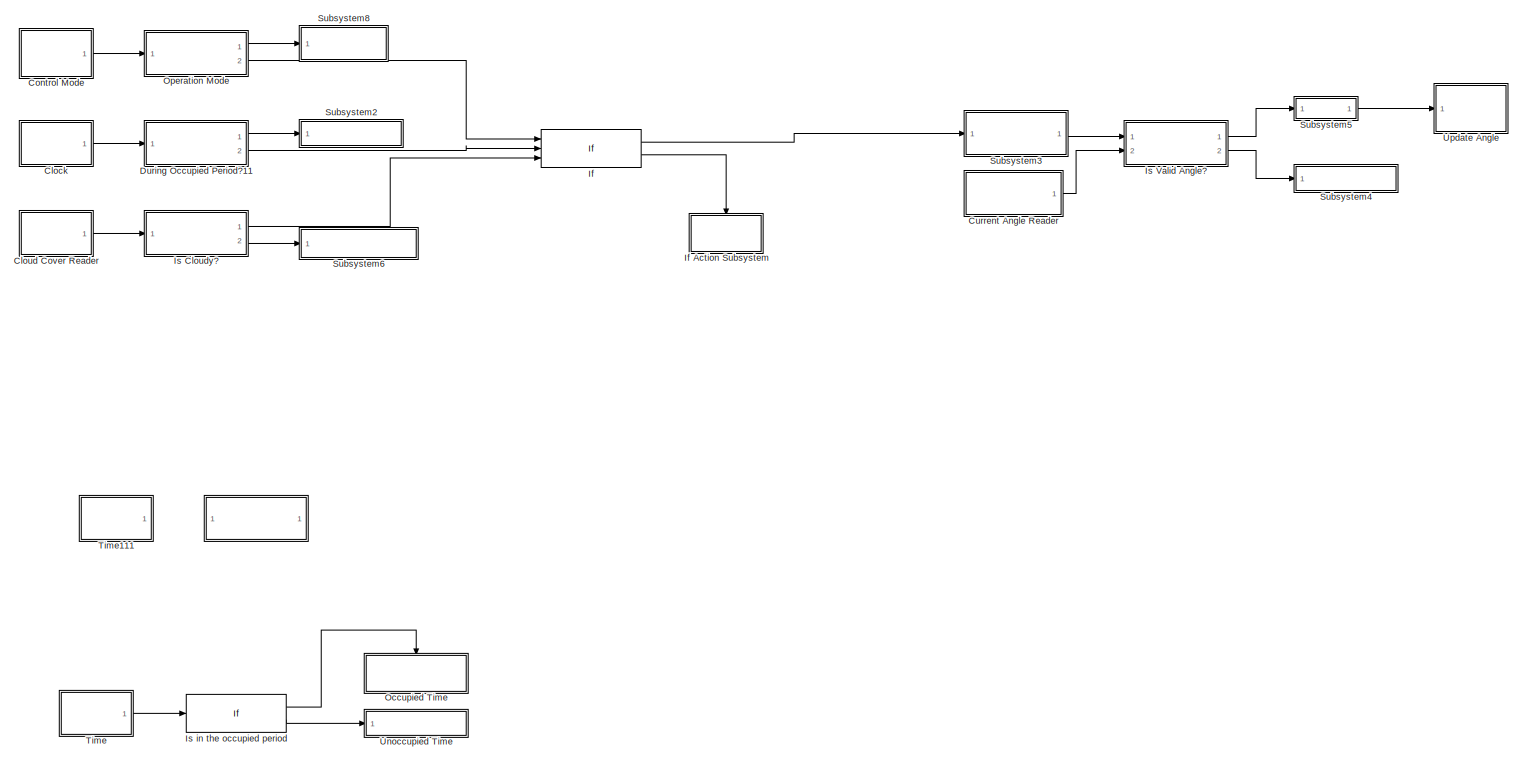
[diagram: root canvas - part 1/1, most of the canvas]
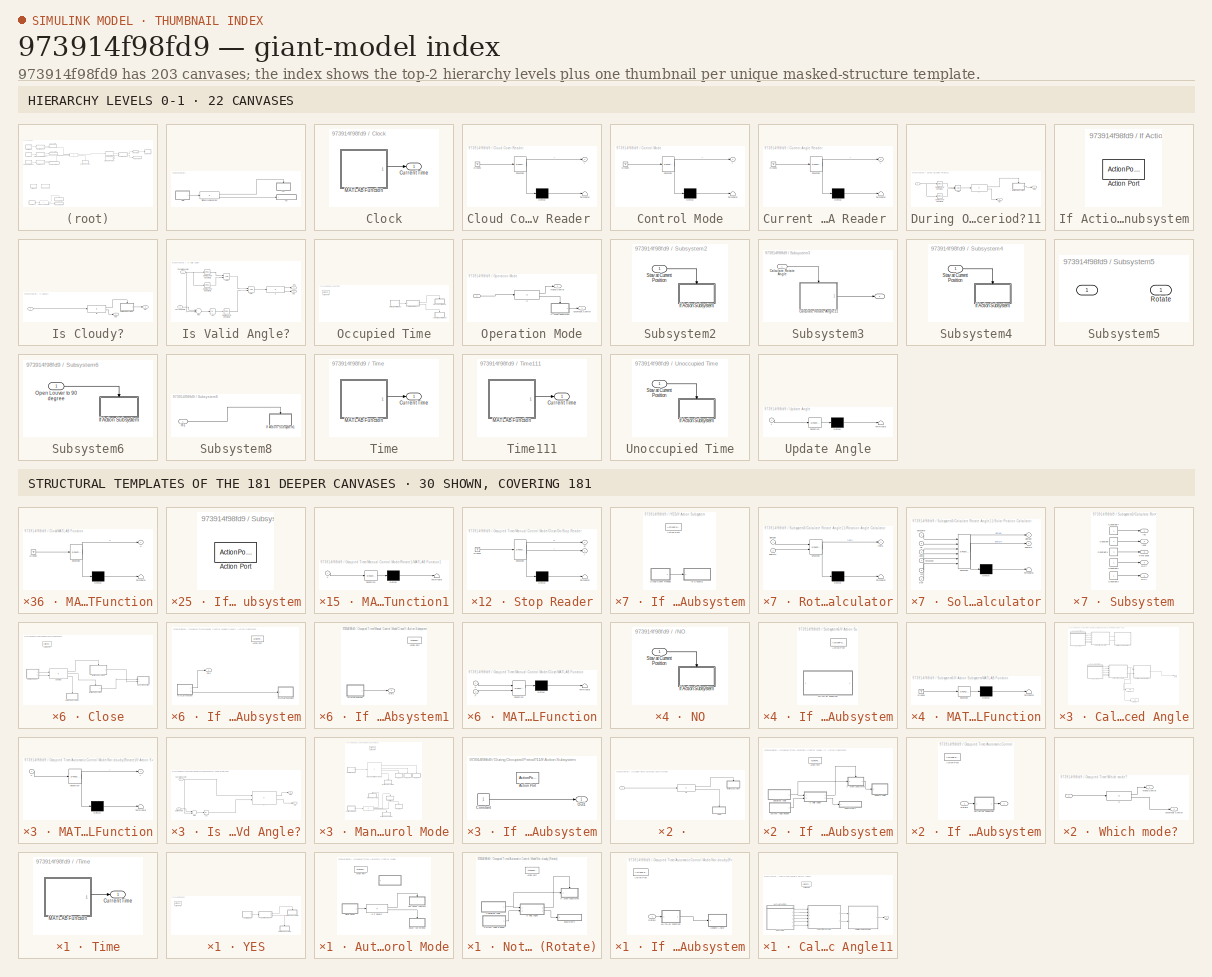
[diagram: thumbnail index - top-2 hierarchy levels (22 canvases) + 30 structural-template representatives of the remaining 181 canvases]
MODEL slx_973914f98fd9
KIND model
CONFIG AbsTol = auto
CONFIG EnableMultiTasking = off
CONFIG FixedStep = 3600
CONFIG MaxStep = auto
CONFIG MinStep = auto
CONFIG RelTol = 1e-3
CONFIG SampleTimeConstraint = Unconstrained
CONFIG Solver = FixedStepAuto
CONFIG SolverName = FixedStepAuto
CONFIG StartTime = 0.0
CONFIG StopTime = inf
BLOCK [SubSystem]  
  Commented = on
  Ports = []
  RequestExecContextInheritance = off
BLOCK [If]  /If in the occupied period
  IfExpression = u1 >=  8 & u1 <= 18
  Ports = [1, 2]
BLOCK [SubSystem]  /NO
  Ports = [1]
  RequestExecContextInheritance = off
BLOCK [SubSystem]  /NO/If Action Subsystem
  Ports = [0, 0, 0, 0, 0, 0, 0, 1]
  RequestExecContextInheritance = off
  TreatAsAtomicUnit = on
BLOCK [ActionPort]  /NO/If Action Subsystem/Action Port
  ActionPortLabel = else
BLOCK [Inport]  /NO/Stay at Current Position
  IconDisplay = Port number
BLOCK [SubSystem]  /Time
  Ports = [0, 1]
  RequestExecContextInheritance = off
BLOCK [Outport]  /Time/Current Time
  IconDisplay = Port number
BLOCK [SubSystem]  /Time/MATLAB Function
  ErrorFcn = Stateflow.Translate.translate
  PermitHierarchicalResolution = ExplicitOnly
  Ports = [0, 1]
  RequestExecContextInheritance = off
  SFBlockType = MATLAB Function
  TreatAsAtomicUnit = on
BLOCK [Demux]  /Time/MATLAB Function/ Demux 
  Outputs = 1
  Ports = [1, 1]
BLOCK [Ground]  /Time/MATLAB Function/ Ground 
BLOCK [S-Function]  /Time/MATLAB Function/ SFunction 
  EnableBusSupport = on
  FunctionName = sf_sfun
  PortCounts = [1 2]
  Ports = [1, 2]
  SFcnIsStateOwnerBlock = off
  SFunctionDeploymentMode = off
  Tag = Stateflow S-Function ControlLogic_pho 55
BLOCK [Terminator]  /Time/MATLAB Function/ Terminator 
BLOCK [Outport]  /Time/MATLAB Function/H
  IconDisplay = Port number
BLOCK [SubSystem]  /YES
  Ports = [0, 0, 0, 0, 0, 0, 0, 1]
  RequestExecContextInheritance = off
  TreatAsAtomicUnit = on
BLOCK [ActionPort]  /YES/Action Port
  ActionPortLabel = if(u1 >=  8 & u1 <= 18)
BLOCK [SubSystem]  /YES/Control Mode
  ErrorFcn = Stateflow.Translate.translate
  PermitHierarchicalResolution = ExplicitOnly
  Ports = [0, 1]
  RequestExecContextInheritance = off
  SFBlockType = MATLAB Function
  TreatAsAtomicUnit = on
BLOCK [Demux]  /YES/Control Mode/ Demux 
  Outputs = 1
  Ports = [1, 1]
BLOCK [Ground]  /YES/Control Mode/ Ground 
BLOCK [S-Function]  /YES/Control Mode/ SFunction 
  EnableBusSupport = on
  FunctionName = sf_sfun
  PortCounts = [1 2]
  Ports = [1, 2]
  SFcnIsStateOwnerBlock = off
  SFunctionDeploymentMode = off
  Tag = Stateflow S-Function ControlLogic_pho 12
BLOCK [Terminator]  /YES/Control Mode/ Terminator 
BLOCK [Outport]  /YES/Control Mode/y
  IconDisplay = Port number
BLOCK [SubSystem]  /YES/If Action Subsystem
  Ports = [0, 0, 0, 0, 0, 0, 0, 1]
  RequestExecContextInheritance = off
  TreatAsAtomicUnit = on
BLOCK [ActionPort]  /YES/If Action Subsystem/Action Port
  ActionPortLabel = else
BLOCK [SubSystem]  /YES/If Action Subsystem/Cloud Cover Reader 
  ErrorFcn = Stateflow.Translate.translate
  PermitHierarchicalResolution = ExplicitOnly
  Ports = [0, 1]
  RequestExecContextInheritance = off
  SFBlockType = MATLAB Function
  TreatAsAtomicUnit = on
BLOCK [Demux]  /YES/If Action Subsystem/Cloud Cover Reader / Demux 
  Outputs = 1
  Ports = [1, 1]
BLOCK [Ground]  /YES/If Action Subsystem/Cloud Cover Reader / Ground 
BLOCK [S-Function]  /YES/If Action Subsystem/Cloud Cover Reader / SFunction 
  EnableBusSupport = on
  FunctionName = sf_sfun
  PortCounts = [1 2]
  Ports = [1, 2]
  SFcnIsStateOwnerBlock = off
  SFunctionDeploymentMode = off
  Tag = Stateflow S-Function ControlLogic_pho 27
BLOCK [Terminator]  /YES/If Action Subsystem/Cloud Cover Reader / Terminator 
BLOCK [Outport]  /YES/If Action Subsystem/Cloud Cover Reader /y
  IconDisplay = Port number
BLOCK [SubSystem]  /YES/If Action Subsystem/Is Cloudy?1
  Ports = [1]
  RequestExecContextInheritance = off
BLOCK [Inport]  /YES/If Action Subsystem/Is Cloudy?1/ 
  IconDisplay = Port number
BLOCK [SubSystem]  /YES/If Action Subsystem/Is Cloudy?1/If Action Subsystem
  Ports = [0, 0, 0, 0, 0, 0, 0, 1]
  RequestExecContextInheritance = off
  TreatAsAtomicUnit = on
BLOCK [ActionPort]  /YES/If Action Subsystem/Is Cloudy?1/If Action Subsystem/Action Port
  ActionPortLabel = if(u1 <80)
BLOCK [SubSystem]  /YES/If Action Subsystem/Is Cloudy?1/If Action Subsystem/Calculated Angle
  Ports = [0, 1]
  RequestExecContextInheritance = off
BLOCK [Display]  /YES/If Action Subsystem/Is Cloudy?1/If Action Subsystem/Calculated Angle/Display1
  Decimation = 1
  Ports = [1]
BLOCK [Display]  /YES/If Action Subsystem/Is Cloudy?1/If Action Subsystem/Calculated Angle/Display2
  Decimation = 1
  Format = long
  Ports = [1]
BLOCK [SubSystem]  /YES/If Action Subsystem/Is Cloudy?1/If Action Subsystem/Calculated Angle/MATLAB Function1
  ErrorFcn = Stateflow.Translate.translate
  PermitHierarchicalResolution = ExplicitOnly
  Ports = [0, 1]
  RequestExecContextInheritance = off
  SFBlockType = MATLAB Function
  TreatAsAtomicUnit = on
BLOCK [Demux]  /YES/If Action Subsystem/Is Cloudy?1/If Action Subsystem/Calculated Angle/MATLAB Function1/ Demux 
  Outputs = 1
  Ports = [1, 1]
BLOCK [Ground]  /YES/If Action Subsystem/Is Cloudy?1/If Action Subsystem/Calculated Angle/MATLAB Function1/ Ground 
BLOCK [S-Function]  /YES/If Action Subsystem/Is Cloudy?1/If Action Subsystem/Calculated Angle/MATLAB Function1/ SFunction 
  EnableBusSupport = on
  FunctionName = sf_sfun
  PortCounts = [1 2]
  Ports = [1, 2]
  SFcnIsStateOwnerBlock = off
  SFunctionDeploymentMode = off
  Tag = Stateflow S-Function ControlLogic_pho 49
BLOCK [Terminator]  /YES/If Action Subsystem/Is Cloudy?1/If Action Subsystem/Calculated Angle/MATLAB Function1/ Terminator 
BLOCK [Outport]  /YES/If Action Subsystem/Is Cloudy?1/If Action Subsystem/Calculated Angle/MATLAB Function1/t
  IconDisplay = Port number
BLOCK [SubSystem]  /YES/If Action Subsystem/Is Cloudy?1/If Action Subsystem/Calculated Angle/MATLAB Function2
  Commented = on
  ErrorFcn = Stateflow.Translate.translate
  PermitHierarchicalResolution = ExplicitOnly
  Ports = [0, 1]
  RequestExecContextInheritance = off
  SFBlockType = MATLAB Function
  TreatAsAtomicUnit = on
BLOCK [Demux]  /YES/If Action Subsystem/Is Cloudy?1/If Action Subsystem/Calculated Angle/MATLAB Function2/ Demux 
  Outputs = 1
  Ports = [1, 1]
BLOCK [Ground]  /YES/If Action Subsystem/Is Cloudy?1/If Action Subsystem/Calculated Angle/MATLAB Function2/ Ground 
BLOCK [S-Function]  /YES/If Action Subsystem/Is Cloudy?1/If Action Subsystem/Calculated Angle/MATLAB Function2/ SFunction 
  EnableBusSupport = on
  FunctionName = sf_sfun
  PortCounts = [1 2]
  Ports = [1, 2]
  SFcnIsStateOwnerBlock = off
  SFunctionDeploymentMode = off
  Tag = Stateflow S-Function ControlLogic_pho 48
BLOCK [Terminator]  /YES/If Action Subsystem/Is Cloudy?1/If Action Subsystem/Calculated Angle/MATLAB Function2/ Terminator 
BLOCK [Outport]  /YES/If Action Subsystem/Is Cloudy?1/If Action Subsystem/Calculated Angle/MATLAB Function2/t
  IconDisplay = Port number
BLOCK [Outport]  /YES/If Action Subsystem/Is Cloudy?1/If Action Subsystem/Calculated Angle/Out1
  IconDisplay = Port number
BLOCK [SubSystem]  /YES/If Action Subsystem/Is Cloudy?1/If Action Subsystem/Calculated Angle/Rotation Angle Calculator
  Commented = on
  ErrorFcn = Stateflow.Translate.translate
  PermitHierarchicalResolution = ExplicitOnly
  Ports = [2, 1]
  RequestExecContextInheritance = off
  SFBlockType = MATLAB Function
  TreatAsAtomicUnit = on
BLOCK [Demux]  /YES/If Action Subsystem/Is Cloudy?1/If Action Subsystem/Calculated Angle/Rotation Angle Calculator/ Demux 
  Outputs = 1
  Ports = [1, 1]
BLOCK [S-Function]  /YES/If Action Subsystem/Is Cloudy?1/If Action Subsystem/Calculated Angle/Rotation Angle Calculator/ SFunction 
  EnableBusSupport = on
  FunctionName = sf_sfun
  PortCounts = [2 2]
  Ports = [2, 2]
  SFcnIsStateOwnerBlock = off
  SFunctionDeploymentMode = off
  Tag = Stateflow S-Function ControlLogic_pho 52
BLOCK [Terminator]  /YES/If Action Subsystem/Is Cloudy?1/If Action Subsystem/Calculated Angle/Rotation Angle Calculator/ Terminator 
BLOCK [Inport]  /YES/If Action Subsystem/Is Cloudy?1/If Action Subsystem/Calculated Angle/Rotation Angle Calculator/azimuth
  IconDisplay = Port number
  Port = 2
BLOCK [Outport]  /YES/If Action Subsystem/Is Cloudy?1/If Action Subsystem/Calculated Angle/Rotation Angle Calculator/theta
  IconDisplay = Port number
BLOCK [Inport]  /YES/If Action Subsystem/Is Cloudy?1/If Action Subsystem/Calculated Angle/Rotation Angle Calculator/zenith
  IconDisplay = Port number
BLOCK [SubSystem]  /YES/If Action Subsystem/Is Cloudy?1/If Action Subsystem/Calculated Angle/Rotation Angle Calculator1
  ErrorFcn = Stateflow.Translate.translate
  PermitHierarchicalResolution = ExplicitOnly
  Ports = [2, 1]
  RequestExecContextInheritance = off
  SFBlockType = MATLAB Function
  TreatAsAtomicUnit = on
BLOCK [Demux]  /YES/If Action Subsystem/Is Cloudy?1/If Action Subsystem/Calculated Angle/Rotation Angle Calculator1/ Demux 
  Outputs = 1
  Ports = [1, 1]
BLOCK [S-Function]  /YES/If Action Subsystem/Is Cloudy?1/If Action Subsystem/Calculated Angle/Rotation Angle Calculator1/ SFunction 
  EnableBusSupport = on
  FunctionName = sf_sfun
  PortCounts = [2 2]
  Ports = [2, 2]
  SFcnIsStateOwnerBlock = off
  SFunctionDeploymentMode = off
  Tag = Stateflow S-Function ControlLogic_pho 53
BLOCK [Terminator]  /YES/If Action Subsystem/Is Cloudy?1/If Action Subsystem/Calculated Angle/Rotation Angle Calculator1/ Terminator 
BLOCK [Inport]  /YES/If Action Subsystem/Is Cloudy?1/If Action Subsystem/Calculated Angle/Rotation Angle Calculator1/azimuth
  IconDisplay = Port number
  Port = 2
BLOCK [Outport]  /YES/If Action Subsystem/Is Cloudy?1/If Action Subsystem/Calculated Angle/Rotation Angle Calculator1/theta
  IconDisplay = Port number
BLOCK [Inport]  /YES/If Action Subsystem/Is Cloudy?1/If Action Subsystem/Calculated Angle/Rotation Angle Calculator1/zenith
  IconDisplay = Port number
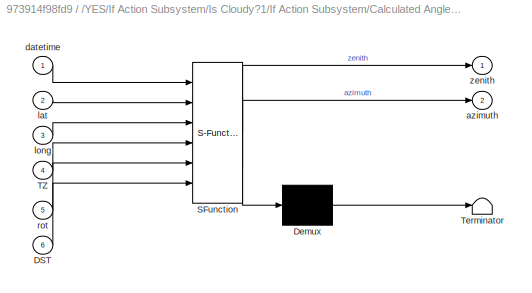
BLOCK [SubSystem]  /YES/If Action Subsystem/Is Cloudy?1/If Action Subsystem/Calculated Angle/Solar Position Calculator1
  ErrorFcn = Stateflow.Translate.translate
  PermitHierarchicalResolution = ExplicitOnly
  Ports = [6, 2]
  RequestExecContextInheritance = off
  SFBlockType = MATLAB Function
  TreatAsAtomicUnit = on
BLOCK [Demux]  /YES/If Action Subsystem/Is Cloudy?1/If Action Subsystem/Calculated Angle/Solar Position Calculator1/ Demux 
  Outputs = 1
  Ports = [1, 1]
BLOCK [S-Function]  /YES/If Action Subsystem/Is Cloudy?1/If Action Subsystem/Calculated Angle/Solar Position Calculator1/ SFunction 
  EnableBusSupport = on
  FunctionName = sf_sfun
  PortCounts = [6 3]
  Ports = [6, 3]
  SFcnIsStateOwnerBlock = off
  SFunctionDeploymentMode = off
  Tag = Stateflow S-Function ControlLogic_pho 54
BLOCK [Terminator]  /YES/If Action Subsystem/Is Cloudy?1/If Action Subsystem/Calculated Angle/Solar Position Calculator1/ Terminator 
BLOCK [Inport]  /YES/If Action Subsystem/Is Cloudy?1/If Action Subsystem/Calculated Angle/Solar Position Calculator1/DST
  IconDisplay = Port number
  Port = 6
BLOCK [Inport]  /YES/If Action Subsystem/Is Cloudy?1/If Action Subsystem/Calculated Angle/Solar Position Calculator1/TZ
  IconDisplay = Port number
  Port = 4
BLOCK [Outport]  /YES/If Action Subsystem/Is Cloudy?1/If Action Subsystem/Calculated Angle/Solar Position Calculator1/azimuth
  IconDisplay = Port number
  Port = 2
BLOCK [Inport]  /YES/If Action Subsystem/Is Cloudy?1/If Action Subsystem/Calculated Angle/Solar Position Calculator1/datetime
  IconDisplay = Port number
BLOCK [Inport]  /YES/If Action Subsystem/Is Cloudy?1/If Action Subsystem/Calculated Angle/Solar Position Calculator1/lat
  IconDisplay = Port number
  Port = 2
BLOCK [Inport]  /YES/If Action Subsystem/Is Cloudy?1/If Action Subsystem/Calculated Angle/Solar Position Calculator1/long
  IconDisplay = Port number
  Port = 3
BLOCK [Inport]  /YES/If Action Subsystem/Is Cloudy?1/If Action Subsystem/Calculated Angle/Solar Position Calculator1/rot
  IconDisplay = Port number
  Port = 5
BLOCK [Outport]  /YES/If Action Subsystem/Is Cloudy?1/If Action Subsystem/Calculated Angle/Solar Position Calculator1/zenith
  IconDisplay = Port number
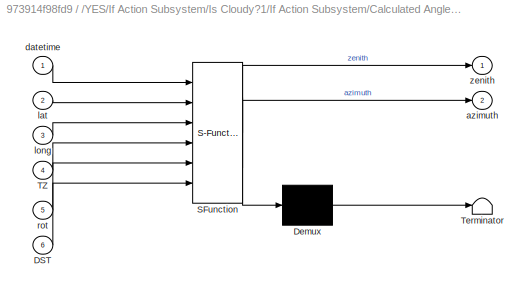
BLOCK [SubSystem]  /YES/If Action Subsystem/Is Cloudy?1/If Action Subsystem/Calculated Angle/Solar Position Calculator2
  Commented = on
  ErrorFcn = Stateflow.Translate.translate
  PermitHierarchicalResolution = ExplicitOnly
  Ports = [6, 2]
  RequestExecContextInheritance = off
  SFBlockType = MATLAB Function
  TreatAsAtomicUnit = on
BLOCK [Demux]  /YES/If Action Subsystem/Is Cloudy?1/If Action Subsystem/Calculated Angle/Solar Position Calculator2/ Demux 
  Outputs = 1
  Ports = [1, 1]
BLOCK [S-Function]  /YES/If Action Subsystem/Is Cloudy?1/If Action Subsystem/Calculated Angle/Solar Position Calculator2/ SFunction 
  EnableBusSupport = on
  FunctionName = sf_sfun
  PortCounts = [6 3]
  Ports = [6, 3]
  SFcnIsStateOwnerBlock = off
  SFunctionDeploymentMode = off
  Tag = Stateflow S-Function ControlLogic_pho 50
BLOCK [Terminator]  /YES/If Action Subsystem/Is Cloudy?1/If Action Subsystem/Calculated Angle/Solar Position Calculator2/ Terminator 
BLOCK [Inport]  /YES/If Action Subsystem/Is Cloudy?1/If Action Subsystem/Calculated Angle/Solar Position Calculator2/DST
  IconDisplay = Port number
  Port = 6
BLOCK [Inport]  /YES/If Action Subsystem/Is Cloudy?1/If Action Subsystem/Calculated Angle/Solar Position Calculator2/TZ
  IconDisplay = Port number
  Port = 4
BLOCK [Outport]  /YES/If Action Subsystem/Is Cloudy?1/If Action Subsystem/Calculated Angle/Solar Position Calculator2/azimuth
  IconDisplay = Port number
  Port = 2
BLOCK [Inport]  /YES/If Action Subsystem/Is Cloudy?1/If Action Subsystem/Calculated Angle/Solar Position Calculator2/datetime
  IconDisplay = Port number
BLOCK [Inport]  /YES/If Action Subsystem/Is Cloudy?1/If Action Subsystem/Calculated Angle/Solar Position Calculator2/lat
  IconDisplay = Port number
  Port = 2
BLOCK [Inport]  /YES/If Action Subsystem/Is Cloudy?1/If Action Subsystem/Calculated Angle/Solar Position Calculator2/long
  IconDisplay = Port number
  Port = 3
BLOCK [Inport]  /YES/If Action Subsystem/Is Cloudy?1/If Action Subsystem/Calculated Angle/Solar Position Calculator2/rot
  IconDisplay = Port number
  Port = 5
BLOCK [Outport]  /YES/If Action Subsystem/Is Cloudy?1/If Action Subsystem/Calculated Angle/Solar Position Calculator2/zenith
  IconDisplay = Port number
BLOCK [SubSystem]  /YES/If Action Subsystem/Is Cloudy?1/If Action Subsystem/Calculated Angle/Subsystem1
  Commented = on
  Ports = [0, 5]
  RequestExecContextInheritance = off
BLOCK [Constant]  /YES/If Action Subsystem/Is Cloudy?1/If Action Subsystem/Calculated Angle/Subsystem1/Constant
  Value = -79.9439
BLOCK [Constant]  /YES/If Action Subsystem/Is Cloudy?1/If Action Subsystem/Calculated Angle/Subsystem1/Constant1
  Value = -4
BLOCK [Constant]  /YES/If Action Subsystem/Is Cloudy?1/If Action Subsystem/Calculated Angle/Subsystem1/Constant2
  Value = 0
BLOCK [Constant]  /YES/If Action Subsystem/Is Cloudy?1/If Action Subsystem/Calculated Angle/Subsystem1/Constant3
BLOCK [Constant]  /YES/If Action Subsystem/Is Cloudy?1/If Action Subsystem/Calculated Angle/Subsystem1/Constant4
  Value = 40.4428
BLOCK [Outport]  /YES/If Action Subsystem/Is Cloudy?1/If Action Subsystem/Calculated Angle/Subsystem1/DST
  IconDisplay = Port number
  Port = 5
BLOCK [Outport]  /YES/If Action Subsystem/Is Cloudy?1/If Action Subsystem/Calculated Angle/Subsystem1/ROT
  IconDisplay = Port number
  Port = 4
BLOCK [Outport]  /YES/If Action Subsystem/Is Cloudy?1/If Action Subsystem/Calculated Angle/Subsystem1/lat
  IconDisplay = Port number
BLOCK [Outport]  /YES/If Action Subsystem/Is Cloudy?1/If Action Subsystem/Calculated Angle/Subsystem1/long
  IconDisplay = Port number
  Port = 2
BLOCK [Outport]  /YES/If Action Subsystem/Is Cloudy?1/If Action Subsystem/Calculated Angle/Subsystem1/time zone
  IconDisplay = Port number
  Port = 3
BLOCK [SubSystem]  /YES/If Action Subsystem/Is Cloudy?1/If Action Subsystem/Calculated Angle/Subsystem2
  Ports = [0, 5]
  RequestExecContextInheritance = off
BLOCK [Constant]  /YES/If Action Subsystem/Is Cloudy?1/If Action Subsystem/Calculated Angle/Subsystem2/Constant
  Value = -79.9439
BLOCK [Constant]  /YES/If Action Subsystem/Is Cloudy?1/If Action Subsystem/Calculated Angle/Subsystem2/Constant1
  Value = -4
BLOCK [Constant]  /YES/If Action Subsystem/Is Cloudy?1/If Action Subsystem/Calculated Angle/Subsystem2/Constant2
  Value = 0
BLOCK [Constant]  /YES/If Action Subsystem/Is Cloudy?1/If Action Subsystem/Calculated Angle/Subsystem2/Constant3
BLOCK [Constant]  /YES/If Action Subsystem/Is Cloudy?1/If Action Subsystem/Calculated Angle/Subsystem2/Constant4
  Value = 40.4428
BLOCK [Outport]  /YES/If Action Subsystem/Is Cloudy?1/If Action Subsystem/Calculated Angle/Subsystem2/DST
  IconDisplay = Port number
  Port = 5
BLOCK [Outport]  /YES/If Action Subsystem/Is Cloudy?1/If Action Subsystem/Calculated Angle/Subsystem2/ROT
  IconDisplay = Port number
  Port = 4
BLOCK [Outport]  /YES/If Action Subsystem/Is Cloudy?1/If Action Subsystem/Calculated Angle/Subsystem2/lat
  IconDisplay = Port number
BLOCK [Outport]  /YES/If Action Subsystem/Is Cloudy?1/If Action Subsystem/Calculated Angle/Subsystem2/long
  IconDisplay = Port number
  Port = 2
BLOCK [Outport]  /YES/If Action Subsystem/Is Cloudy?1/If Action Subsystem/Calculated Angle/Subsystem2/time zone
  IconDisplay = Port number
  Port = 3
BLOCK [SubSystem]  /YES/If Action Subsystem/Is Cloudy?1/If Action Subsystem/Current Angle Reader 
  ErrorFcn = Stateflow.Translate.translate
  PermitHierarchicalResolution = ExplicitOnly
  Ports = [0, 1]
  RequestExecContextInheritance = off
  SFBlockType = MATLAB Function
  TreatAsAtomicUnit = on
BLOCK [Demux]  /YES/If Action Subsystem/Is Cloudy?1/If Action Subsystem/Current Angle Reader / Demux 
  Outputs = 1
  Ports = [1, 1]
BLOCK [Ground]  /YES/If Action Subsystem/Is Cloudy?1/If Action Subsystem/Current Angle Reader / Ground 
BLOCK [S-Function]  /YES/If Action Subsystem/Is Cloudy?1/If Action Subsystem/Current Angle Reader / SFunction 
  EnableBusSupport = on
  FunctionName = sf_sfun
  PortCounts = [1 2]
  Ports = [1, 2]
  SFcnIsStateOwnerBlock = off
  SFunctionDeploymentMode = off
  Tag = Stateflow S-Function ControlLogic_pho 47
BLOCK [Terminator]  /YES/If Action Subsystem/Is Cloudy?1/If Action Subsystem/Current Angle Reader / Terminator 
BLOCK [Outport]  /YES/If Action Subsystem/Is Cloudy?1/If Action Subsystem/Current Angle Reader /y
  IconDisplay = Port number
BLOCK [SubSystem]  /YES/If Action Subsystem/Is Cloudy?1/If Action Subsystem/If Action Subsystem
  Ports = [1, 1, 0, 0, 0, 0, 0, 1]
  RequestExecContextInheritance = off
  TreatAsAtomicUnit = on
BLOCK [Outport]  /YES/If Action Subsystem/Is Cloudy?1/If Action Subsystem/If Action Subsystem/  
  IconDisplay = Port number
BLOCK [ActionPort]  /YES/If Action Subsystem/Is Cloudy?1/If Action Subsystem/If Action Subsystem/Action Port
  ActionPortLabel = if(u1 < 90 & u1 > 0 & u2 >= 10)
BLOCK [SubSystem]  /YES/If Action Subsystem/Is Cloudy?1/If Action Subsystem/If Action Subsystem/MATLAB Function
  ErrorFcn = Stateflow.Translate.translate
  PermitHierarchicalResolution = ExplicitOnly
  Ports = [1, 1]
  RequestExecContextInheritance = off
  SFBlockType = MATLAB Function
  TreatAsAtomicUnit = on
BLOCK [Demux]  /YES/If Action Subsystem/Is Cloudy?1/If Action Subsystem/If Action Subsystem/MATLAB Function/ Demux 
  Outputs = 1
  Ports = [1, 1]
BLOCK [S-Function]  /YES/If Action Subsystem/Is Cloudy?1/If Action Subsystem/If Action Subsystem/MATLAB Function/ SFunction 
  EnableBusSupport = on
  FunctionName = sf_sfun
  PortCounts = [1 2]
  Ports = [1, 2]
  SFcnIsStateOwnerBlock = off
  SFunctionDeploymentMode = off
  Tag = Stateflow S-Function ControlLogic_pho 14
BLOCK [Terminator]  /YES/If Action Subsystem/Is Cloudy?1/If Action Subsystem/If Action Subsystem/MATLAB Function/ Terminator 
BLOCK [Inport]  /YES/If Action Subsystem/Is Cloudy?1/If Action Subsystem/If Action Subsystem/MATLAB Function/u
  IconDisplay = Port number
BLOCK [Outport]  /YES/If Action Subsystem/Is Cloudy?1/If Action Subsystem/If Action Subsystem/MATLAB Function/y
  IconDisplay = Port number
BLOCK [Inport]  /YES/If Action Subsystem/Is Cloudy?1/If Action Subsystem/If Action Subsystem/Rotate
  IconDisplay = Port number
BLOCK [SubSystem]  /YES/If Action Subsystem/Is Cloudy?1/If Action Subsystem/Is Valid Angle?
  Ports = [2, 2]
  RequestExecContextInheritance = off
BLOCK [Abs]  /YES/If Action Subsystem/Is Cloudy?1/If Action Subsystem/Is Valid Angle?/Abs
  SaturateOnIntegerOverflow = off
BLOCK [Inport]  /YES/If Action Subsystem/Is Cloudy?1/If Action Subsystem/Is Valid Angle?/Caculated Angle
  IconDisplay = Port number
BLOCK [Inport]  /YES/If Action Subsystem/Is Cloudy?1/If Action Subsystem/Is Valid Angle?/Current Angle
  IconDisplay = Port number
  Port = 2
BLOCK [If]  /YES/If Action Subsystem/Is Cloudy?1/If Action Subsystem/Is Valid Angle?/If
  IfExpression = u1 < 90 & u1 > 0 & u2 >= 10
  NumInputs = 2
  Ports = [2, 2]
BLOCK [Outport]  /YES/If Action Subsystem/Is Cloudy?1/If Action Subsystem/Is Valid Angle?/NO 
  IconDisplay = Port number
  Port = 2
BLOCK [Sum]  /YES/If Action Subsystem/Is Cloudy?1/If Action Subsystem/Is Valid Angle?/Plus
  InputSameDT = off
  Inputs = +-
  OutDataTypeStr = Inherit: Inherit via internal rule
  Ports = [2, 1]
  SaturateOnIntegerOverflow = off
BLOCK [Outport]  /YES/If Action Subsystem/Is Cloudy?1/If Action Subsystem/Is Valid Angle?/YES
  IconDisplay = Port number
BLOCK [SubSystem]  /YES/If Action Subsystem/Is Cloudy?1/If Action Subsystem/Subsystem4
  Ports = [1]
  RequestExecContextInheritance = off
BLOCK [SubSystem]  /YES/If Action Subsystem/Is Cloudy?1/If Action Subsystem/Subsystem4/If Action Subsystem
  Ports = [0, 0, 0, 0, 0, 0, 0, 1]
  RequestExecContextInheritance = off
  TreatAsAtomicUnit = on
BLOCK [ActionPort]  /YES/If Action Subsystem/Is Cloudy?1/If Action Subsystem/Subsystem4/If Action Subsystem/Action Port
  ActionPortLabel = else
BLOCK [Inport]  /YES/If Action Subsystem/Is Cloudy?1/If Action Subsystem/Subsystem4/Stay at Current Position
  IconDisplay = Port number
BLOCK [SubSystem]  /YES/If Action Subsystem/Is Cloudy?1/If Action Subsystem/Update Angle
  ErrorFcn = Stateflow.Translate.translate
  PermitHierarchicalResolution = ExplicitOnly
  Ports = [1]
  RequestExecContextInheritance = off
  SFBlockType = MATLAB Function
  TreatAsAtomicUnit = on
BLOCK [Demux]  /YES/If Action Subsystem/Is Cloudy?1/If Action Subsystem/Update Angle/ Demux 
  Outputs = 1
  Ports = [1, 1]
BLOCK [S-Function]  /YES/If Action Subsystem/Is Cloudy?1/If Action Subsystem/Update Angle/ SFunction 
  EnableBusSupport = on
  FunctionName = sf_sfun
  PortCounts = [1 1]
  Ports = [1, 1]
  SFcnIsStateOwnerBlock = off
  SFunctionDeploymentMode = off
  Tag = Stateflow S-Function ControlLogic_pho 51
BLOCK [Terminator]  /YES/If Action Subsystem/Is Cloudy?1/If Action Subsystem/Update Angle/ Terminator 
BLOCK [Inport]  /YES/If Action Subsystem/Is Cloudy?1/If Action Subsystem/Update Angle/x
  IconDisplay = Port number
BLOCK [If]  /YES/If Action Subsystem/Is Cloudy?1/If1
  IfExpression = u1 <80
  Ports = [1, 2]
BLOCK [SubSystem]  /YES/If Action Subsystem/Is Cloudy?1/To 90
  Ports = [0, 0, 0, 0, 0, 0, 0, 1]
  RequestExecContextInheritance = off
  TreatAsAtomicUnit = on
BLOCK [ActionPort]  /YES/If Action Subsystem/Is Cloudy?1/To 90/Action Port
  ActionPortLabel = else
BLOCK [SubSystem]  /YES/If Action Subsystem/Is Cloudy?1/To 90/MATLAB Function
  ErrorFcn = Stateflow.Translate.translate
  PermitHierarchicalResolution = ExplicitOnly
  Ports = []
  RequestExecContextInheritance = off
  SFBlockType = MATLAB Function
  TreatAsAtomicUnit = on
BLOCK [Demux]  /YES/If Action Subsystem/Is Cloudy?1/To 90/MATLAB Function/ Demux 
  Outputs = 1
  Ports = [1, 1]
BLOCK [Ground]  /YES/If Action Subsystem/Is Cloudy?1/To 90/MATLAB Function/ Ground 
BLOCK [S-Function]  /YES/If Action Subsystem/Is Cloudy?1/To 90/MATLAB Function/ SFunction 
  EnableBusSupport = on
  FunctionName = sf_sfun
  PortCounts = [1 1]
  Ports = [1, 1]
  SFcnIsStateOwnerBlock = off
  SFunctionDeploymentMode = off
  Tag = Stateflow S-Function ControlLogic_pho 28
BLOCK [Terminator]  /YES/If Action Subsystem/Is Cloudy?1/To 90/MATLAB Function/ Terminator 
BLOCK [SubSystem]  /YES/If Action Subsystem1
  Ports = [0, 0, 0, 0, 0, 0, 0, 1]
  RequestExecContextInheritance = off
  TreatAsAtomicUnit = on
BLOCK [ActionPort]  /YES/If Action Subsystem1/Action Port
  ActionPortLabel = if(u1 > 0)
BLOCK [SubSystem]  /YES/If Action Subsystem1/Close
  Ports = [0, 0, 0, 0, 0, 0, 0, 1]
  RequestExecContextInheritance = off
  TreatAsAtomicUnit = on
BLOCK [ActionPort]  /YES/If Action Subsystem1/Close/Action Port
  ActionPortLabel = elseif( u1 == 2)
BLOCK [If]  /YES/If Action Subsystem1/Close/Do or Stop
  ElseIfExpressions = u1 ==1 & u2 == 0
  IfExpression = u1 == 0 & u2 == 1
  NumInputs = 2
  Ports = [2, 3]
BLOCK [SubSystem]  /YES/If Action Subsystem1/Close/Do//Stop Reader
  ErrorFcn = Stateflow.Translate.translate
  PermitHierarchicalResolution = ExplicitOnly
  Ports = [0, 2]
  RequestExecContextInheritance = off
  SFBlockType = MATLAB Function
  TreatAsAtomicUnit = on
BLOCK [Demux]  /YES/If Action Subsystem1/Close/Do//Stop Reader/ Demux 
  Outputs = 1
  Ports = [1, 1]
BLOCK [Ground]  /YES/If Action Subsystem1/Close/Do//Stop Reader/ Ground 
BLOCK [S-Function]  /YES/If Action Subsystem1/Close/Do//Stop Reader/ SFunction 
  EnableBusSupport = on
  FunctionName = sf_sfun
  PortCounts = [1 3]
  Ports = [1, 3]
  SFcnIsStateOwnerBlock = off
  SFunctionDeploymentMode = off
  Tag = Stateflow S-Function ControlLogic_pho 16
BLOCK [Terminator]  /YES/If Action Subsystem1/Close/Do//Stop Reader/ Terminator 
BLOCK [Outport]  /YES/If Action Subsystem1/Close/Do//Stop Reader/st
  IconDisplay = Port number
BLOCK [Outport]  /YES/If Action Subsystem1/Close/Do//Stop Reader/y
  IconDisplay = Port number
  Port = 2
BLOCK [SubSystem]  /YES/If Action Subsystem1/Close/If Action Subsystem
  Ports = [0, 1, 0, 0, 0, 0, 0, 1]
  RequestExecContextInheritance = off
  TreatAsAtomicUnit = on
BLOCK [ActionPort]  /YES/If Action Subsystem1/Close/If Action Subsystem/Action Port
  ActionPortLabel = elseif(u1 ==1 & u2 == 0)
BLOCK [SubSystem]  /YES/If Action Subsystem1/Close/If Action Subsystem/MATLAB Function
  ErrorFcn = Stateflow.Translate.translate
  PermitHierarchicalResolution = ExplicitOnly
  Ports = [0, 2]
  RequestExecContextInheritance = off
  SFBlockType = MATLAB Function
  TreatAsAtomicUnit = on
BLOCK [Demux]  /YES/If Action Subsystem1/Close/If Action Subsystem/MATLAB Function/ Demux 
  Outputs = 1
  Ports = [1, 1]
BLOCK [Ground]  /YES/If Action Subsystem1/Close/If Action Subsystem/MATLAB Function/ Ground 
BLOCK [S-Function]  /YES/If Action Subsystem1/Close/If Action Subsystem/MATLAB Function/ SFunction 
  EnableBusSupport = on
  FunctionName = sf_sfun
  PortCounts = [1 3]
  Ports = [1, 3]
  SFcnIsStateOwnerBlock = off
  SFunctionDeploymentMode = off
  Tag = Stateflow S-Function ControlLogic_pho 17
BLOCK [Terminator]  /YES/If Action Subsystem1/Close/If Action Subsystem/MATLAB Function/ Terminator 
BLOCK [Outport]  /YES/If Action Subsystem1/Close/If Action Subsystem/MATLAB Function/x
  IconDisplay = Port number
BLOCK [Outport]  /YES/If Action Subsystem1/Close/If Action Subsystem/MATLAB Function/y
  IconDisplay = Port number
  Port = 2
BLOCK [SubSystem]  /YES/If Action Subsystem1/Close/If Action Subsystem/MATLAB Function1
  ErrorFcn = Stateflow.Translate.translate
  PermitHierarchicalResolution = ExplicitOnly
  Ports = [1]
  RequestExecContextInheritance = off
  SFBlockType = MATLAB Function
  TreatAsAtomicUnit = on
BLOCK [Demux]  /YES/If Action Subsystem1/Close/If Action Subsystem/MATLAB Function1/ Demux 
  Outputs = 1
  Ports = [1, 1]
BLOCK [S-Function]  /YES/If Action Subsystem1/Close/If Action Subsystem/MATLAB Function1/ SFunction 
  EnableBusSupport = on
  FunctionName = sf_sfun
  PortCounts = [1 1]
  Ports = [1, 1]
  SFcnIsStateOwnerBlock = off
  SFunctionDeploymentMode = off
  Tag = Stateflow S-Function ControlLogic_pho 18
BLOCK [Terminator]  /YES/If Action Subsystem1/Close/If Action Subsystem/MATLAB Function1/ Terminator 
BLOCK [Inport]  /YES/If Action Subsystem1/Close/If Action Subsystem/MATLAB Function1/u
  IconDisplay = Port number
BLOCK [Outport]  /YES/If Action Subsystem1/Close/If Action Subsystem/Out1
  IconDisplay = Port number
BLOCK [SubSystem]  /YES/If Action Subsystem1/Close/If Action Subsystem1
  Ports = [0, 1, 0, 0, 0, 0, 0, 1]
  RequestExecContextInheritance = off
  TreatAsAtomicUnit = on
BLOCK [ActionPort]  /YES/If Action Subsystem1/Close/If Action Subsystem1/Action Port
  ActionPortLabel = if(u1 == 0 & u2 == 1)
BLOCK [SubSystem]  /YES/If Action Subsystem1/Close/If Action Subsystem1/MATLAB Function
  ErrorFcn = Stateflow.Translate.translate
  PermitHierarchicalResolution = ExplicitOnly
  Ports = [0, 1]
  RequestExecContextInheritance = off
  SFBlockType = MATLAB Function
  TreatAsAtomicUnit = on
BLOCK [Demux]  /YES/If Action Subsystem1/Close/If Action Subsystem1/MATLAB Function/ Demux 
  Outputs = 1
  Ports = [1, 1]
BLOCK [Ground]  /YES/If Action Subsystem1/Close/If Action Subsystem1/MATLAB Function/ Ground 
BLOCK [S-Function]  /YES/If Action Subsystem1/Close/If Action Subsystem1/MATLAB Function/ SFunction 
  EnableBusSupport = on
  FunctionName = sf_sfun
  PortCounts = [1 2]
  Ports = [1, 2]
  SFcnIsStateOwnerBlock = off
  SFunctionDeploymentMode = off
  Tag = Stateflow S-Function ControlLogic_pho 19
BLOCK [Terminator]  /YES/If Action Subsystem1/Close/If Action Subsystem1/MATLAB Function/ Terminator 
BLOCK [Outport]  /YES/If Action Subsystem1/Close/If Action Subsystem1/MATLAB Function/y
  IconDisplay = Port number
BLOCK [Outport]  /YES/If Action Subsystem1/Close/If Action Subsystem1/Out1
  IconDisplay = Port number
BLOCK [SubSystem]  /YES/If Action Subsystem1/Close/If Action Subsystem2
  Ports = [0, 0, 0, 0, 0, 0, 0, 1]
  RequestExecContextInheritance = off
  TreatAsAtomicUnit = on
BLOCK [ActionPort]  /YES/If Action Subsystem1/Close/If Action Subsystem2/Action Port
  ActionPortLabel = else
BLOCK [SubSystem]  /YES/If Action Subsystem1/Close/MATLAB Function
  ErrorFcn = Stateflow.Translate.translate
  PermitHierarchicalResolution = ExplicitOnly
  Ports = [2]
  RequestExecContextInheritance = off
  SFBlockType = MATLAB Function
  TreatAsAtomicUnit = on
BLOCK [Demux]  /YES/If Action Subsystem1/Close/MATLAB Function/ Demux 
  Outputs = 1
  Ports = [1, 1]
BLOCK [S-Function]  /YES/If Action Subsystem1/Close/MATLAB Function/ SFunction 
  EnableBusSupport = on
  FunctionName = sf_sfun
  PortCounts = [2 1]
  Ports = [2, 1]
  SFcnIsStateOwnerBlock = off
  SFunctionDeploymentMode = off
  Tag = Stateflow S-Function ControlLogic_pho 20
BLOCK [Terminator]  /YES/If Action Subsystem1/Close/MATLAB Function/ Terminator 
BLOCK [Inport]  /YES/If Action Subsystem1/Close/MATLAB Function/u
  IconDisplay = Port number
BLOCK [Inport]  /YES/If Action Subsystem1/Close/MATLAB Function/v
  IconDisplay = Port number
  Port = 2
BLOCK [SubSystem]  /YES/If Action Subsystem1/Default//Open//Close
  ErrorFcn = Stateflow.Translate.translate
  PermitHierarchicalResolution = ExplicitOnly
  Ports = [0, 1]
  RequestExecContextInheritance = off
  SFBlockType = MATLAB Function
  TreatAsAtomicUnit = on
BLOCK [Demux]  /YES/If Action Subsystem1/Default//Open//Close/ Demux 
  Outputs = 1
  Ports = [1, 1]
BLOCK [Ground]  /YES/If Action Subsystem1/Default//Open//Close/ Ground 
BLOCK [S-Function]  /YES/If Action Subsystem1/Default//Open//Close/ SFunction 
  EnableBusSupport = on
  FunctionName = sf_sfun
  PortCounts = [1 2]
  Ports = [1, 2]
  SFcnIsStateOwnerBlock = off
  SFunctionDeploymentMode = off
  Tag = Stateflow S-Function ControlLogic_pho 21
BLOCK [Terminator]  /YES/If Action Subsystem1/Default//Open//Close/ Terminator 
BLOCK [Outport]  /YES/If Action Subsystem1/Default//Open//Close/y
  IconDisplay = Port number
BLOCK [If]  /YES/If Action Subsystem1/If
  Commented = on
  ElseIfExpressions = u1 == 1, u1 == 2
  IfExpression = u1 == 0
  Ports = [1, 4]
BLOCK [SubSystem]  /YES/If Action Subsystem1/If Action Subsystem
  Commented = on
  Ports = [0, 0, 0, 0, 0, 0, 0, 1]
  RequestExecContextInheritance = off
  TreatAsAtomicUnit = on
BLOCK [ActionPort]  /YES/If Action Subsystem1/If Action Subsystem/Action Port
BLOCK [SubSystem]  /YES/If Action Subsystem1/If Action Subsystem1
  Commented = on
  Ports = [0, 0, 0, 0, 0, 0, 0, 1]
  RequestExecContextInheritance = off
  TreatAsAtomicUnit = on
BLOCK [ActionPort]  /YES/If Action Subsystem1/If Action Subsystem1/Action Port
BLOCK [SubSystem]  /YES/If Action Subsystem1/If Action Subsystem2
  Ports = [0, 0, 0, 0, 0, 0, 0, 1]
  RequestExecContextInheritance = off
  TreatAsAtomicUnit = on
BLOCK [ActionPort]  /YES/If Action Subsystem1/If Action Subsystem2/Action Port
  ActionPortLabel = if(u1 == 0)
BLOCK [SubSystem]  /YES/If Action Subsystem1/If Action Subsystem3
  Ports = [0, 0, 0, 0, 0, 0, 0, 1]
  RequestExecContextInheritance = off
  TreatAsAtomicUnit = on
BLOCK [ActionPort]  /YES/If Action Subsystem1/If Action Subsystem3/Action Port
  ActionPortLabel = else
BLOCK [If]  /YES/If Action Subsystem1/If1
  ElseIfExpressions = u1 == 1, u1 == 2
  IfExpression = u1 == 0
  Ports = [1, 4]
BLOCK [SubSystem]  /YES/If Action Subsystem1/Open
  Ports = [0, 0, 0, 0, 0, 0, 0, 1]
  RequestExecContextInheritance = off
  TreatAsAtomicUnit = on
BLOCK [ActionPort]  /YES/If Action Subsystem1/Open/Action Port
  ActionPortLabel = elseif(u1 == 1)
BLOCK [If]  /YES/If Action Subsystem1/Open/Do or Stop1
  ElseIfExpressions = u1 ==1 & u2 == 0
  IfExpression = u1 == 0 & u2 == 1
  NumInputs = 2
  Ports = [2, 3]
BLOCK [SubSystem]  /YES/If Action Subsystem1/Open/Do//Stop Reader1
  ErrorFcn = Stateflow.Translate.translate
  PermitHierarchicalResolution = ExplicitOnly
  Ports = [0, 2]
  RequestExecContextInheritance = off
  SFBlockType = MATLAB Function
  TreatAsAtomicUnit = on
BLOCK [Demux]  /YES/If Action Subsystem1/Open/Do//Stop Reader1/ Demux 
  Outputs = 1
  Ports = [1, 1]
BLOCK [Ground]  /YES/If Action Subsystem1/Open/Do//Stop Reader1/ Ground 
BLOCK [S-Function]  /YES/If Action Subsystem1/Open/Do//Stop Reader1/ SFunction 
  EnableBusSupport = on
  FunctionName = sf_sfun
  PortCounts = [1 3]
  Ports = [1, 3]
  SFcnIsStateOwnerBlock = off
  SFunctionDeploymentMode = off
  Tag = Stateflow S-Function ControlLogic_pho 22
BLOCK [Terminator]  /YES/If Action Subsystem1/Open/Do//Stop Reader1/ Terminator 
BLOCK [Outport]  /YES/If Action Subsystem1/Open/Do//Stop Reader1/st
  IconDisplay = Port number
BLOCK [Outport]  /YES/If Action Subsystem1/Open/Do//Stop Reader1/y
  IconDisplay = Port number
  Port = 2
BLOCK [SubSystem]  /YES/If Action Subsystem1/Open/If Action Subsystem
  Ports = [0, 1, 0, 0, 0, 0, 0, 1]
  RequestExecContextInheritance = off
  TreatAsAtomicUnit = on
BLOCK [ActionPort]  /YES/If Action Subsystem1/Open/If Action Subsystem/Action Port
  ActionPortLabel = elseif(u1 ==1 & u2 == 0)
BLOCK [SubSystem]  /YES/If Action Subsystem1/Open/If Action Subsystem/MATLAB Function
  ErrorFcn = Stateflow.Translate.translate
  PermitHierarchicalResolution = ExplicitOnly
  Ports = [0, 2]
  RequestExecContextInheritance = off
  SFBlockType = MATLAB Function
  TreatAsAtomicUnit = on
BLOCK [Demux]  /YES/If Action Subsystem1/Open/If Action Subsystem/MATLAB Function/ Demux 
  Outputs = 1
  Ports = [1, 1]
BLOCK [Ground]  /YES/If Action Subsystem1/Open/If Action Subsystem/MATLAB Function/ Ground 
BLOCK [S-Function]  /YES/If Action Subsystem1/Open/If Action Subsystem/MATLAB Function/ SFunction 
  EnableBusSupport = on
  FunctionName = sf_sfun
  PortCounts = [1 3]
  Ports = [1, 3]
  SFcnIsStateOwnerBlock = off
  SFunctionDeploymentMode = off
  Tag = Stateflow S-Function ControlLogic_pho 23
BLOCK [Terminator]  /YES/If Action Subsystem1/Open/If Action Subsystem/MATLAB Function/ Terminator 
BLOCK [Outport]  /YES/If Action Subsystem1/Open/If Action Subsystem/MATLAB Function/x
  IconDisplay = Port number
BLOCK [Outport]  /YES/If Action Subsystem1/Open/If Action Subsystem/MATLAB Function/y
  IconDisplay = Port number
  Port = 2
BLOCK [SubSystem]  /YES/If Action Subsystem1/Open/If Action Subsystem/MATLAB Function1
  ErrorFcn = Stateflow.Translate.translate
  PermitHierarchicalResolution = ExplicitOnly
  Ports = [1]
  RequestExecContextInheritance = off
  SFBlockType = MATLAB Function
  TreatAsAtomicUnit = on
BLOCK [Demux]  /YES/If Action Subsystem1/Open/If Action Subsystem/MATLAB Function1/ Demux 
  Outputs = 1
  Ports = [1, 1]
BLOCK [S-Function]  /YES/If Action Subsystem1/Open/If Action Subsystem/MATLAB Function1/ SFunction 
  EnableBusSupport = on
  FunctionName = sf_sfun
  PortCounts = [1 1]
  Ports = [1, 1]
  SFcnIsStateOwnerBlock = off
  SFunctionDeploymentMode = off
  Tag = Stateflow S-Function ControlLogic_pho 25
BLOCK [Terminator]  /YES/If Action Subsystem1/Open/If Action Subsystem/MATLAB Function1/ Terminator 
BLOCK [Inport]  /YES/If Action Subsystem1/Open/If Action Subsystem/MATLAB Function1/u
  IconDisplay = Port number
BLOCK [Outport]  /YES/If Action Subsystem1/Open/If Action Subsystem/Out1
  IconDisplay = Port number
BLOCK [SubSystem]  /YES/If Action Subsystem1/Open/If Action Subsystem1
  Ports = [0, 1, 0, 0, 0, 0, 0, 1]
  RequestExecContextInheritance = off
  TreatAsAtomicUnit = on
BLOCK [ActionPort]  /YES/If Action Subsystem1/Open/If Action Subsystem1/Action Port
  ActionPortLabel = if(u1 == 0 & u2 == 1)
BLOCK [SubSystem]  /YES/If Action Subsystem1/Open/If Action Subsystem1/MATLAB Function
  ErrorFcn = Stateflow.Translate.translate
  PermitHierarchicalResolution = ExplicitOnly
  Ports = [0, 1]
  RequestExecContextInheritance = off
  SFBlockType = MATLAB Function
  TreatAsAtomicUnit = on
BLOCK [Demux]  /YES/If Action Subsystem1/Open/If Action Subsystem1/MATLAB Function/ Demux 
  Outputs = 1
  Ports = [1, 1]
BLOCK [Ground]  /YES/If Action Subsystem1/Open/If Action Subsystem1/MATLAB Function/ Ground 
BLOCK [S-Function]  /YES/If Action Subsystem1/Open/If Action Subsystem1/MATLAB Function/ SFunction 
  EnableBusSupport = on
  FunctionName = sf_sfun
  PortCounts = [1 2]
  Ports = [1, 2]
  SFcnIsStateOwnerBlock = off
  SFunctionDeploymentMode = off
  Tag = Stateflow S-Function ControlLogic_pho 26
BLOCK [Terminator]  /YES/If Action Subsystem1/Open/If Action Subsystem1/MATLAB Function/ Terminator 
BLOCK [Outport]  /YES/If Action Subsystem1/Open/If Action Subsystem1/MATLAB Function/y
  IconDisplay = Port number
BLOCK [Outport]  /YES/If Action Subsystem1/Open/If Action Subsystem1/Out1
  IconDisplay = Port number
BLOCK [SubSystem]  /YES/If Action Subsystem1/Open/If Action Subsystem2
  Ports = [0, 0, 0, 0, 0, 0, 0, 1]
  RequestExecContextInheritance = off
  TreatAsAtomicUnit = on
BLOCK [ActionPort]  /YES/If Action Subsystem1/Open/If Action Subsystem2/Action Port
  ActionPortLabel = else
BLOCK [SubSystem]  /YES/If Action Subsystem1/Open/MATLAB Function
  ErrorFcn = Stateflow.Translate.translate
  PermitHierarchicalResolution = ExplicitOnly
  Ports = [2]
  RequestExecContextInheritance = off
  SFBlockType = MATLAB Function
  TreatAsAtomicUnit = on
BLOCK [Demux]  /YES/If Action Subsystem1/Open/MATLAB Function/ Demux 
  Outputs = 1
  Ports = [1, 1]
BLOCK [S-Function]  /YES/If Action Subsystem1/Open/MATLAB Function/ SFunction 
  EnableBusSupport = on
  FunctionName = sf_sfun
  PortCounts = [2 1]
  Ports = [2, 1]
  SFcnIsStateOwnerBlock = off
  SFunctionDeploymentMode = off
  Tag = Stateflow S-Function ControlLogic_pho 29
BLOCK [Terminator]  /YES/If Action Subsystem1/Open/MATLAB Function/ Terminator 
BLOCK [Inport]  /YES/If Action Subsystem1/Open/MATLAB Function/u
  IconDisplay = Port number
BLOCK [Inport]  /YES/If Action Subsystem1/Open/MATLAB Function/v
  IconDisplay = Port number
  Port = 2
BLOCK [SubSystem]  /YES/If Action Subsystem1/Rotate1
  Commented = on
  Ports = [0, 0, 0, 0, 0, 0, 0, 1]
  RequestExecContextInheritance = off
  TreatAsAtomicUnit = on
BLOCK [ActionPort]  /YES/If Action Subsystem1/Rotate1/Action Port
BLOCK [SubSystem]  /YES/If Action Subsystem1/Rotate1/MATLAB Function
  ErrorFcn = Stateflow.Translate.translate
  PermitHierarchicalResolution = ExplicitOnly
  Ports = [0, 1]
  RequestExecContextInheritance = off
  SFBlockType = MATLAB Function
  TreatAsAtomicUnit = on
BLOCK [Demux]  /YES/If Action Subsystem1/Rotate1/MATLAB Function/ Demux 
  Outputs = 1
  Ports = [1, 1]
BLOCK [Ground]  /YES/If Action Subsystem1/Rotate1/MATLAB Function/ Ground 
BLOCK [S-Function]  /YES/If Action Subsystem1/Rotate1/MATLAB Function/ SFunction 
  EnableBusSupport = on
  FunctionName = sf_sfun
  PortCounts = [1 2]
  Ports = [1, 2]
  SFcnIsStateOwnerBlock = off
  SFunctionDeploymentMode = off
  Tag = Stateflow S-Function ControlLogic_pho 42
BLOCK [Terminator]  /YES/If Action Subsystem1/Rotate1/MATLAB Function/ Terminator 
BLOCK [Outport]  /YES/If Action Subsystem1/Rotate1/MATLAB Function/y
  IconDisplay = Port number
BLOCK [SubSystem]  /YES/If Action Subsystem1/Rotate1/MATLAB Function1
  ErrorFcn = Stateflow.Translate.translate
  PermitHierarchicalResolution = ExplicitOnly
  Ports = [1]
  RequestExecContextInheritance = off
  SFBlockType = MATLAB Function
  TreatAsAtomicUnit = on
BLOCK [Demux]  /YES/If Action Subsystem1/Rotate1/MATLAB Function1/ Demux 
  Outputs = 1
  Ports = [1, 1]
BLOCK [S-Function]  /YES/If Action Subsystem1/Rotate1/MATLAB Function1/ SFunction 
  EnableBusSupport = on
  FunctionName = sf_sfun
  PortCounts = [1 1]
  Ports = [1, 1]
  SFcnIsStateOwnerBlock = off
  SFunctionDeploymentMode = off
  Tag = Stateflow S-Function ControlLogic_pho 43
BLOCK [Terminator]  /YES/If Action Subsystem1/Rotate1/MATLAB Function1/ Terminator 
BLOCK [Inport]  /YES/If Action Subsystem1/Rotate1/MATLAB Function1/u
  IconDisplay = Port number
BLOCK [SubSystem]  /YES/If Action Subsystem1/Rotate2
  Commented = on
  Ports = [0, 0, 0, 0, 0, 0, 0, 1]
  RequestExecContextInheritance = off
  TreatAsAtomicUnit = on
BLOCK [ActionPort]  /YES/If Action Subsystem1/Rotate2/Action Port
BLOCK [SubSystem]  /YES/If Action Subsystem1/Rotate2/MATLAB Function
  ErrorFcn = Stateflow.Translate.translate
  PermitHierarchicalResolution = ExplicitOnly
  Ports = [0, 1]
  RequestExecContextInheritance = off
  SFBlockType = MATLAB Function
  TreatAsAtomicUnit = on
BLOCK [Demux]  /YES/If Action Subsystem1/Rotate2/MATLAB Function/ Demux 
  Outputs = 1
  Ports = [1, 1]
BLOCK [Ground]  /YES/If Action Subsystem1/Rotate2/MATLAB Function/ Ground 
BLOCK [S-Function]  /YES/If Action Subsystem1/Rotate2/MATLAB Function/ SFunction 
  EnableBusSupport = on
  FunctionName = sf_sfun
  PortCounts = [1 2]
  Ports = [1, 2]
  SFcnIsStateOwnerBlock = off
  SFunctionDeploymentMode = off
  Tag = Stateflow S-Function ControlLogic_pho 44
BLOCK [Terminator]  /YES/If Action Subsystem1/Rotate2/MATLAB Function/ Terminator 
BLOCK [Outport]  /YES/If Action Subsystem1/Rotate2/MATLAB Function/y
  IconDisplay = Port number
BLOCK [SubSystem]  /YES/If Action Subsystem1/Rotate2/MATLAB Function1
  ErrorFcn = Stateflow.Translate.translate
  PermitHierarchicalResolution = ExplicitOnly
  Ports = [1]
  RequestExecContextInheritance = off
  SFBlockType = MATLAB Function
  TreatAsAtomicUnit = on
BLOCK [Demux]  /YES/If Action Subsystem1/Rotate2/MATLAB Function1/ Demux 
  Outputs = 1
  Ports = [1, 1]
BLOCK [S-Function]  /YES/If Action Subsystem1/Rotate2/MATLAB Function1/ SFunction 
  EnableBusSupport = on
  FunctionName = sf_sfun
  PortCounts = [1 1]
  Ports = [1, 1]
  SFcnIsStateOwnerBlock = off
  SFunctionDeploymentMode = off
  Tag = Stateflow S-Function ControlLogic_pho 45
BLOCK [Terminator]  /YES/If Action Subsystem1/Rotate2/MATLAB Function1/ Terminator 
BLOCK [Inport]  /YES/If Action Subsystem1/Rotate2/MATLAB Function1/u
  IconDisplay = Port number
BLOCK [SubSystem]  /YES/If Action Subsystem1/User Input Reader
  Commented = on
  ErrorFcn = Stateflow.Translate.translate
  PermitHierarchicalResolution = ExplicitOnly
  Ports = [0, 1]
  RequestExecContextInheritance = off
  SFBlockType = MATLAB Function
  TreatAsAtomicUnit = on
BLOCK [Demux]  /YES/If Action Subsystem1/User Input Reader/ Demux 
  Outputs = 1
  Ports = [1, 1]
BLOCK [Ground]  /YES/If Action Subsystem1/User Input Reader/ Ground 
BLOCK [S-Function]  /YES/If Action Subsystem1/User Input Reader/ SFunction 
  EnableBusSupport = on
  FunctionName = sf_sfun
  PortCounts = [1 2]
  Ports = [1, 2]
  SFcnIsStateOwnerBlock = off
  SFunctionDeploymentMode = off
  Tag = Stateflow S-Function ControlLogic_pho 46
BLOCK [Terminator]  /YES/If Action Subsystem1/User Input Reader/ Terminator 
BLOCK [Outport]  /YES/If Action Subsystem1/User Input Reader/y
  IconDisplay = Port number
BLOCK [SubSystem]  /YES/Operation Mode
  Ports = [1, 2]
  RequestExecContextInheritance = off
BLOCK [Inport]  /YES/Operation Mode/ 
  IconDisplay = Port number
BLOCK [Outport]  /YES/Operation Mode/Automatic Control
  IconDisplay = Port number
  Port = 2
BLOCK [If]  /YES/Operation Mode/If
  Ports = [1, 2]
BLOCK [Outport]  /YES/Operation Mode/Manul Control 
  IconDisplay = Port number
BLOCK [SubSystem] Clock
  Commented = on
  Ports = [0, 1]
  RequestExecContextInheritance = off
BLOCK [Outport] Clock/Current Time
  IconDisplay = Port number
BLOCK [SubSystem] Clock/MATLAB Function
  ErrorFcn = Stateflow.Translate.translate
  PermitHierarchicalResolution = ExplicitOnly
  Ports = [0, 1]
  RequestExecContextInheritance = off
  SFBlockType = MATLAB Function
  TreatAsAtomicUnit = on
BLOCK [Demux] Clock/MATLAB Function/ Demux 
  Outputs = 1
  Ports = [1, 1]
BLOCK [Ground] Clock/MATLAB Function/ Ground 
BLOCK [S-Function] Clock/MATLAB Function/ SFunction 
  EnableBusSupport = on
  FunctionName = sf_sfun
  PortCounts = [1 2]
  Ports = [1, 2]
  SFcnIsStateOwnerBlock = off
  SFunctionDeploymentMode = off
  Tag = Stateflow S-Function ControlLogic_pho 9
BLOCK [Terminator] Clock/MATLAB Function/ Terminator 
BLOCK [Outport] Clock/MATLAB Function/H
  IconDisplay = Port number
BLOCK [SubSystem] Cloud Cover Reader 
  Commented = on
  ErrorFcn = Stateflow.Translate.translate
  PermitHierarchicalResolution = ExplicitOnly
  Ports = [0, 1]
  RequestExecContextInheritance = off
  SFBlockType = MATLAB Function
  TreatAsAtomicUnit = on
BLOCK [Demux] Cloud Cover Reader / Demux 
  Outputs = 1
  Ports = [1, 1]
BLOCK [Ground] Cloud Cover Reader / Ground 
BLOCK [S-Function] Cloud Cover Reader / SFunction 
  EnableBusSupport = on
  FunctionName = sf_sfun
  PortCounts = [1 2]
  Ports = [1, 2]
  SFcnIsStateOwnerBlock = off
  SFunctionDeploymentMode = off
  Tag = Stateflow S-Function ControlLogic_pho 3
BLOCK [Terminator] Cloud Cover Reader / Terminator 
BLOCK [Outport] Cloud Cover Reader /y
  IconDisplay = Port number
BLOCK [SubSystem] Control Mode
  Commented = on
  ErrorFcn = Stateflow.Translate.translate
  PermitHierarchicalResolution = ExplicitOnly
  Ports = [0, 1]
  RequestExecContextInheritance = off
  SFBlockType = MATLAB Function
  TreatAsAtomicUnit = on
BLOCK [Demux] Control Mode/ Demux 
  Outputs = 1
  Ports = [1, 1]
BLOCK [Ground] Control Mode/ Ground 
BLOCK [S-Function] Control Mode/ SFunction 
  EnableBusSupport = on
  FunctionName = sf_sfun
  PortCounts = [1 2]
  Ports = [1, 2]
  SFcnIsStateOwnerBlock = off
  SFunctionDeploymentMode = off
  Tag = Stateflow S-Function ControlLogic_pho 8
BLOCK [Terminator] Control Mode/ Terminator 
BLOCK [Outport] Control Mode/y
  IconDisplay = Port number
BLOCK [SubSystem] Current Angle Reader 
  Commented = on
  ErrorFcn = Stateflow.Translate.translate
  PermitHierarchicalResolution = ExplicitOnly
  Ports = [0, 1]
  RequestExecContextInheritance = off
  SFBlockType = MATLAB Function
  TreatAsAtomicUnit = on
BLOCK [Demux] Current Angle Reader / Demux 
  Outputs = 1
  Ports = [1, 1]
BLOCK [Ground] Current Angle Reader / Ground 
BLOCK [S-Function] Current Angle Reader / SFunction 
  EnableBusSupport = on
  FunctionName = sf_sfun
  PortCounts = [1 2]
  Ports = [1, 2]
  SFcnIsStateOwnerBlock = off
  SFunctionDeploymentMode = off
  Tag = Stateflow S-Function ControlLogic_pho 4
BLOCK [Terminator] Current Angle Reader / Terminator 
BLOCK [Outport] Current Angle Reader /y
  IconDisplay = Port number
BLOCK [SubSystem] During Occupied Period?11
  Commented = on
  Ports = [1, 2]
  RequestExecContextInheritance = off
BLOCK [Inport] During Occupied Period?11/ 
  IconDisplay = Port number
BLOCK [Logic] During Occupied Period?11/AND
  AllPortsSameDT = off
  IconShape = distinctive
  OutDataTypeStr = boolean
  Ports = [2, 1]
BLOCK [Reference] During Occupied Period?11/Compare To Constant  REF=simulink/Logic and Bit
Operations/Compare
To Constant
  Ports = [1, 1]
  SourceBlock = simulink/Logic and Bit\nOperations/Compare\nTo Constant
  SourceProductBaseCode = SL
  SourceProductName = Simulink
  SourceType = Compare To Constant
BLOCK [Reference] During Occupied Period?11/Compare To Constant1  REF=simulink/Logic and Bit
Operations/Compare
To Constant
  Ports = [1, 1]
  SourceBlock = simulink/Logic and Bit\nOperations/Compare\nTo Constant
  SourceProductBaseCode = SL
  SourceProductName = Simulink
  SourceType = Compare To Constant
BLOCK [If] During Occupied Period?11/If
  Ports = [1, 2]
BLOCK [SubSystem] During Occupied Period?11/If Action Subsystem
  Ports = [0, 1, 0, 0, 0, 0, 0, 1]
  RequestExecContextInheritance = off
  TreatAsAtomicUnit = on
BLOCK [ActionPort] During Occupied Period?11/If Action Subsystem/Action Port
  ActionPortLabel = if(u1 > 0)
BLOCK [Constant] During Occupied Period?11/If Action Subsystem/Constant
BLOCK [Outport] During Occupied Period?11/If Action Subsystem/Out1
  IconDisplay = Port number
BLOCK [Outport] During Occupied Period?11/NO 
  IconDisplay = Port number
BLOCK [Outport] During Occupied Period?11/YES 
  IconDisplay = Port number
  Port = 2
BLOCK [If] If
  Commented = on
  IfExpression = u1 == 1&u2==1&u3==1
  NumInputs = 3
  Ports = [3, 2]
BLOCK [SubSystem] If Action Subsystem
  Commented = on
  Ports = [0, 0, 0, 0, 0, 0, 0, 1]
  RequestExecContextInheritance = off
  TreatAsAtomicUnit = on
BLOCK [ActionPort] If Action Subsystem/Action Port
  ActionPortLabel = else
BLOCK [SubSystem] Is Cloudy?
  Commented = on
  Ports = [1, 2]
  RequestExecContextInheritance = off
BLOCK [Inport] Is Cloudy?/ 
  IconDisplay = Port number
BLOCK [SubSystem] Is Cloudy?/If Action Subsystem
  Ports = [0, 1, 0, 0, 0, 0, 0, 1]
  RequestExecContextInheritance = off
  TreatAsAtomicUnit = on
BLOCK [ActionPort] Is Cloudy?/If Action Subsystem/Action Port
  ActionPortLabel = if(u1 <80)
BLOCK [Constant] Is Cloudy?/If Action Subsystem/Constant
BLOCK [Outport] Is Cloudy?/If Action Subsystem/Out1
  IconDisplay = Port number
BLOCK [If] Is Cloudy?/If1
  IfExpression = u1 <80
  Ports = [1, 2]
BLOCK [Outport] Is Cloudy?/NO
  IconDisplay = Port number
  Port = 2
BLOCK [Outport] Is Cloudy?/YES 
  IconDisplay = Port number
BLOCK [SubSystem] Is Valid Angle?
  Commented = on
  Ports = [2, 2]
  RequestExecContextInheritance = off
BLOCK [Logic] Is Valid Angle?/AND
  AllPortsSameDT = off
  IconShape = distinctive
  OutDataTypeStr = boolean
  Ports = [2, 1]
BLOCK [Logic] Is Valid Angle?/AND1
  AllPortsSameDT = off
  IconShape = distinctive
  OutDataTypeStr = boolean
  Ports = [2, 1]
BLOCK [Abs] Is Valid Angle?/Abs
  SaturateOnIntegerOverflow = off
BLOCK [Inport] Is Valid Angle?/Caculated Angle
  IconDisplay = Port number
BLOCK [Reference] Is Valid Angle?/Compare To Constant1  REF=simulink/Logic and Bit
Operations/Compare
To Constant
  Ports = [1, 1]
  SourceBlock = simulink/Logic and Bit\nOperations/Compare\nTo Constant
  SourceProductBaseCode = SL
  SourceProductName = Simulink
  SourceType = Compare To Constant
BLOCK [Reference] Is Valid Angle?/Compare To Constant2  REF=simulink/Logic and Bit
Operations/Compare
To Constant
  Ports = [1, 1]
  SourceBlock = simulink/Logic and Bit\nOperations/Compare\nTo Constant
  SourceProductBaseCode = SL
  SourceProductName = Simulink
  SourceType = Compare To Constant
BLOCK [Reference] Is Valid Angle?/Compare To Constant3  REF=simulink/Logic and Bit
Operations/Compare
To Constant
  Ports = [1, 1]
  SourceBlock = simulink/Logic and Bit\nOperations/Compare\nTo Constant
  SourceProductBaseCode = SL
  SourceProductName = Simulink
  SourceType = Compare To Constant
BLOCK [Inport] Is Valid Angle?/Current Angle
  IconDisplay = Port number
  Port = 2
BLOCK [If] Is Valid Angle?/If
  Ports = [1, 2]
BLOCK [Outport] Is Valid Angle?/NO 
  IconDisplay = Port number
  Port = 2
BLOCK [Sum] Is Valid Angle?/Plus
  InputSameDT = off
  Inputs = +-
  OutDataTypeStr = Inherit: Inherit via internal rule
  Ports = [2, 1]
  SaturateOnIntegerOverflow = off
BLOCK [Outport] Is Valid Angle?/YES
  IconDisplay = Port number
BLOCK [If] Is in the occupied period
  IfExpression = u1 >=  8 & u1 <= 18
  Ports = [1, 2]
BLOCK [SubSystem] Occupied Time
  Ports = [0, 0, 0, 0, 0, 0, 0, 1]
  RequestExecContextInheritance = off
  TreatAsAtomicUnit = on
BLOCK [ActionPort] Occupied Time/Action Port
  ActionPortLabel = if(u1 >=  8 & u1 <= 18)
BLOCK [SubSystem] Occupied Time/Automatic Control Mode
  Ports = [0, 0, 0, 0, 0, 0, 0, 1]
  RequestExecContextInheritance = off
  TreatAsAtomicUnit = on
BLOCK [SubSystem] Occupied Time/Automatic Control Mode/ 
  Commented = on
  Ports = [1]
  RequestExecContextInheritance = off
BLOCK [Inport] Occupied Time/Automatic Control Mode/ / 
  IconDisplay = Port number
BLOCK [SubSystem] Occupied Time/Automatic Control Mode/ /If Action Subsystem
  Ports = [0, 0, 0, 0, 0, 0, 0, 1]
  RequestExecContextInheritance = off
  TreatAsAtomicUnit = on
BLOCK [ActionPort] Occupied Time/Automatic Control Mode/ /If Action Subsystem/Action Port
  ActionPortLabel = if(u1 <80)
BLOCK [SubSystem] Occupied Time/Automatic Control Mode/ /If Action Subsystem/Calculated Angle
  Ports = [0, 1]
  RequestExecContextInheritance = off
BLOCK [Display] Occupied Time/Automatic Control Mode/ /If Action Subsystem/Calculated Angle/Display1
  Decimation = 1
  Ports = [1]
BLOCK [Display] Occupied Time/Automatic Control Mode/ /If Action Subsystem/Calculated Angle/Display2
  Decimation = 1
  Format = long
  Ports = [1]
BLOCK [SubSystem] Occupied Time/Automatic Control Mode/ /If Action Subsystem/Calculated Angle/MATLAB Function1
  ErrorFcn = Stateflow.Translate.translate
  PermitHierarchicalResolution = ExplicitOnly
  Ports = [0, 1]
  RequestExecContextInheritance = off
  SFBlockType = MATLAB Function
  TreatAsAtomicUnit = on
BLOCK [Demux] Occupied Time/Automatic Control Mode/ /If Action Subsystem/Calculated Angle/MATLAB Function1/ Demux 
  Outputs = 1
  Ports = [1, 1]
BLOCK [Ground] Occupied Time/Automatic Control Mode/ /If Action Subsystem/Calculated Angle/MATLAB Function1/ Ground 
BLOCK [S-Function] Occupied Time/Automatic Control Mode/ /If Action Subsystem/Calculated Angle/MATLAB Function1/ SFunction 
  EnableBusSupport = on
  FunctionName = sf_sfun
  PortCounts = [1 2]
  Ports = [1, 2]
  SFcnIsStateOwnerBlock = off
  SFunctionDeploymentMode = off
  Tag = Stateflow S-Function ControlLogic_pho 59
BLOCK [Terminator] Occupied Time/Automatic Control Mode/ /If Action Subsystem/Calculated Angle/MATLAB Function1/ Terminator 
BLOCK [Outport] Occupied Time/Automatic Control Mode/ /If Action Subsystem/Calculated Angle/MATLAB Function1/t
  IconDisplay = Port number
BLOCK [SubSystem] Occupied Time/Automatic Control Mode/ /If Action Subsystem/Calculated Angle/MATLAB Function2
  Commented = on
  ErrorFcn = Stateflow.Translate.translate
  PermitHierarchicalResolution = ExplicitOnly
  Ports = [0, 1]
  RequestExecContextInheritance = off
  SFBlockType = MATLAB Function
  TreatAsAtomicUnit = on
BLOCK [Demux] Occupied Time/Automatic Control Mode/ /If Action Subsystem/Calculated Angle/MATLAB Function2/ Demux 
  Outputs = 1
  Ports = [1, 1]
BLOCK [Ground] Occupied Time/Automatic Control Mode/ /If Action Subsystem/Calculated Angle/MATLAB Function2/ Ground 
BLOCK [S-Function] Occupied Time/Automatic Control Mode/ /If Action Subsystem/Calculated Angle/MATLAB Function2/ SFunction 
  EnableBusSupport = on
  FunctionName = sf_sfun
  PortCounts = [1 2]
  Ports = [1, 2]
  SFcnIsStateOwnerBlock = off
  SFunctionDeploymentMode = off
  Tag = Stateflow S-Function ControlLogic_pho 60
BLOCK [Terminator] Occupied Time/Automatic Control Mode/ /If Action Subsystem/Calculated Angle/MATLAB Function2/ Terminator 
BLOCK [Outport] Occupied Time/Automatic Control Mode/ /If Action Subsystem/Calculated Angle/MATLAB Function2/t
  IconDisplay = Port number
BLOCK [Outport] Occupied Time/Automatic Control Mode/ /If Action Subsystem/Calculated Angle/Out1
  IconDisplay = Port number
BLOCK [SubSystem] Occupied Time/Automatic Control Mode/ /If Action Subsystem/Calculated Angle/Rotation Angle Calculator
  Commented = on
  ErrorFcn = Stateflow.Translate.translate
  PermitHierarchicalResolution = ExplicitOnly
  Ports = [2, 1]
  RequestExecContextInheritance = off
  SFBlockType = MATLAB Function
  TreatAsAtomicUnit = on
BLOCK [Demux] Occupied Time/Automatic Control Mode/ /If Action Subsystem/Calculated Angle/Rotation Angle Calculator/ Demux 
  Outputs = 1
  Ports = [1, 1]
BLOCK [S-Function] Occupied Time/Automatic Control Mode/ /If Action Subsystem/Calculated Angle/Rotation Angle Calculator/ SFunction 
  EnableBusSupport = on
  FunctionName = sf_sfun
  PortCounts = [2 2]
  Ports = [2, 2]
  SFcnIsStateOwnerBlock = off
  SFunctionDeploymentMode = off
  Tag = Stateflow S-Function ControlLogic_pho 61
BLOCK [Terminator] Occupied Time/Automatic Control Mode/ /If Action Subsystem/Calculated Angle/Rotation Angle Calculator/ Terminator 
BLOCK [Inport] Occupied Time/Automatic Control Mode/ /If Action Subsystem/Calculated Angle/Rotation Angle Calculator/azimuth
  IconDisplay = Port number
  Port = 2
BLOCK [Outport] Occupied Time/Automatic Control Mode/ /If Action Subsystem/Calculated Angle/Rotation Angle Calculator/theta
  IconDisplay = Port number
BLOCK [Inport] Occupied Time/Automatic Control Mode/ /If Action Subsystem/Calculated Angle/Rotation Angle Calculator/zenith
  IconDisplay = Port number
BLOCK [SubSystem] Occupied Time/Automatic Control Mode/ /If Action Subsystem/Calculated Angle/Rotation Angle Calculator1
  ErrorFcn = Stateflow.Translate.translate
  PermitHierarchicalResolution = ExplicitOnly
  Ports = [2, 1]
  RequestExecContextInheritance = off
  SFBlockType = MATLAB Function
  TreatAsAtomicUnit = on
BLOCK [Demux] Occupied Time/Automatic Control Mode/ /If Action Subsystem/Calculated Angle/Rotation Angle Calculator1/ Demux 
  Outputs = 1
  Ports = [1, 1]
BLOCK [S-Function] Occupied Time/Automatic Control Mode/ /If Action Subsystem/Calculated Angle/Rotation Angle Calculator1/ SFunction 
  EnableBusSupport = on
  FunctionName = sf_sfun
  PortCounts = [2 2]
  Ports = [2, 2]
  SFcnIsStateOwnerBlock = off
  SFunctionDeploymentMode = off
  Tag = Stateflow S-Function ControlLogic_pho 62
BLOCK [Terminator] Occupied Time/Automatic Control Mode/ /If Action Subsystem/Calculated Angle/Rotation Angle Calculator1/ Terminator 
BLOCK [Inport] Occupied Time/Automatic Control Mode/ /If Action Subsystem/Calculated Angle/Rotation Angle Calculator1/azimuth
  IconDisplay = Port number
  Port = 2
BLOCK [Outport] Occupied Time/Automatic Control Mode/ /If Action Subsystem/Calculated Angle/Rotation Angle Calculator1/theta
  IconDisplay = Port number
BLOCK [Inport] Occupied Time/Automatic Control Mode/ /If Action Subsystem/Calculated Angle/Rotation Angle Calculator1/zenith
  IconDisplay = Port number
BLOCK [SubSystem] Occupied Time/Automatic Control Mode/ /If Action Subsystem/Calculated Angle/Solar Position Calculator1
  ErrorFcn = Stateflow.Translate.translate
  PermitHierarchicalResolution = ExplicitOnly
  Ports = [6, 2]
  RequestExecContextInheritance = off
  SFBlockType = MATLAB Function
  TreatAsAtomicUnit = on
BLOCK [Demux] Occupied Time/Automatic Control Mode/ /If Action Subsystem/Calculated Angle/Solar Position Calculator1/ Demux 
  Outputs = 1
  Ports = [1, 1]
BLOCK [S-Function] Occupied Time/Automatic Control Mode/ /If Action Subsystem/Calculated Angle/Solar Position Calculator1/ SFunction 
  EnableBusSupport = on
  FunctionName = sf_sfun
  PortCounts = [6 3]
  Ports = [6, 3]
  SFcnIsStateOwnerBlock = off
  SFunctionDeploymentMode = off
  Tag = Stateflow S-Function ControlLogic_pho 63
BLOCK [Terminator] Occupied Time/Automatic Control Mode/ /If Action Subsystem/Calculated Angle/Solar Position Calculator1/ Terminator 
BLOCK [Inport] Occupied Time/Automatic Control Mode/ /If Action Subsystem/Calculated Angle/Solar Position Calculator1/DST
  IconDisplay = Port number
  Port = 6
BLOCK [Inport] Occupied Time/Automatic Control Mode/ /If Action Subsystem/Calculated Angle/Solar Position Calculator1/TZ
  IconDisplay = Port number
  Port = 4
BLOCK [Outport] Occupied Time/Automatic Control Mode/ /If Action Subsystem/Calculated Angle/Solar Position Calculator1/azimuth
  IconDisplay = Port number
  Port = 2
BLOCK [Inport] Occupied Time/Automatic Control Mode/ /If Action Subsystem/Calculated Angle/Solar Position Calculator1/datetime
  IconDisplay = Port number
BLOCK [Inport] Occupied Time/Automatic Control Mode/ /If Action Subsystem/Calculated Angle/Solar Position Calculator1/lat
  IconDisplay = Port number
  Port = 2
BLOCK [Inport] Occupied Time/Automatic Control Mode/ /If Action Subsystem/Calculated Angle/Solar Position Calculator1/long
  IconDisplay = Port number
  Port = 3
BLOCK [Inport] Occupied Time/Automatic Control Mode/ /If Action Subsystem/Calculated Angle/Solar Position Calculator1/rot
  IconDisplay = Port number
  Port = 5
BLOCK [Outport] Occupied Time/Automatic Control Mode/ /If Action Subsystem/Calculated Angle/Solar Position Calculator1/zenith
  IconDisplay = Port number
BLOCK [SubSystem] Occupied Time/Automatic Control Mode/ /If Action Subsystem/Calculated Angle/Solar Position Calculator2
  Commented = on
  ErrorFcn = Stateflow.Translate.translate
  PermitHierarchicalResolution = ExplicitOnly
  Ports = [6, 2]
  RequestExecContextInheritance = off
  SFBlockType = MATLAB Function
  TreatAsAtomicUnit = on
BLOCK [Demux] Occupied Time/Automatic Control Mode/ /If Action Subsystem/Calculated Angle/Solar Position Calculator2/ Demux 
  Outputs = 1
  Ports = [1, 1]
BLOCK [S-Function] Occupied Time/Automatic Control Mode/ /If Action Subsystem/Calculated Angle/Solar Position Calculator2/ SFunction 
  EnableBusSupport = on
  FunctionName = sf_sfun
  PortCounts = [6 3]
  Ports = [6, 3]
  SFcnIsStateOwnerBlock = off
  SFunctionDeploymentMode = off
  Tag = Stateflow S-Function ControlLogic_pho 64
BLOCK [Terminator] Occupied Time/Automatic Control Mode/ /If Action Subsystem/Calculated Angle/Solar Position Calculator2/ Terminator 
BLOCK [Inport] Occupied Time/Automatic Control Mode/ /If Action Subsystem/Calculated Angle/Solar Position Calculator2/DST
  IconDisplay = Port number
  Port = 6
BLOCK [Inport] Occupied Time/Automatic Control Mode/ /If Action Subsystem/Calculated Angle/Solar Position Calculator2/TZ
  IconDisplay = Port number
  Port = 4
BLOCK [Outport] Occupied Time/Automatic Control Mode/ /If Action Subsystem/Calculated Angle/Solar Position Calculator2/azimuth
  IconDisplay = Port number
  Port = 2
BLOCK [Inport] Occupied Time/Automatic Control Mode/ /If Action Subsystem/Calculated Angle/Solar Position Calculator2/datetime
  IconDisplay = Port number
BLOCK [Inport] Occupied Time/Automatic Control Mode/ /If Action Subsystem/Calculated Angle/Solar Position Calculator2/lat
  IconDisplay = Port number
  Port = 2
BLOCK [Inport] Occupied Time/Automatic Control Mode/ /If Action Subsystem/Calculated Angle/Solar Position Calculator2/long
  IconDisplay = Port number
  Port = 3
BLOCK [Inport] Occupied Time/Automatic Control Mode/ /If Action Subsystem/Calculated Angle/Solar Position Calculator2/rot
  IconDisplay = Port number
  Port = 5
BLOCK [Outport] Occupied Time/Automatic Control Mode/ /If Action Subsystem/Calculated Angle/Solar Position Calculator2/zenith
  IconDisplay = Port number
BLOCK [SubSystem] Occupied Time/Automatic Control Mode/ /If Action Subsystem/Calculated Angle/Subsystem1
  Commented = on
  Ports = [0, 5]
  RequestExecContextInheritance = off
BLOCK [Constant] Occupied Time/Automatic Control Mode/ /If Action Subsystem/Calculated Angle/Subsystem1/Constant
  Value = -79.9439
BLOCK [Constant] Occupied Time/Automatic Control Mode/ /If Action Subsystem/Calculated Angle/Subsystem1/Constant1
  Value = -4
BLOCK [Constant] Occupied Time/Automatic Control Mode/ /If Action Subsystem/Calculated Angle/Subsystem1/Constant2
  Value = 0
BLOCK [Constant] Occupied Time/Automatic Control Mode/ /If Action Subsystem/Calculated Angle/Subsystem1/Constant3
BLOCK [Constant] Occupied Time/Automatic Control Mode/ /If Action Subsystem/Calculated Angle/Subsystem1/Constant4
  Value = 40.4428
BLOCK [Outport] Occupied Time/Automatic Control Mode/ /If Action Subsystem/Calculated Angle/Subsystem1/DST
  IconDisplay = Port number
  Port = 5
BLOCK [Outport] Occupied Time/Automatic Control Mode/ /If Action Subsystem/Calculated Angle/Subsystem1/ROT
  IconDisplay = Port number
  Port = 4
BLOCK [Outport] Occupied Time/Automatic Control Mode/ /If Action Subsystem/Calculated Angle/Subsystem1/lat
  IconDisplay = Port number
BLOCK [Outport] Occupied Time/Automatic Control Mode/ /If Action Subsystem/Calculated Angle/Subsystem1/long
  IconDisplay = Port number
  Port = 2
BLOCK [Outport] Occupied Time/Automatic Control Mode/ /If Action Subsystem/Calculated Angle/Subsystem1/time zone
  IconDisplay = Port number
  Port = 3
BLOCK [SubSystem] Occupied Time/Automatic Control Mode/ /If Action Subsystem/Calculated Angle/Subsystem2
  Ports = [0, 5]
  RequestExecContextInheritance = off
BLOCK [Constant] Occupied Time/Automatic Control Mode/ /If Action Subsystem/Calculated Angle/Subsystem2/Constant
  Value = -79.9439
BLOCK [Constant] Occupied Time/Automatic Control Mode/ /If Action Subsystem/Calculated Angle/Subsystem2/Constant1
  Value = -4
BLOCK [Constant] Occupied Time/Automatic Control Mode/ /If Action Subsystem/Calculated Angle/Subsystem2/Constant2
  Value = 0
BLOCK [Constant] Occupied Time/Automatic Control Mode/ /If Action Subsystem/Calculated Angle/Subsystem2/Constant3
BLOCK [Constant] Occupied Time/Automatic Control Mode/ /If Action Subsystem/Calculated Angle/Subsystem2/Constant4
  Value = 40.4428
BLOCK [Outport] Occupied Time/Automatic Control Mode/ /If Action Subsystem/Calculated Angle/Subsystem2/DST
  IconDisplay = Port number
  Port = 5
BLOCK [Outport] Occupied Time/Automatic Control Mode/ /If Action Subsystem/Calculated Angle/Subsystem2/ROT
  IconDisplay = Port number
  Port = 4
BLOCK [Outport] Occupied Time/Automatic Control Mode/ /If Action Subsystem/Calculated Angle/Subsystem2/lat
  IconDisplay = Port number
BLOCK [Outport] Occupied Time/Automatic Control Mode/ /If Action Subsystem/Calculated Angle/Subsystem2/long
  IconDisplay = Port number
  Port = 2
BLOCK [Outport] Occupied Time/Automatic Control Mode/ /If Action Subsystem/Calculated Angle/Subsystem2/time zone
  IconDisplay = Port number
  Port = 3
BLOCK [SubSystem] Occupied Time/Automatic Control Mode/ /If Action Subsystem/Current Angle Reader 
  ErrorFcn = Stateflow.Translate.translate
  PermitHierarchicalResolution = ExplicitOnly
  Ports = [0, 1]
  RequestExecContextInheritance = off
  SFBlockType = MATLAB Function
  TreatAsAtomicUnit = on
BLOCK [Demux] Occupied Time/Automatic Control Mode/ /If Action Subsystem/Current Angle Reader / Demux 
  Outputs = 1
  Ports = [1, 1]
BLOCK [Ground] Occupied Time/Automatic Control Mode/ /If Action Subsystem/Current Angle Reader / Ground 
BLOCK [S-Function] Occupied Time/Automatic Control Mode/ /If Action Subsystem/Current Angle Reader / SFunction 
  EnableBusSupport = on
  FunctionName = sf_sfun
  PortCounts = [1 2]
  Ports = [1, 2]
  SFcnIsStateOwnerBlock = off
  SFunctionDeploymentMode = off
  Tag = Stateflow S-Function ControlLogic_pho 65
BLOCK [Terminator] Occupied Time/Automatic Control Mode/ /If Action Subsystem/Current Angle Reader / Terminator 
BLOCK [Outport] Occupied Time/Automatic Control Mode/ /If Action Subsystem/Current Angle Reader /y
  IconDisplay = Port number
BLOCK [SubSystem] Occupied Time/Automatic Control Mode/ /If Action Subsystem/If Action Subsystem
  Ports = [1, 1, 0, 0, 0, 0, 0, 1]
  RequestExecContextInheritance = off
  TreatAsAtomicUnit = on
BLOCK [Outport] Occupied Time/Automatic Control Mode/ /If Action Subsystem/If Action Subsystem/  
  IconDisplay = Port number
BLOCK [ActionPort] Occupied Time/Automatic Control Mode/ /If Action Subsystem/If Action Subsystem/Action Port
  ActionPortLabel = if(u1 < 90 & u1 > 0 & u2 >= 10)
BLOCK [SubSystem] Occupied Time/Automatic Control Mode/ /If Action Subsystem/If Action Subsystem/MATLAB Function
  ErrorFcn = Stateflow.Translate.translate
  PermitHierarchicalResolution = ExplicitOnly
  Ports = [1, 1]
  RequestExecContextInheritance = off
  SFBlockType = MATLAB Function
  TreatAsAtomicUnit = on
BLOCK [Demux] Occupied Time/Automatic Control Mode/ /If Action Subsystem/If Action Subsystem/MATLAB Function/ Demux 
  Outputs = 1
  Ports = [1, 1]
BLOCK [S-Function] Occupied Time/Automatic Control Mode/ /If Action Subsystem/If Action Subsystem/MATLAB Function/ SFunction 
  EnableBusSupport = on
  FunctionName = sf_sfun
  PortCounts = [1 2]
  Ports = [1, 2]
  SFcnIsStateOwnerBlock = off
  SFunctionDeploymentMode = off
  Tag = Stateflow S-Function ControlLogic_pho 66
BLOCK [Terminator] Occupied Time/Automatic Control Mode/ /If Action Subsystem/If Action Subsystem/MATLAB Function/ Terminator 
BLOCK [Inport] Occupied Time/Automatic Control Mode/ /If Action Subsystem/If Action Subsystem/MATLAB Function/u
  IconDisplay = Port number
BLOCK [Outport] Occupied Time/Automatic Control Mode/ /If Action Subsystem/If Action Subsystem/MATLAB Function/y
  IconDisplay = Port number
BLOCK [Inport] Occupied Time/Automatic Control Mode/ /If Action Subsystem/If Action Subsystem/Rotate
  IconDisplay = Port number
BLOCK [SubSystem] Occupied Time/Automatic Control Mode/ /If Action Subsystem/Is Valid Angle?
  Ports = [2, 2]
  RequestExecContextInheritance = off
BLOCK [Abs] Occupied Time/Automatic Control Mode/ /If Action Subsystem/Is Valid Angle?/Abs
  SaturateOnIntegerOverflow = off
BLOCK [Inport] Occupied Time/Automatic Control Mode/ /If Action Subsystem/Is Valid Angle?/Caculated Angle
  IconDisplay = Port number
BLOCK [Inport] Occupied Time/Automatic Control Mode/ /If Action Subsystem/Is Valid Angle?/Current Angle
  IconDisplay = Port number
  Port = 2
BLOCK [If] Occupied Time/Automatic Control Mode/ /If Action Subsystem/Is Valid Angle?/If
  IfExpression = u1 < 90 & u1 > 0 & u2 >= 10
  NumInputs = 2
  Ports = [2, 2]
BLOCK [Outport] Occupied Time/Automatic Control Mode/ /If Action Subsystem/Is Valid Angle?/NO 
  IconDisplay = Port number
  Port = 2
BLOCK [Sum] Occupied Time/Automatic Control Mode/ /If Action Subsystem/Is Valid Angle?/Plus
  InputSameDT = off
  Inputs = +-
  OutDataTypeStr = Inherit: Inherit via internal rule
  Ports = [2, 1]
  SaturateOnIntegerOverflow = off
BLOCK [Outport] Occupied Time/Automatic Control Mode/ /If Action Subsystem/Is Valid Angle?/YES
  IconDisplay = Port number
BLOCK [SubSystem] Occupied Time/Automatic Control Mode/ /If Action Subsystem/Subsystem4
  Ports = [1]
  RequestExecContextInheritance = off
BLOCK [SubSystem] Occupied Time/Automatic Control Mode/ /If Action Subsystem/Subsystem4/If Action Subsystem
  Ports = [0, 0, 0, 0, 0, 0, 0, 1]
  RequestExecContextInheritance = off
  TreatAsAtomicUnit = on
BLOCK [ActionPort] Occupied Time/Automatic Control Mode/ /If Action Subsystem/Subsystem4/If Action Subsystem/Action Port
  ActionPortLabel = else
BLOCK [Inport] Occupied Time/Automatic Control Mode/ /If Action Subsystem/Subsystem4/Stay at Current Position
  IconDisplay = Port number
BLOCK [SubSystem] Occupied Time/Automatic Control Mode/ /If Action Subsystem/Update Angle
  ErrorFcn = Stateflow.Translate.translate
  PermitHierarchicalResolution = ExplicitOnly
  Ports = [1]
  RequestExecContextInheritance = off
  SFBlockType = MATLAB Function
  TreatAsAtomicUnit = on
BLOCK [Demux] Occupied Time/Automatic Control Mode/ /If Action Subsystem/Update Angle/ Demux 
  Outputs = 1
  Ports = [1, 1]
BLOCK [S-Function] Occupied Time/Automatic Control Mode/ /If Action Subsystem/Update Angle/ SFunction 
  EnableBusSupport = on
  FunctionName = sf_sfun
  PortCounts = [1 1]
  Ports = [1, 1]
  SFcnIsStateOwnerBlock = off
  SFunctionDeploymentMode = off
  Tag = Stateflow S-Function ControlLogic_pho 67
BLOCK [Terminator] Occupied Time/Automatic Control Mode/ /If Action Subsystem/Update Angle/ Terminator 
BLOCK [Inport] Occupied Time/Automatic Control Mode/ /If Action Subsystem/Update Angle/x
  IconDisplay = Port number
BLOCK [If] Occupied Time/Automatic Control Mode/ /If1
  IfExpression = u1 <80
  Ports = [1, 2]
BLOCK [SubSystem] Occupied Time/Automatic Control Mode/ /To 90
  Ports = [0, 0, 0, 0, 0, 0, 0, 1]
  RequestExecContextInheritance = off
  TreatAsAtomicUnit = on
BLOCK [ActionPort] Occupied Time/Automatic Control Mode/ /To 90/Action Port
  ActionPortLabel = else
BLOCK [SubSystem] Occupied Time/Automatic Control Mode/ /To 90/MATLAB Function
  ErrorFcn = Stateflow.Translate.translate
  PermitHierarchicalResolution = ExplicitOnly
  Ports = []
  RequestExecContextInheritance = off
  SFBlockType = MATLAB Function
  TreatAsAtomicUnit = on
BLOCK [Demux] Occupied Time/Automatic Control Mode/ /To 90/MATLAB Function/ Demux 
  Outputs = 1
  Ports = [1, 1]
BLOCK [Ground] Occupied Time/Automatic Control Mode/ /To 90/MATLAB Function/ Ground 
BLOCK [S-Function] Occupied Time/Automatic Control Mode/ /To 90/MATLAB Function/ SFunction 
  EnableBusSupport = on
  FunctionName = sf_sfun
  PortCounts = [1 1]
  Ports = [1, 1]
  SFcnIsStateOwnerBlock = off
  SFunctionDeploymentMode = off
  Tag = Stateflow S-Function ControlLogic_pho 68
BLOCK [Terminator] Occupied Time/Automatic Control Mode/ /To 90/MATLAB Function/ Terminator 
BLOCK [ActionPort] Occupied Time/Automatic Control Mode/Action Port
  ActionPortLabel = else
BLOCK [SubSystem] Occupied Time/Automatic Control Mode/Cloud Cover 
  ErrorFcn = Stateflow.Translate.translate
  PermitHierarchicalResolution = ExplicitOnly
  Ports = [0, 1]
  RequestExecContextInheritance = off
  SFBlockType = MATLAB Function
  TreatAsAtomicUnit = on
BLOCK [Demux] Occupied Time/Automatic Control Mode/Cloud Cover / Demux 
  Outputs = 1
  Ports = [1, 1]
BLOCK [Ground] Occupied Time/Automatic Control Mode/Cloud Cover / Ground 
BLOCK [S-Function] Occupied Time/Automatic Control Mode/Cloud Cover / SFunction 
  EnableBusSupport = on
  FunctionName = sf_sfun
  PortCounts = [1 2]
  Ports = [1, 2]
  SFcnIsStateOwnerBlock = off
  SFunctionDeploymentMode = off
  Tag = Stateflow S-Function ControlLogic_pho 58
BLOCK [Terminator] Occupied Time/Automatic Control Mode/Cloud Cover / Terminator 
BLOCK [Outport] Occupied Time/Automatic Control Mode/Cloud Cover /y
  IconDisplay = Port number
BLOCK [SubSystem] Occupied Time/Automatic Control Mode/Cloudy (Do nothing)
  Ports = [0, 0, 0, 0, 0, 0, 0, 1]
  RequestExecContextInheritance = off
  TreatAsAtomicUnit = on
BLOCK [ActionPort] Occupied Time/Automatic Control Mode/Cloudy (Do nothing)/Action Port
  ActionPortLabel = else
BLOCK [SubSystem] Occupied Time/Automatic Control Mode/Cloudy (Do nothing)/MATLAB Function
  ErrorFcn = Stateflow.Translate.translate
  PermitHierarchicalResolution = ExplicitOnly
  Ports = []
  RequestExecContextInheritance = off
  SFBlockType = MATLAB Function
  TreatAsAtomicUnit = on
BLOCK [Demux] Occupied Time/Automatic Control Mode/Cloudy (Do nothing)/MATLAB Function/ Demux 
  Outputs = 1
  Ports = [1, 1]
BLOCK [Ground] Occupied Time/Automatic Control Mode/Cloudy (Do nothing)/MATLAB Function/ Ground 
BLOCK [S-Function] Occupied Time/Automatic Control Mode/Cloudy (Do nothing)/MATLAB Function/ SFunction 
  EnableBusSupport = on
  FunctionName = sf_sfun
  PortCounts = [1 1]
  Ports = [1, 1]
  SFcnIsStateOwnerBlock = off
  SFunctionDeploymentMode = off
  Tag = Stateflow S-Function ControlLogic_pho 94
BLOCK [Terminator] Occupied Time/Automatic Control Mode/Cloudy (Do nothing)/MATLAB Function/ Terminator 
BLOCK [If] Occupied Time/Automatic Control Mode/Is it cloudy?
  IfExpression = u1 <80
  Ports = [1, 2]
BLOCK [SubSystem] Occupied Time/Automatic Control Mode/Not cloudy (Rotate)
  Ports = [0, 0, 0, 0, 0, 0, 0, 1]
  RequestExecContextInheritance = off
  TreatAsAtomicUnit = on
BLOCK [ActionPort] Occupied Time/Automatic Control Mode/Not cloudy (Rotate)/Action Port
  ActionPortLabel = if(u1 <80)
BLOCK [SubSystem] Occupied Time/Automatic Control Mode/Not cloudy (Rotate)/Calculated Angle
  Ports = [0, 1]
  RequestExecContextInheritance = off
BLOCK [Display] Occupied Time/Automatic Control Mode/Not cloudy (Rotate)/Calculated Angle/Display1
  Decimation = 1
  Ports = [1]
BLOCK [Display] Occupied Time/Automatic Control Mode/Not cloudy (Rotate)/Calculated Angle/Display2
  Decimation = 1
  Format = long
  Ports = [1]
BLOCK [SubSystem] Occupied Time/Automatic Control Mode/Not cloudy (Rotate)/Calculated Angle/MATLAB Function1
  ErrorFcn = Stateflow.Translate.translate
  PermitHierarchicalResolution = ExplicitOnly
  Ports = [0, 1]
  RequestExecContextInheritance = off
  SFBlockType = MATLAB Function
  TreatAsAtomicUnit = on
BLOCK [Demux] Occupied Time/Automatic Control Mode/Not cloudy (Rotate)/Calculated Angle/MATLAB Function1/ Demux 
  Outputs = 1
  Ports = [1, 1]
BLOCK [Ground] Occupied Time/Automatic Control Mode/Not cloudy (Rotate)/Calculated Angle/MATLAB Function1/ Ground 
BLOCK [S-Function] Occupied Time/Automatic Control Mode/Not cloudy (Rotate)/Calculated Angle/MATLAB Function1/ SFunction 
  EnableBusSupport = on
  FunctionName = sf_sfun
  PortCounts = [1 2]
  Ports = [1, 2]
  SFcnIsStateOwnerBlock = off
  SFunctionDeploymentMode = off
  Tag = Stateflow S-Function ControlLogic_pho 85
BLOCK [Terminator] Occupied Time/Automatic Control Mode/Not cloudy (Rotate)/Calculated Angle/MATLAB Function1/ Terminator 
BLOCK [Outport] Occupied Time/Automatic Control Mode/Not cloudy (Rotate)/Calculated Angle/MATLAB Function1/t
  IconDisplay = Port number
BLOCK [SubSystem] Occupied Time/Automatic Control Mode/Not cloudy (Rotate)/Calculated Angle/MATLAB Function2
  Commented = on
  ErrorFcn = Stateflow.Translate.translate
  PermitHierarchicalResolution = ExplicitOnly
  Ports = [0, 1]
  RequestExecContextInheritance = off
  SFBlockType = MATLAB Function
  TreatAsAtomicUnit = on
BLOCK [Demux] Occupied Time/Automatic Control Mode/Not cloudy (Rotate)/Calculated Angle/MATLAB Function2/ Demux 
  Outputs = 1
  Ports = [1, 1]
BLOCK [Ground] Occupied Time/Automatic Control Mode/Not cloudy (Rotate)/Calculated Angle/MATLAB Function2/ Ground 
BLOCK [S-Function] Occupied Time/Automatic Control Mode/Not cloudy (Rotate)/Calculated Angle/MATLAB Function2/ SFunction 
  EnableBusSupport = on
  FunctionName = sf_sfun
  PortCounts = [1 2]
  Ports = [1, 2]
  SFcnIsStateOwnerBlock = off
  SFunctionDeploymentMode = off
  Tag = Stateflow S-Function ControlLogic_pho 86
BLOCK [Terminator] Occupied Time/Automatic Control Mode/Not cloudy (Rotate)/Calculated Angle/MATLAB Function2/ Terminator 
BLOCK [Outport] Occupied Time/Automatic Control Mode/Not cloudy (Rotate)/Calculated Angle/MATLAB Function2/t
  IconDisplay = Port number
BLOCK [Outport] Occupied Time/Automatic Control Mode/Not cloudy (Rotate)/Calculated Angle/Out1
  IconDisplay = Port number
BLOCK [SubSystem] Occupied Time/Automatic Control Mode/Not cloudy (Rotate)/Calculated Angle/Rotation Angle Calculator
  Commented = on
  ErrorFcn = Stateflow.Translate.translate
  PermitHierarchicalResolution = ExplicitOnly
  Ports = [2, 1]
  RequestExecContextInheritance = off
  SFBlockType = MATLAB Function
  TreatAsAtomicUnit = on
BLOCK [Demux] Occupied Time/Automatic Control Mode/Not cloudy (Rotate)/Calculated Angle/Rotation Angle Calculator/ Demux 
  Outputs = 1
  Ports = [1, 1]
BLOCK [S-Function] Occupied Time/Automatic Control Mode/Not cloudy (Rotate)/Calculated Angle/Rotation Angle Calculator/ SFunction 
  EnableBusSupport = on
  FunctionName = sf_sfun
  PortCounts = [2 2]
  Ports = [2, 2]
  SFcnIsStateOwnerBlock = off
  SFunctionDeploymentMode = off
  Tag = Stateflow S-Function ControlLogic_pho 87
BLOCK [Terminator] Occupied Time/Automatic Control Mode/Not cloudy (Rotate)/Calculated Angle/Rotation Angle Calculator/ Terminator 
BLOCK [Inport] Occupied Time/Automatic Control Mode/Not cloudy (Rotate)/Calculated Angle/Rotation Angle Calculator/azimuth
  IconDisplay = Port number
  Port = 2
BLOCK [Outport] Occupied Time/Automatic Control Mode/Not cloudy (Rotate)/Calculated Angle/Rotation Angle Calculator/theta
  IconDisplay = Port number
BLOCK [Inport] Occupied Time/Automatic Control Mode/Not cloudy (Rotate)/Calculated Angle/Rotation Angle Calculator/zenith
  IconDisplay = Port number
BLOCK [SubSystem] Occupied Time/Automatic Control Mode/Not cloudy (Rotate)/Calculated Angle/Rotation Angle Calculator1
  ErrorFcn = Stateflow.Translate.translate
  PermitHierarchicalResolution = ExplicitOnly
  Ports = [2, 1]
  RequestExecContextInheritance = off
  SFBlockType = MATLAB Function
  TreatAsAtomicUnit = on
BLOCK [Demux] Occupied Time/Automatic Control Mode/Not cloudy (Rotate)/Calculated Angle/Rotation Angle Calculator1/ Demux 
  Outputs = 1
  Ports = [1, 1]
BLOCK [S-Function] Occupied Time/Automatic Control Mode/Not cloudy (Rotate)/Calculated Angle/Rotation Angle Calculator1/ SFunction 
  EnableBusSupport = on
  FunctionName = sf_sfun
  PortCounts = [2 2]
  Ports = [2, 2]
  SFcnIsStateOwnerBlock = off
  SFunctionDeploymentMode = off
  Tag = Stateflow S-Function ControlLogic_pho 88
BLOCK [Terminator] Occupied Time/Automatic Control Mode/Not cloudy (Rotate)/Calculated Angle/Rotation Angle Calculator1/ Terminator 
BLOCK [Inport] Occupied Time/Automatic Control Mode/Not cloudy (Rotate)/Calculated Angle/Rotation Angle Calculator1/azimuth
  IconDisplay = Port number
  Port = 2
BLOCK [Outport] Occupied Time/Automatic Control Mode/Not cloudy (Rotate)/Calculated Angle/Rotation Angle Calculator1/theta
  IconDisplay = Port number
BLOCK [Inport] Occupied Time/Automatic Control Mode/Not cloudy (Rotate)/Calculated Angle/Rotation Angle Calculator1/zenith
  IconDisplay = Port number
BLOCK [SubSystem] Occupied Time/Automatic Control Mode/Not cloudy (Rotate)/Calculated Angle/Solar Position Calculator1
  ErrorFcn = Stateflow.Translate.translate
  PermitHierarchicalResolution = ExplicitOnly
  Ports = [6, 2]
  RequestExecContextInheritance = off
  SFBlockType = MATLAB Function
  TreatAsAtomicUnit = on
BLOCK [Demux] Occupied Time/Automatic Control Mode/Not cloudy (Rotate)/Calculated Angle/Solar Position Calculator1/ Demux 
  Outputs = 1
  Ports = [1, 1]
BLOCK [S-Function] Occupied Time/Automatic Control Mode/Not cloudy (Rotate)/Calculated Angle/Solar Position Calculator1/ SFunction 
  EnableBusSupport = on
  FunctionName = sf_sfun
  PortCounts = [6 3]
  Ports = [6, 3]
  SFcnIsStateOwnerBlock = off
  SFunctionDeploymentMode = off
  Tag = Stateflow S-Function ControlLogic_pho 89
BLOCK [Terminator] Occupied Time/Automatic Control Mode/Not cloudy (Rotate)/Calculated Angle/Solar Position Calculator1/ Terminator 
BLOCK [Inport] Occupied Time/Automatic Control Mode/Not cloudy (Rotate)/Calculated Angle/Solar Position Calculator1/DST
  IconDisplay = Port number
  Port = 6
BLOCK [Inport] Occupied Time/Automatic Control Mode/Not cloudy (Rotate)/Calculated Angle/Solar Position Calculator1/TZ
  IconDisplay = Port number
  Port = 4
BLOCK [Outport] Occupied Time/Automatic Control Mode/Not cloudy (Rotate)/Calculated Angle/Solar Position Calculator1/azimuth
  IconDisplay = Port number
  Port = 2
BLOCK [Inport] Occupied Time/Automatic Control Mode/Not cloudy (Rotate)/Calculated Angle/Solar Position Calculator1/datetime
  IconDisplay = Port number
BLOCK [Inport] Occupied Time/Automatic Control Mode/Not cloudy (Rotate)/Calculated Angle/Solar Position Calculator1/lat
  IconDisplay = Port number
  Port = 2
BLOCK [Inport] Occupied Time/Automatic Control Mode/Not cloudy (Rotate)/Calculated Angle/Solar Position Calculator1/long
  IconDisplay = Port number
  Port = 3
BLOCK [Inport] Occupied Time/Automatic Control Mode/Not cloudy (Rotate)/Calculated Angle/Solar Position Calculator1/rot
  IconDisplay = Port number
  Port = 5
BLOCK [Outport] Occupied Time/Automatic Control Mode/Not cloudy (Rotate)/Calculated Angle/Solar Position Calculator1/zenith
  IconDisplay = Port number
BLOCK [SubSystem] Occupied Time/Automatic Control Mode/Not cloudy (Rotate)/Calculated Angle/Solar Position Calculator2
  Commented = on
  ErrorFcn = Stateflow.Translate.translate
  PermitHierarchicalResolution = ExplicitOnly
  Ports = [6, 2]
  RequestExecContextInheritance = off
  SFBlockType = MATLAB Function
  TreatAsAtomicUnit = on
BLOCK [Demux] Occupied Time/Automatic Control Mode/Not cloudy (Rotate)/Calculated Angle/Solar Position Calculator2/ Demux 
  Outputs = 1
  Ports = [1, 1]
BLOCK [S-Function] Occupied Time/Automatic Control Mode/Not cloudy (Rotate)/Calculated Angle/Solar Position Calculator2/ SFunction 
  EnableBusSupport = on
  FunctionName = sf_sfun
  PortCounts = [6 3]
  Ports = [6, 3]
  SFcnIsStateOwnerBlock = off
  SFunctionDeploymentMode = off
  Tag = Stateflow S-Function ControlLogic_pho 90
BLOCK [Terminator] Occupied Time/Automatic Control Mode/Not cloudy (Rotate)/Calculated Angle/Solar Position Calculator2/ Terminator 
BLOCK [Inport] Occupied Time/Automatic Control Mode/Not cloudy (Rotate)/Calculated Angle/Solar Position Calculator2/DST
  IconDisplay = Port number
  Port = 6
BLOCK [Inport] Occupied Time/Automatic Control Mode/Not cloudy (Rotate)/Calculated Angle/Solar Position Calculator2/TZ
  IconDisplay = Port number
  Port = 4
BLOCK [Outport] Occupied Time/Automatic Control Mode/Not cloudy (Rotate)/Calculated Angle/Solar Position Calculator2/azimuth
  IconDisplay = Port number
  Port = 2
BLOCK [Inport] Occupied Time/Automatic Control Mode/Not cloudy (Rotate)/Calculated Angle/Solar Position Calculator2/datetime
  IconDisplay = Port number
BLOCK [Inport] Occupied Time/Automatic Control Mode/Not cloudy (Rotate)/Calculated Angle/Solar Position Calculator2/lat
  IconDisplay = Port number
  Port = 2
BLOCK [Inport] Occupied Time/Automatic Control Mode/Not cloudy (Rotate)/Calculated Angle/Solar Position Calculator2/long
  IconDisplay = Port number
  Port = 3
BLOCK [Inport] Occupied Time/Automatic Control Mode/Not cloudy (Rotate)/Calculated Angle/Solar Position Calculator2/rot
  IconDisplay = Port number
  Port = 5
BLOCK [Outport] Occupied Time/Automatic Control Mode/Not cloudy (Rotate)/Calculated Angle/Solar Position Calculator2/zenith
  IconDisplay = Port number
BLOCK [SubSystem] Occupied Time/Automatic Control Mode/Not cloudy (Rotate)/Calculated Angle/Subsystem1
  Commented = on
  Ports = [0, 5]
  RequestExecContextInheritance = off
BLOCK [Constant] Occupied Time/Automatic Control Mode/Not cloudy (Rotate)/Calculated Angle/Subsystem1/Constant
  Value = -79.9439
BLOCK [Constant] Occupied Time/Automatic Control Mode/Not cloudy (Rotate)/Calculated Angle/Subsystem1/Constant1
  Value = -4
BLOCK [Constant] Occupied Time/Automatic Control Mode/Not cloudy (Rotate)/Calculated Angle/Subsystem1/Constant2
  Value = 0
BLOCK [Constant] Occupied Time/Automatic Control Mode/Not cloudy (Rotate)/Calculated Angle/Subsystem1/Constant3
BLOCK [Constant] Occupied Time/Automatic Control Mode/Not cloudy (Rotate)/Calculated Angle/Subsystem1/Constant4
  Value = 40.4428
BLOCK [Outport] Occupied Time/Automatic Control Mode/Not cloudy (Rotate)/Calculated Angle/Subsystem1/DST
  IconDisplay = Port number
  Port = 5
BLOCK [Outport] Occupied Time/Automatic Control Mode/Not cloudy (Rotate)/Calculated Angle/Subsystem1/ROT
  IconDisplay = Port number
  Port = 4
BLOCK [Outport] Occupied Time/Automatic Control Mode/Not cloudy (Rotate)/Calculated Angle/Subsystem1/lat
  IconDisplay = Port number
BLOCK [Outport] Occupied Time/Automatic Control Mode/Not cloudy (Rotate)/Calculated Angle/Subsystem1/long
  IconDisplay = Port number
  Port = 2
BLOCK [Outport] Occupied Time/Automatic Control Mode/Not cloudy (Rotate)/Calculated Angle/Subsystem1/time zone
  IconDisplay = Port number
  Port = 3
BLOCK [SubSystem] Occupied Time/Automatic Control Mode/Not cloudy (Rotate)/Calculated Angle/Subsystem2
  Ports = [0, 5]
  RequestExecContextInheritance = off
BLOCK [Constant] Occupied Time/Automatic Control Mode/Not cloudy (Rotate)/Calculated Angle/Subsystem2/Constant
  Value = -79.9439
BLOCK [Constant] Occupied Time/Automatic Control Mode/Not cloudy (Rotate)/Calculated Angle/Subsystem2/Constant1
  Value = -4
BLOCK [Constant] Occupied Time/Automatic Control Mode/Not cloudy (Rotate)/Calculated Angle/Subsystem2/Constant2
  Value = 0
BLOCK [Constant] Occupied Time/Automatic Control Mode/Not cloudy (Rotate)/Calculated Angle/Subsystem2/Constant3
BLOCK [Constant] Occupied Time/Automatic Control Mode/Not cloudy (Rotate)/Calculated Angle/Subsystem2/Constant4
  Value = 40.4428
BLOCK [Outport] Occupied Time/Automatic Control Mode/Not cloudy (Rotate)/Calculated Angle/Subsystem2/DST
  IconDisplay = Port number
  Port = 5
BLOCK [Outport] Occupied Time/Automatic Control Mode/Not cloudy (Rotate)/Calculated Angle/Subsystem2/ROT
  IconDisplay = Port number
  Port = 4
BLOCK [Outport] Occupied Time/Automatic Control Mode/Not cloudy (Rotate)/Calculated Angle/Subsystem2/lat
  IconDisplay = Port number
BLOCK [Outport] Occupied Time/Automatic Control Mode/Not cloudy (Rotate)/Calculated Angle/Subsystem2/long
  IconDisplay = Port number
  Port = 2
BLOCK [Outport] Occupied Time/Automatic Control Mode/Not cloudy (Rotate)/Calculated Angle/Subsystem2/time zone
  IconDisplay = Port number
  Port = 3
BLOCK [SubSystem] Occupied Time/Automatic Control Mode/Not cloudy (Rotate)/Current Angle Reader 
  ErrorFcn = Stateflow.Translate.translate
  PermitHierarchicalResolution = ExplicitOnly
  Ports = [0, 1]
  RequestExecContextInheritance = off
  SFBlockType = MATLAB Function
  TreatAsAtomicUnit = on
BLOCK [Demux] Occupied Time/Automatic Control Mode/Not cloudy (Rotate)/Current Angle Reader / Demux 
  Outputs = 1
  Ports = [1, 1]
BLOCK [Ground] Occupied Time/Automatic Control Mode/Not cloudy (Rotate)/Current Angle Reader / Ground 
BLOCK [S-Function] Occupied Time/Automatic Control Mode/Not cloudy (Rotate)/Current Angle Reader / SFunction 
  EnableBusSupport = on
  FunctionName = sf_sfun
  PortCounts = [1 2]
  Ports = [1, 2]
  SFcnIsStateOwnerBlock = off
  SFunctionDeploymentMode = off
  Tag = Stateflow S-Function ControlLogic_pho 91
BLOCK [Terminator] Occupied Time/Automatic Control Mode/Not cloudy (Rotate)/Current Angle Reader / Terminator 
BLOCK [Outport] Occupied Time/Automatic Control Mode/Not cloudy (Rotate)/Current Angle Reader /y
  IconDisplay = Port number
BLOCK [SubSystem] Occupied Time/Automatic Control Mode/Not cloudy (Rotate)/If Action Subsystem
  Ports = [1, 0, 0, 0, 0, 0, 0, 1]
  RequestExecContextInheritance = off
  TreatAsAtomicUnit = on
BLOCK [ActionPort] Occupied Time/Automatic Control Mode/Not cloudy (Rotate)/If Action Subsystem/Action Port
  ActionPortLabel = if(u1 < 90 & u1 > 0 & u2 >= 10)
BLOCK [SubSystem] Occupied Time/Automatic Control Mode/Not cloudy (Rotate)/If Action Subsystem/MATLAB Function
  ErrorFcn = Stateflow.Translate.translate
  PermitHierarchicalResolution = ExplicitOnly
  Ports = [1, 1]
  RequestExecContextInheritance = off
  SFBlockType = MATLAB Function
  TreatAsAtomicUnit = on
BLOCK [Demux] Occupied Time/Automatic Control Mode/Not cloudy (Rotate)/If Action Subsystem/MATLAB Function/ Demux 
  Outputs = 1
  Ports = [1, 1]
BLOCK [S-Function] Occupied Time/Automatic Control Mode/Not cloudy (Rotate)/If Action Subsystem/MATLAB Function/ SFunction 
  EnableBusSupport = on
  FunctionName = sf_sfun
  PortCounts = [1 2]
  Ports = [1, 2]
  SFcnIsStateOwnerBlock = off
  SFunctionDeploymentMode = off
  Tag = Stateflow S-Function ControlLogic_pho 92
BLOCK [Terminator] Occupied Time/Automatic Control Mode/Not cloudy (Rotate)/If Action Subsystem/MATLAB Function/ Terminator 
BLOCK [Inport] Occupied Time/Automatic Control Mode/Not cloudy (Rotate)/If Action Subsystem/MATLAB Function/u
  IconDisplay = Port number
BLOCK [Outport] Occupied Time/Automatic Control Mode/Not cloudy (Rotate)/If Action Subsystem/MATLAB Function/y
  IconDisplay = Port number
BLOCK [Inport] Occupied Time/Automatic Control Mode/Not cloudy (Rotate)/If Action Subsystem/Rotate
  IconDisplay = Port number
BLOCK [SubSystem] Occupied Time/Automatic Control Mode/Not cloudy (Rotate)/If Action Subsystem/Update Angle
  ErrorFcn = Stateflow.Translate.translate
  PermitHierarchicalResolution = ExplicitOnly
  Ports = [1]
  RequestExecContextInheritance = off
  SFBlockType = MATLAB Function
  TreatAsAtomicUnit = on
BLOCK [Demux] Occupied Time/Automatic Control Mode/Not cloudy (Rotate)/If Action Subsystem/Update Angle/ Demux 
  Outputs = 1
  Ports = [1, 1]
BLOCK [S-Function] Occupied Time/Automatic Control Mode/Not cloudy (Rotate)/If Action Subsystem/Update Angle/ SFunction 
  EnableBusSupport = on
  FunctionName = sf_sfun
  PortCounts = [1 1]
  Ports = [1, 1]
  SFcnIsStateOwnerBlock = off
  SFunctionDeploymentMode = off
  Tag = Stateflow S-Function ControlLogic_pho 95
BLOCK [Terminator] Occupied Time/Automatic Control Mode/Not cloudy (Rotate)/If Action Subsystem/Update Angle/ Terminator 
BLOCK [Inport] Occupied Time/Automatic Control Mode/Not cloudy (Rotate)/If Action Subsystem/Update Angle/x
  IconDisplay = Port number
BLOCK [SubSystem] Occupied Time/Automatic Control Mode/Not cloudy (Rotate)/Is Valid Angle?
  Ports = [2, 2]
  RequestExecContextInheritance = off
BLOCK [Abs] Occupied Time/Automatic Control Mode/Not cloudy (Rotate)/Is Valid Angle?/Abs
  SaturateOnIntegerOverflow = off
BLOCK [Inport] Occupied Time/Automatic Control Mode/Not cloudy (Rotate)/Is Valid Angle?/Caculated Angle
  IconDisplay = Port number
BLOCK [Inport] Occupied Time/Automatic Control Mode/Not cloudy (Rotate)/Is Valid Angle?/Current Angle
  IconDisplay = Port number
  Port = 2
BLOCK [If] Occupied Time/Automatic Control Mode/Not cloudy (Rotate)/Is Valid Angle?/If
  IfExpression = u1 < 90 & u1 > 0 & u2 >= 10
  NumInputs = 2
  Ports = [2, 2]
BLOCK [Outport] Occupied Time/Automatic Control Mode/Not cloudy (Rotate)/Is Valid Angle?/NO 
  IconDisplay = Port number
  Port = 2
BLOCK [Sum] Occupied Time/Automatic Control Mode/Not cloudy (Rotate)/Is Valid Angle?/Plus
  InputSameDT = off
  Inputs = +-
  OutDataTypeStr = Inherit: Inherit via internal rule
  Ports = [2, 1]
  SaturateOnIntegerOverflow = off
BLOCK [Outport] Occupied Time/Automatic Control Mode/Not cloudy (Rotate)/Is Valid Angle?/YES
  IconDisplay = Port number
BLOCK [SubSystem] Occupied Time/Automatic Control Mode/Not cloudy (Rotate)/Subsystem4
  Ports = [1]
  RequestExecContextInheritance = off
BLOCK [SubSystem] Occupied Time/Automatic Control Mode/Not cloudy (Rotate)/Subsystem4/If Action Subsystem
  Ports = [0, 0, 0, 0, 0, 0, 0, 1]
  RequestExecContextInheritance = off
  TreatAsAtomicUnit = on
BLOCK [ActionPort] Occupied Time/Automatic Control Mode/Not cloudy (Rotate)/Subsystem4/If Action Subsystem/Action Port
  ActionPortLabel = else
BLOCK [Inport] Occupied Time/Automatic Control Mode/Not cloudy (Rotate)/Subsystem4/Stay at Current Position
  IconDisplay = Port number
BLOCK [SubSystem] Occupied Time/Current Control Mode
  ErrorFcn = Stateflow.Translate.translate
  PermitHierarchicalResolution = ExplicitOnly
  Ports = [0, 1]
  RequestExecContextInheritance = off
  SFBlockType = MATLAB Function
  TreatAsAtomicUnit = on
BLOCK [Demux] Occupied Time/Current Control Mode/ Demux 
  Outputs = 1
  Ports = [1, 1]
BLOCK [Ground] Occupied Time/Current Control Mode/ Ground 
BLOCK [S-Function] Occupied Time/Current Control Mode/ SFunction 
  EnableBusSupport = on
  FunctionName = sf_sfun
  PortCounts = [1 2]
  Ports = [1, 2]
  SFcnIsStateOwnerBlock = off
  SFunctionDeploymentMode = off
  Tag = Stateflow S-Function ControlLogic_pho 57
BLOCK [Terminator] Occupied Time/Current Control Mode/ Terminator 
BLOCK [Outport] Occupied Time/Current Control Mode/y
  IconDisplay = Port number
BLOCK [SubSystem] Occupied Time/Manual Control Mode
  Ports = [0, 0, 0, 0, 0, 0, 0, 1]
  RequestExecContextInheritance = off
  TreatAsAtomicUnit = on
BLOCK [ActionPort] Occupied Time/Manual Control Mode/Action Port
  ActionPortLabel = if(u1 > 0)
BLOCK [SubSystem] Occupied Time/Manual Control Mode/Close
  Ports = [0, 0, 0, 0, 0, 0, 0, 1]
  RequestExecContextInheritance = off
  TreatAsAtomicUnit = on
BLOCK [ActionPort] Occupied Time/Manual Control Mode/Close/Action Port
  ActionPortLabel = elseif( u1 == 2)
BLOCK [If] Occupied Time/Manual Control Mode/Close/Do or Stop
  ElseIfExpressions = u1 ==1 & u2 == 0
  IfExpression = u1 == 0 & u2 == 1
  NumInputs = 2
  Ports = [2, 3]
BLOCK [SubSystem] Occupied Time/Manual Control Mode/Close/Do//Stop Reader
  ErrorFcn = Stateflow.Translate.translate
  PermitHierarchicalResolution = ExplicitOnly
  Ports = [0, 2]
  RequestExecContextInheritance = off
  SFBlockType = MATLAB Function
  TreatAsAtomicUnit = on
BLOCK [Demux] Occupied Time/Manual Control Mode/Close/Do//Stop Reader/ Demux 
  Outputs = 1
  Ports = [1, 1]
BLOCK [Ground] Occupied Time/Manual Control Mode/Close/Do//Stop Reader/ Ground 
BLOCK [S-Function] Occupied Time/Manual Control Mode/Close/Do//Stop Reader/ SFunction 
  EnableBusSupport = on
  FunctionName = sf_sfun
  PortCounts = [1 3]
  Ports = [1, 3]
  SFcnIsStateOwnerBlock = off
  SFunctionDeploymentMode = off
  Tag = Stateflow S-Function ControlLogic_pho 69
BLOCK [Terminator] Occupied Time/Manual Control Mode/Close/Do//Stop Reader/ Terminator 
BLOCK [Outport] Occupied Time/Manual Control Mode/Close/Do//Stop Reader/st
  IconDisplay = Port number
BLOCK [Outport] Occupied Time/Manual Control Mode/Close/Do//Stop Reader/y
  IconDisplay = Port number
  Port = 2
BLOCK [SubSystem] Occupied Time/Manual Control Mode/Close/If Action Subsystem
  Ports = [0, 1, 0, 0, 0, 0, 0, 1]
  RequestExecContextInheritance = off
  TreatAsAtomicUnit = on
BLOCK [ActionPort] Occupied Time/Manual Control Mode/Close/If Action Subsystem/Action Port
  ActionPortLabel = elseif(u1 ==1 & u2 == 0)
BLOCK [SubSystem] Occupied Time/Manual Control Mode/Close/If Action Subsystem/MATLAB Function
  ErrorFcn = Stateflow.Translate.translate
  PermitHierarchicalResolution = ExplicitOnly
  Ports = [0, 2]
  RequestExecContextInheritance = off
  SFBlockType = MATLAB Function
  TreatAsAtomicUnit = on
BLOCK [Demux] Occupied Time/Manual Control Mode/Close/If Action Subsystem/MATLAB Function/ Demux 
  Outputs = 1
  Ports = [1, 1]
BLOCK [Ground] Occupied Time/Manual Control Mode/Close/If Action Subsystem/MATLAB Function/ Ground 
BLOCK [S-Function] Occupied Time/Manual Control Mode/Close/If Action Subsystem/MATLAB Function/ SFunction 
  EnableBusSupport = on
  FunctionName = sf_sfun
  PortCounts = [1 3]
  Ports = [1, 3]
  SFcnIsStateOwnerBlock = off
  SFunctionDeploymentMode = off
  Tag = Stateflow S-Function ControlLogic_pho 70
BLOCK [Terminator] Occupied Time/Manual Control Mode/Close/If Action Subsystem/MATLAB Function/ Terminator 
BLOCK [Outport] Occupied Time/Manual Control Mode/Close/If Action Subsystem/MATLAB Function/x
  IconDisplay = Port number
BLOCK [Outport] Occupied Time/Manual Control Mode/Close/If Action Subsystem/MATLAB Function/y
  IconDisplay = Port number
  Port = 2
BLOCK [SubSystem] Occupied Time/Manual Control Mode/Close/If Action Subsystem/MATLAB Function1
  ErrorFcn = Stateflow.Translate.translate
  PermitHierarchicalResolution = ExplicitOnly
  Ports = [1]
  RequestExecContextInheritance = off
  SFBlockType = MATLAB Function
  TreatAsAtomicUnit = on
BLOCK [Demux] Occupied Time/Manual Control Mode/Close/If Action Subsystem/MATLAB Function1/ Demux 
  Outputs = 1
  Ports = [1, 1]
BLOCK [S-Function] Occupied Time/Manual Control Mode/Close/If Action Subsystem/MATLAB Function1/ SFunction 
  EnableBusSupport = on
  FunctionName = sf_sfun
  PortCounts = [1 1]
  Ports = [1, 1]
  SFcnIsStateOwnerBlock = off
  SFunctionDeploymentMode = off
  Tag = Stateflow S-Function ControlLogic_pho 71
BLOCK [Terminator] Occupied Time/Manual Control Mode/Close/If Action Subsystem/MATLAB Function1/ Terminator 
BLOCK [Inport] Occupied Time/Manual Control Mode/Close/If Action Subsystem/MATLAB Function1/u
  IconDisplay = Port number
BLOCK [Outport] Occupied Time/Manual Control Mode/Close/If Action Subsystem/Out1
  IconDisplay = Port number
BLOCK [SubSystem] Occupied Time/Manual Control Mode/Close/If Action Subsystem1
  Ports = [0, 1, 0, 0, 0, 0, 0, 1]
  RequestExecContextInheritance = off
  TreatAsAtomicUnit = on
BLOCK [ActionPort] Occupied Time/Manual Control Mode/Close/If Action Subsystem1/Action Port
  ActionPortLabel = if(u1 == 0 & u2 == 1)
BLOCK [SubSystem] Occupied Time/Manual Control Mode/Close/If Action Subsystem1/MATLAB Function
  ErrorFcn = Stateflow.Translate.translate
  PermitHierarchicalResolution = ExplicitOnly
  Ports = [0, 1]
  RequestExecContextInheritance = off
  SFBlockType = MATLAB Function
  TreatAsAtomicUnit = on
BLOCK [Demux] Occupied Time/Manual Control Mode/Close/If Action Subsystem1/MATLAB Function/ Demux 
  Outputs = 1
  Ports = [1, 1]
BLOCK [Ground] Occupied Time/Manual Control Mode/Close/If Action Subsystem1/MATLAB Function/ Ground 
BLOCK [S-Function] Occupied Time/Manual Control Mode/Close/If Action Subsystem1/MATLAB Function/ SFunction 
  EnableBusSupport = on
  FunctionName = sf_sfun
  PortCounts = [1 2]
  Ports = [1, 2]
  SFcnIsStateOwnerBlock = off
  SFunctionDeploymentMode = off
  Tag = Stateflow S-Function ControlLogic_pho 72
BLOCK [Terminator] Occupied Time/Manual Control Mode/Close/If Action Subsystem1/MATLAB Function/ Terminator 
BLOCK [Outport] Occupied Time/Manual Control Mode/Close/If Action Subsystem1/MATLAB Function/y
  IconDisplay = Port number
BLOCK [Outport] Occupied Time/Manual Control Mode/Close/If Action Subsystem1/Out1
  IconDisplay = Port number
BLOCK [SubSystem] Occupied Time/Manual Control Mode/Close/If Action Subsystem2
  Ports = [0, 0, 0, 0, 0, 0, 0, 1]
  RequestExecContextInheritance = off
  TreatAsAtomicUnit = on
BLOCK [ActionPort] Occupied Time/Manual Control Mode/Close/If Action Subsystem2/Action Port
  ActionPortLabel = else
BLOCK [SubSystem] Occupied Time/Manual Control Mode/Close/MATLAB Function
  ErrorFcn = Stateflow.Translate.translate
  PermitHierarchicalResolution = ExplicitOnly
  Ports = [2]
  RequestExecContextInheritance = off
  SFBlockType = MATLAB Function
  TreatAsAtomicUnit = on
BLOCK [Demux] Occupied Time/Manual Control Mode/Close/MATLAB Function/ Demux 
  Outputs = 1
  Ports = [1, 1]
BLOCK [S-Function] Occupied Time/Manual Control Mode/Close/MATLAB Function/ SFunction 
  EnableBusSupport = on
  FunctionName = sf_sfun
  PortCounts = [2 1]
  Ports = [2, 1]
  SFcnIsStateOwnerBlock = off
  SFunctionDeploymentMode = off
  Tag = Stateflow S-Function ControlLogic_pho 73
BLOCK [Terminator] Occupied Time/Manual Control Mode/Close/MATLAB Function/ Terminator 
BLOCK [Inport] Occupied Time/Manual Control Mode/Close/MATLAB Function/u
  IconDisplay = Port number
BLOCK [Inport] Occupied Time/Manual Control Mode/Close/MATLAB Function/v
  IconDisplay = Port number
  Port = 2
BLOCK [SubSystem] Occupied Time/Manual Control Mode/Default
  Ports = [0, 0, 0, 0, 0, 0, 0, 1]
  RequestExecContextInheritance = off
  TreatAsAtomicUnit = on
BLOCK [ActionPort] Occupied Time/Manual Control Mode/Default/Action Port
  ActionPortLabel = if(u1 == 0)
BLOCK [If] Occupied Time/Manual Control Mode/If
  Commented = on
  ElseIfExpressions = u1 == 1, u1 == 2
  IfExpression = u1 == 0
  Ports = [1, 4]
BLOCK [SubSystem] Occupied Time/Manual Control Mode/If Action Subsystem
  Commented = on
  Ports = [0, 0, 0, 0, 0, 0, 0, 1]
  RequestExecContextInheritance = off
  TreatAsAtomicUnit = on
BLOCK [ActionPort] Occupied Time/Manual Control Mode/If Action Subsystem/Action Port
BLOCK [SubSystem] Occupied Time/Manual Control Mode/If Action Subsystem1
  Commented = on
  Ports = [0, 0, 0, 0, 0, 0, 0, 1]
  RequestExecContextInheritance = off
  TreatAsAtomicUnit = on
BLOCK [ActionPort] Occupied Time/Manual Control Mode/If Action Subsystem1/Action Port
BLOCK [SubSystem] Occupied Time/Manual Control Mode/If Action Subsystem3
  Ports = [0, 0, 0, 0, 0, 0, 0, 1]
  RequestExecContextInheritance = off
  TreatAsAtomicUnit = on
BLOCK [ActionPort] Occupied Time/Manual Control Mode/If Action Subsystem3/Action Port
  ActionPortLabel = else
BLOCK [SubSystem] Occupied Time/Manual Control Mode/Open
  Ports = [0, 0, 0, 0, 0, 0, 0, 1]
  RequestExecContextInheritance = off
  TreatAsAtomicUnit = on
BLOCK [ActionPort] Occupied Time/Manual Control Mode/Open/Action Port
  ActionPortLabel = elseif(u1 == 1)
BLOCK [If] Occupied Time/Manual Control Mode/Open/Do or Stop1
  ElseIfExpressions = u1 ==1 & u2 == 0
  IfExpression = u1 == 0 & u2 == 1
  NumInputs = 2
  Ports = [2, 3]
BLOCK [SubSystem] Occupied Time/Manual Control Mode/Open/Do//Stop Reader1
  ErrorFcn = Stateflow.Translate.translate
  PermitHierarchicalResolution = ExplicitOnly
  Ports = [0, 2]
  RequestExecContextInheritance = off
  SFBlockType = MATLAB Function
  TreatAsAtomicUnit = on
BLOCK [Demux] Occupied Time/Manual Control Mode/Open/Do//Stop Reader1/ Demux 
  Outputs = 1
  Ports = [1, 1]
BLOCK [Ground] Occupied Time/Manual Control Mode/Open/Do//Stop Reader1/ Ground 
BLOCK [S-Function] Occupied Time/Manual Control Mode/Open/Do//Stop Reader1/ SFunction 
  EnableBusSupport = on
  FunctionName = sf_sfun
  PortCounts = [1 3]
  Ports = [1, 3]
  SFcnIsStateOwnerBlock = off
  SFunctionDeploymentMode = off
  Tag = Stateflow S-Function ControlLogic_pho 75
BLOCK [Terminator] Occupied Time/Manual Control Mode/Open/Do//Stop Reader1/ Terminator 
BLOCK [Outport] Occupied Time/Manual Control Mode/Open/Do//Stop Reader1/st
  IconDisplay = Port number
BLOCK [Outport] Occupied Time/Manual Control Mode/Open/Do//Stop Reader1/y
  IconDisplay = Port number
  Port = 2
BLOCK [SubSystem] Occupied Time/Manual Control Mode/Open/If Action Subsystem
  Ports = [0, 1, 0, 0, 0, 0, 0, 1]
  RequestExecContextInheritance = off
  TreatAsAtomicUnit = on
BLOCK [ActionPort] Occupied Time/Manual Control Mode/Open/If Action Subsystem/Action Port
  ActionPortLabel = elseif(u1 ==1 & u2 == 0)
BLOCK [SubSystem] Occupied Time/Manual Control Mode/Open/If Action Subsystem/MATLAB Function
  ErrorFcn = Stateflow.Translate.translate
  PermitHierarchicalResolution = ExplicitOnly
  Ports = [0, 2]
  RequestExecContextInheritance = off
  SFBlockType = MATLAB Function
  TreatAsAtomicUnit = on
BLOCK [Demux] Occupied Time/Manual Control Mode/Open/If Action Subsystem/MATLAB Function/ Demux 
  Outputs = 1
  Ports = [1, 1]
BLOCK [Ground] Occupied Time/Manual Control Mode/Open/If Action Subsystem/MATLAB Function/ Ground 
BLOCK [S-Function] Occupied Time/Manual Control Mode/Open/If Action Subsystem/MATLAB Function/ SFunction 
  EnableBusSupport = on
  FunctionName = sf_sfun
  PortCounts = [1 3]
  Ports = [1, 3]
  SFcnIsStateOwnerBlock = off
  SFunctionDeploymentMode = off
  Tag = Stateflow S-Function ControlLogic_pho 76
BLOCK [Terminator] Occupied Time/Manual Control Mode/Open/If Action Subsystem/MATLAB Function/ Terminator 
BLOCK [Outport] Occupied Time/Manual Control Mode/Open/If Action Subsystem/MATLAB Function/x
  IconDisplay = Port number
BLOCK [Outport] Occupied Time/Manual Control Mode/Open/If Action Subsystem/MATLAB Function/y
  IconDisplay = Port number
  Port = 2
BLOCK [SubSystem] Occupied Time/Manual Control Mode/Open/If Action Subsystem/MATLAB Function1
  ErrorFcn = Stateflow.Translate.translate
  PermitHierarchicalResolution = ExplicitOnly
  Ports = [1]
  RequestExecContextInheritance = off
  SFBlockType = MATLAB Function
  TreatAsAtomicUnit = on
BLOCK [Demux] Occupied Time/Manual Control Mode/Open/If Action Subsystem/MATLAB Function1/ Demux 
  Outputs = 1
  Ports = [1, 1]
BLOCK [S-Function] Occupied Time/Manual Control Mode/Open/If Action Subsystem/MATLAB Function1/ SFunction 
  EnableBusSupport = on
  FunctionName = sf_sfun
  PortCounts = [1 1]
  Ports = [1, 1]
  SFcnIsStateOwnerBlock = off
  SFunctionDeploymentMode = off
  Tag = Stateflow S-Function ControlLogic_pho 77
BLOCK [Terminator] Occupied Time/Manual Control Mode/Open/If Action Subsystem/MATLAB Function1/ Terminator 
BLOCK [Inport] Occupied Time/Manual Control Mode/Open/If Action Subsystem/MATLAB Function1/u
  IconDisplay = Port number
BLOCK [Outport] Occupied Time/Manual Control Mode/Open/If Action Subsystem/Out1
  IconDisplay = Port number
BLOCK [SubSystem] Occupied Time/Manual Control Mode/Open/If Action Subsystem1
  Ports = [0, 1, 0, 0, 0, 0, 0, 1]
  RequestExecContextInheritance = off
  TreatAsAtomicUnit = on
BLOCK [ActionPort] Occupied Time/Manual Control Mode/Open/If Action Subsystem1/Action Port
  ActionPortLabel = if(u1 == 0 & u2 == 1)
BLOCK [SubSystem] Occupied Time/Manual Control Mode/Open/If Action Subsystem1/MATLAB Function
  ErrorFcn = Stateflow.Translate.translate
  PermitHierarchicalResolution = ExplicitOnly
  Ports = [0, 1]
  RequestExecContextInheritance = off
  SFBlockType = MATLAB Function
  TreatAsAtomicUnit = on
BLOCK [Demux] Occupied Time/Manual Control Mode/Open/If Action Subsystem1/MATLAB Function/ Demux 
  Outputs = 1
  Ports = [1, 1]
BLOCK [Ground] Occupied Time/Manual Control Mode/Open/If Action Subsystem1/MATLAB Function/ Ground 
BLOCK [S-Function] Occupied Time/Manual Control Mode/Open/If Action Subsystem1/MATLAB Function/ SFunction 
  EnableBusSupport = on
  FunctionName = sf_sfun
  PortCounts = [1 2]
  Ports = [1, 2]
  SFcnIsStateOwnerBlock = off
  SFunctionDeploymentMode = off
  Tag = Stateflow S-Function ControlLogic_pho 78
BLOCK [Terminator] Occupied Time/Manual Control Mode/Open/If Action Subsystem1/MATLAB Function/ Terminator 
BLOCK [Outport] Occupied Time/Manual Control Mode/Open/If Action Subsystem1/MATLAB Function/y
  IconDisplay = Port number
BLOCK [Outport] Occupied Time/Manual Control Mode/Open/If Action Subsystem1/Out1
  IconDisplay = Port number
BLOCK [SubSystem] Occupied Time/Manual Control Mode/Open/If Action Subsystem2
  Ports = [0, 0, 0, 0, 0, 0, 0, 1]
  RequestExecContextInheritance = off
  TreatAsAtomicUnit = on
BLOCK [ActionPort] Occupied Time/Manual Control Mode/Open/If Action Subsystem2/Action Port
  ActionPortLabel = else
BLOCK [SubSystem] Occupied Time/Manual Control Mode/Open/MATLAB Function
  ErrorFcn = Stateflow.Translate.translate
  PermitHierarchicalResolution = ExplicitOnly
  Ports = [2]
  RequestExecContextInheritance = off
  SFBlockType = MATLAB Function
  TreatAsAtomicUnit = on
BLOCK [Demux] Occupied Time/Manual Control Mode/Open/MATLAB Function/ Demux 
  Outputs = 1
  Ports = [1, 1]
BLOCK [S-Function] Occupied Time/Manual Control Mode/Open/MATLAB Function/ SFunction 
  EnableBusSupport = on
  FunctionName = sf_sfun
  PortCounts = [2 1]
  Ports = [2, 1]
  SFcnIsStateOwnerBlock = off
  SFunctionDeploymentMode = off
  Tag = Stateflow S-Function ControlLogic_pho 79
BLOCK [Terminator] Occupied Time/Manual Control Mode/Open/MATLAB Function/ Terminator 
BLOCK [Inport] Occupied Time/Manual Control Mode/Open/MATLAB Function/u
  IconDisplay = Port number
BLOCK [Inport] Occupied Time/Manual Control Mode/Open/MATLAB Function/v
  IconDisplay = Port number
  Port = 2
BLOCK [SubSystem] Occupied Time/Manual Control Mode/Operation Mode
  ErrorFcn = Stateflow.Translate.translate
  PermitHierarchicalResolution = ExplicitOnly
  Ports = [0, 1]
  RequestExecContextInheritance = off
  SFBlockType = MATLAB Function
  TreatAsAtomicUnit = on
BLOCK [Demux] Occupied Time/Manual Control Mode/Operation Mode/ Demux 
  Outputs = 1
  Ports = [1, 1]
BLOCK [Ground] Occupied Time/Manual Control Mode/Operation Mode/ Ground 
BLOCK [S-Function] Occupied Time/Manual Control Mode/Operation Mode/ SFunction 
  EnableBusSupport = on
  FunctionName = sf_sfun
  PortCounts = [1 2]
  Ports = [1, 2]
  SFcnIsStateOwnerBlock = off
  SFunctionDeploymentMode = off
  Tag = Stateflow S-Function ControlLogic_pho 74
BLOCK [Terminator] Occupied Time/Manual Control Mode/Operation Mode/ Terminator 
BLOCK [Outport] Occupied Time/Manual Control Mode/Operation Mode/y
  IconDisplay = Port number
BLOCK [SubSystem] Occupied Time/Manual Control Mode/Rotate1
  Commented = on
  Ports = [0, 0, 0, 0, 0, 0, 0, 1]
  RequestExecContextInheritance = off
  TreatAsAtomicUnit = on
BLOCK [ActionPort] Occupied Time/Manual Control Mode/Rotate1/Action Port
BLOCK [SubSystem] Occupied Time/Manual Control Mode/Rotate1/MATLAB Function
  ErrorFcn = Stateflow.Translate.translate
  PermitHierarchicalResolution = ExplicitOnly
  Ports = [0, 1]
  RequestExecContextInheritance = off
  SFBlockType = MATLAB Function
  TreatAsAtomicUnit = on
BLOCK [Demux] Occupied Time/Manual Control Mode/Rotate1/MATLAB Function/ Demux 
  Outputs = 1
  Ports = [1, 1]
BLOCK [Ground] Occupied Time/Manual Control Mode/Rotate1/MATLAB Function/ Ground 
BLOCK [S-Function] Occupied Time/Manual Control Mode/Rotate1/MATLAB Function/ SFunction 
  EnableBusSupport = on
  FunctionName = sf_sfun
  PortCounts = [1 2]
  Ports = [1, 2]
  SFcnIsStateOwnerBlock = off
  SFunctionDeploymentMode = off
  Tag = Stateflow S-Function ControlLogic_pho 80
BLOCK [Terminator] Occupied Time/Manual Control Mode/Rotate1/MATLAB Function/ Terminator 
BLOCK [Outport] Occupied Time/Manual Control Mode/Rotate1/MATLAB Function/y
  IconDisplay = Port number
BLOCK [SubSystem] Occupied Time/Manual Control Mode/Rotate1/MATLAB Function1
  ErrorFcn = Stateflow.Translate.translate
  PermitHierarchicalResolution = ExplicitOnly
  Ports = [1]
  RequestExecContextInheritance = off
  SFBlockType = MATLAB Function
  TreatAsAtomicUnit = on
BLOCK [Demux] Occupied Time/Manual Control Mode/Rotate1/MATLAB Function1/ Demux 
  Outputs = 1
  Ports = [1, 1]
BLOCK [S-Function] Occupied Time/Manual Control Mode/Rotate1/MATLAB Function1/ SFunction 
  EnableBusSupport = on
  FunctionName = sf_sfun
  PortCounts = [1 1]
  Ports = [1, 1]
  SFcnIsStateOwnerBlock = off
  SFunctionDeploymentMode = off
  Tag = Stateflow S-Function ControlLogic_pho 81
BLOCK [Terminator] Occupied Time/Manual Control Mode/Rotate1/MATLAB Function1/ Terminator 
BLOCK [Inport] Occupied Time/Manual Control Mode/Rotate1/MATLAB Function1/u
  IconDisplay = Port number
BLOCK [SubSystem] Occupied Time/Manual Control Mode/Rotate2
  Commented = on
  Ports = [0, 0, 0, 0, 0, 0, 0, 1]
  RequestExecContextInheritance = off
  TreatAsAtomicUnit = on
BLOCK [ActionPort] Occupied Time/Manual Control Mode/Rotate2/Action Port
BLOCK [SubSystem] Occupied Time/Manual Control Mode/Rotate2/MATLAB Function
  ErrorFcn = Stateflow.Translate.translate
  PermitHierarchicalResolution = ExplicitOnly
  Ports = [0, 1]
  RequestExecContextInheritance = off
  SFBlockType = MATLAB Function
  TreatAsAtomicUnit = on
BLOCK [Demux] Occupied Time/Manual Control Mode/Rotate2/MATLAB Function/ Demux 
  Outputs = 1
  Ports = [1, 1]
BLOCK [Ground] Occupied Time/Manual Control Mode/Rotate2/MATLAB Function/ Ground 
BLOCK [S-Function] Occupied Time/Manual Control Mode/Rotate2/MATLAB Function/ SFunction 
  EnableBusSupport = on
  FunctionName = sf_sfun
  PortCounts = [1 2]
  Ports = [1, 2]
  SFcnIsStateOwnerBlock = off
  SFunctionDeploymentMode = off
  Tag = Stateflow S-Function ControlLogic_pho 82
BLOCK [Terminator] Occupied Time/Manual Control Mode/Rotate2/MATLAB Function/ Terminator 
BLOCK [Outport] Occupied Time/Manual Control Mode/Rotate2/MATLAB Function/y
  IconDisplay = Port number
BLOCK [SubSystem] Occupied Time/Manual Control Mode/Rotate2/MATLAB Function1
  ErrorFcn = Stateflow.Translate.translate
  PermitHierarchicalResolution = ExplicitOnly
  Ports = [1]
  RequestExecContextInheritance = off
  SFBlockType = MATLAB Function
  TreatAsAtomicUnit = on
BLOCK [Demux] Occupied Time/Manual Control Mode/Rotate2/MATLAB Function1/ Demux 
  Outputs = 1
  Ports = [1, 1]
BLOCK [S-Function] Occupied Time/Manual Control Mode/Rotate2/MATLAB Function1/ SFunction 
  EnableBusSupport = on
  FunctionName = sf_sfun
  PortCounts = [1 1]
  Ports = [1, 1]
  SFcnIsStateOwnerBlock = off
  SFunctionDeploymentMode = off
  Tag = Stateflow S-Function ControlLogic_pho 83
BLOCK [Terminator] Occupied Time/Manual Control Mode/Rotate2/MATLAB Function1/ Terminator 
BLOCK [Inport] Occupied Time/Manual Control Mode/Rotate2/MATLAB Function1/u
  IconDisplay = Port number
BLOCK [SubSystem] Occupied Time/Manual Control Mode/User Input Reader
  Commented = on
  ErrorFcn = Stateflow.Translate.translate
  PermitHierarchicalResolution = ExplicitOnly
  Ports = [0, 1]
  RequestExecContextInheritance = off
  SFBlockType = MATLAB Function
  TreatAsAtomicUnit = on
BLOCK [Demux] Occupied Time/Manual Control Mode/User Input Reader/ Demux 
  Outputs = 1
  Ports = [1, 1]
BLOCK [Ground] Occupied Time/Manual Control Mode/User Input Reader/ Ground 
BLOCK [S-Function] Occupied Time/Manual Control Mode/User Input Reader/ SFunction 
  EnableBusSupport = on
  FunctionName = sf_sfun
  PortCounts = [1 2]
  Ports = [1, 2]
  SFcnIsStateOwnerBlock = off
  SFunctionDeploymentMode = off
  Tag = Stateflow S-Function ControlLogic_pho 84
BLOCK [Terminator] Occupied Time/Manual Control Mode/User Input Reader/ Terminator 
BLOCK [Outport] Occupied Time/Manual Control Mode/User Input Reader/y
  IconDisplay = Port number
BLOCK [If] Occupied Time/Manual Control Mode/Which operation is needed
  ElseIfExpressions = u1 == 1, u1 == 2
  IfExpression = u1 == 0
  Ports = [1, 4]
BLOCK [SubSystem] Occupied Time/Which mode? 
  Ports = [1, 2]
  RequestExecContextInheritance = off
BLOCK [Inport] Occupied Time/Which mode? / 
  IconDisplay = Port number
BLOCK [Outport] Occupied Time/Which mode? /Automatic Control
  IconDisplay = Port number
  Port = 2
BLOCK [If] Occupied Time/Which mode? /If
  Ports = [1, 2]
BLOCK [Outport] Occupied Time/Which mode? /Manul Control 
  IconDisplay = Port number
BLOCK [SubSystem] Operation Mode
  Commented = on
  Ports = [1, 2]
  RequestExecContextInheritance = off
BLOCK [Inport] Operation Mode/ 
  IconDisplay = Port number
BLOCK [Outport] Operation Mode/Automatic Control
  IconDisplay = Port number
  Port = 2
BLOCK [If] Operation Mode/If
  Ports = [1, 2]
BLOCK [SubSystem] Operation Mode/If Action Subsystem
  Ports = [0, 1, 0, 0, 0, 0, 0, 1]
  RequestExecContextInheritance = off
  TreatAsAtomicUnit = on
BLOCK [ActionPort] Operation Mode/If Action Subsystem/Action Port
  ActionPortLabel = else
BLOCK [Constant] Operation Mode/If Action Subsystem/Constant
BLOCK [Outport] Operation Mode/If Action Subsystem/Out1
  IconDisplay = Port number
BLOCK [Outport] Operation Mode/Manul Control 
  IconDisplay = Port number
BLOCK [SubSystem] Subsystem2
  Commented = on
  Ports = [1]
  RequestExecContextInheritance = off
BLOCK [SubSystem] Subsystem2/If Action Subsystem
  Ports = [0, 0, 0, 0, 0, 0, 0, 1]
  RequestExecContextInheritance = off
  TreatAsAtomicUnit = on
BLOCK [ActionPort] Subsystem2/If Action Subsystem/Action Port
  ActionPortLabel = else
BLOCK [Inport] Subsystem2/Stay at Current Position
  IconDisplay = Port number
BLOCK [SubSystem] Subsystem3
  Commented = on
  Ports = [1, 1]
  RequestExecContextInheritance = off
BLOCK [Outport] Subsystem3/ 
  IconDisplay = Port number
BLOCK [Inport] Subsystem3/Calculate Rotate Angle
  IconDisplay = Port number
BLOCK [SubSystem] Subsystem3/Calculate Rotate Angle11
  Ports = [0, 1, 0, 0, 0, 0, 0, 1]
  RequestExecContextInheritance = off
  TreatAsAtomicUnit = on
BLOCK [ActionPort] Subsystem3/Calculate Rotate Angle11/Action Port
  ActionPortLabel = if(u1 == 1&u2==1&u3==1)
BLOCK [SubSystem] Subsystem3/Calculate Rotate Angle11/MATLAB Function1
  ErrorFcn = Stateflow.Translate.translate
  PermitHierarchicalResolution = ExplicitOnly
  Ports = [0, 1]
  RequestExecContextInheritance = off
  SFBlockType = MATLAB Function
  TreatAsAtomicUnit = on
BLOCK [Demux] Subsystem3/Calculate Rotate Angle11/MATLAB Function1/ Demux 
  Outputs = 1
  Ports = [1, 1]
BLOCK [Ground] Subsystem3/Calculate Rotate Angle11/MATLAB Function1/ Ground 
BLOCK [S-Function] Subsystem3/Calculate Rotate Angle11/MATLAB Function1/ SFunction 
  EnableBusSupport = on
  FunctionName = sf_sfun
  PortCounts = [1 2]
  Ports = [1, 2]
  SFcnIsStateOwnerBlock = off
  SFunctionDeploymentMode = off
  Tag = Stateflow S-Function ControlLogic_pho 1
BLOCK [Terminator] Subsystem3/Calculate Rotate Angle11/MATLAB Function1/ Terminator 
BLOCK [Outport] Subsystem3/Calculate Rotate Angle11/MATLAB Function1/t
  IconDisplay = Port number
BLOCK [Outport] Subsystem3/Calculate Rotate Angle11/Out1
  IconDisplay = Port number
BLOCK [SubSystem] Subsystem3/Calculate Rotate Angle11/Rotation Angle Calculator
  ErrorFcn = Stateflow.Translate.translate
  PermitHierarchicalResolution = ExplicitOnly
  Ports = [2, 1]
  RequestExecContextInheritance = off
  SFBlockType = MATLAB Function
  TreatAsAtomicUnit = on
BLOCK [Demux] Subsystem3/Calculate Rotate Angle11/Rotation Angle Calculator/ Demux 
  Outputs = 1
  Ports = [1, 1]
BLOCK [S-Function] Subsystem3/Calculate Rotate Angle11/Rotation Angle Calculator/ SFunction 
  EnableBusSupport = on
  FunctionName = sf_sfun
  PortCounts = [2 2]
  Ports = [2, 2]
  SFcnIsStateOwnerBlock = off
  SFunctionDeploymentMode = off
  Tag = Stateflow S-Function ControlLogic_pho 7
BLOCK [Terminator] Subsystem3/Calculate Rotate Angle11/Rotation Angle Calculator/ Terminator 
BLOCK [Inport] Subsystem3/Calculate Rotate Angle11/Rotation Angle Calculator/altitude
  IconDisplay = Port number
BLOCK [Inport] Subsystem3/Calculate Rotate Angle11/Rotation Angle Calculator/azimuth
  IconDisplay = Port number
  Port = 2
BLOCK [Outport] Subsystem3/Calculate Rotate Angle11/Rotation Angle Calculator/theta
  IconDisplay = Port number
BLOCK [SubSystem] Subsystem3/Calculate Rotate Angle11/Solar Position Calculator
  ErrorFcn = Stateflow.Translate.translate
  PermitHierarchicalResolution = ExplicitOnly
  Ports = [6, 2]
  RequestExecContextInheritance = off
  SFBlockType = MATLAB Function
  TreatAsAtomicUnit = on
BLOCK [Demux] Subsystem3/Calculate Rotate Angle11/Solar Position Calculator/ Demux 
  Outputs = 1
  Ports = [1, 1]
BLOCK [S-Function] Subsystem3/Calculate Rotate Angle11/Solar Position Calculator/ SFunction 
  EnableBusSupport = on
  FunctionName = sf_sfun
  PortCounts = [6 3]
  Ports = [6, 3]
  SFcnIsStateOwnerBlock = off
  SFunctionDeploymentMode = off
  Tag = Stateflow S-Function ControlLogic_pho 2
BLOCK [Terminator] Subsystem3/Calculate Rotate Angle11/Solar Position Calculator/ Terminator 
BLOCK [Inport] Subsystem3/Calculate Rotate Angle11/Solar Position Calculator/DST
  IconDisplay = Port number
  Port = 6
BLOCK [Outport] Subsystem3/Calculate Rotate Angle11/Solar Position Calculator/altitude
  IconDisplay = Port number
BLOCK [Outport] Subsystem3/Calculate Rotate Angle11/Solar Position Calculator/azimuth
  IconDisplay = Port number
  Port = 2
BLOCK [Inport] Subsystem3/Calculate Rotate Angle11/Solar Position Calculator/datetime
  IconDisplay = Port number
BLOCK [Inport] Subsystem3/Calculate Rotate Angle11/Solar Position Calculator/lat
  IconDisplay = Port number
  Port = 2
BLOCK [Inport] Subsystem3/Calculate Rotate Angle11/Solar Position Calculator/long
  IconDisplay = Port number
  Port = 3
BLOCK [Inport] Subsystem3/Calculate Rotate Angle11/Solar Position Calculator/rot
  IconDisplay = Port number
  Port = 5
BLOCK [Inport] Subsystem3/Calculate Rotate Angle11/Solar Position Calculator/timezone
  IconDisplay = Port number
  Port = 4
BLOCK [SubSystem] Subsystem3/Calculate Rotate Angle11/Subsystem
  Ports = [0, 5]
  RequestExecContextInheritance = off
BLOCK [Constant] Subsystem3/Calculate Rotate Angle11/Subsystem/Constant
BLOCK [Constant] Subsystem3/Calculate Rotate Angle11/Subsystem/Constant1
BLOCK [Constant] Subsystem3/Calculate Rotate Angle11/Subsystem/Constant2
BLOCK [Constant] Subsystem3/Calculate Rotate Angle11/Subsystem/Constant3
BLOCK [Constant] Subsystem3/Calculate Rotate Angle11/Subsystem/Constant4
BLOCK [Outport] Subsystem3/Calculate Rotate Angle11/Subsystem/DST
  IconDisplay = Port number
  Port = 5
BLOCK [Outport] Subsystem3/Calculate Rotate Angle11/Subsystem/ROT
  IconDisplay = Port number
  Port = 4
BLOCK [Outport] Subsystem3/Calculate Rotate Angle11/Subsystem/lat
  IconDisplay = Port number
BLOCK [Outport] Subsystem3/Calculate Rotate Angle11/Subsystem/long
  IconDisplay = Port number
  Port = 2
BLOCK [Outport] Subsystem3/Calculate Rotate Angle11/Subsystem/time zone
  IconDisplay = Port number
  Port = 3
BLOCK [SubSystem] Subsystem4
  Commented = on
  Ports = [1]
  RequestExecContextInheritance = off
BLOCK [SubSystem] Subsystem4/If Action Subsystem
  Ports = [0, 0, 0, 0, 0, 0, 0, 1]
  RequestExecContextInheritance = off
  TreatAsAtomicUnit = on
BLOCK [ActionPort] Subsystem4/If Action Subsystem/Action Port
  ActionPortLabel = else
BLOCK [Inport] Subsystem4/Stay at Current Position
  IconDisplay = Port number
BLOCK [SubSystem] Subsystem5
  Commented = on
  Ports = [1, 1]
  RequestExecContextInheritance = off
BLOCK [Outport] Subsystem5/  
  IconDisplay = Port number
BLOCK [Inport] Subsystem5/Rotate
  IconDisplay = Port number
BLOCK [SubSystem] Subsystem6
  Commented = on
  Ports = [1]
  RequestExecContextInheritance = off
BLOCK [Inport] Subsystem6/ Open Louver to 90 degree
  IconDisplay = Port number
BLOCK [SubSystem] Subsystem6/If Action Subsystem
  Ports = [0, 0, 0, 0, 0, 0, 0, 1]
  RequestExecContextInheritance = off
  TreatAsAtomicUnit = on
BLOCK [ActionPort] Subsystem6/If Action Subsystem/Action Port
BLOCK [SubSystem] Subsystem6/If Action Subsystem/MATLAB Function
  ErrorFcn = Stateflow.Translate.translate
  PermitHierarchicalResolution = ExplicitOnly
  Ports = []
  RequestExecContextInheritance = off
  SFBlockType = MATLAB Function
  TreatAsAtomicUnit = on
BLOCK [Demux] Subsystem6/If Action Subsystem/MATLAB Function/ Demux 
  Outputs = 1
  Ports = [1, 1]
BLOCK [Ground] Subsystem6/If Action Subsystem/MATLAB Function/ Ground 
BLOCK [S-Function] Subsystem6/If Action Subsystem/MATLAB Function/ SFunction 
  EnableBusSupport = on
  FunctionName = sf_sfun
  PortCounts = [1 1]
  Ports = [1, 1]
  SFcnIsStateOwnerBlock = off
  SFunctionDeploymentMode = off
  Tag = Stateflow S-Function ControlLogic_pho 15
BLOCK [Terminator] Subsystem6/If Action Subsystem/MATLAB Function/ Terminator 
BLOCK [SubSystem] Subsystem8
  Commented = on
  Ports = [1]
  RequestExecContextInheritance = off
BLOCK [SubSystem] Subsystem8/If Action Subsystem1
  Ports = [0, 0, 0, 0, 0, 0, 0, 1]
  RequestExecContextInheritance = off
  TreatAsAtomicUnit = on
BLOCK [ActionPort] Subsystem8/If Action Subsystem1/Action Port
  ActionPortLabel = if(u1 > 0)
BLOCK [SubSystem] Subsystem8/If Action Subsystem1/Close
  Ports = [0, 0, 0, 0, 0, 0, 0, 1]
  RequestExecContextInheritance = off
  TreatAsAtomicUnit = on
BLOCK [ActionPort] Subsystem8/If Action Subsystem1/Close/Action Port
  ActionPortLabel = elseif( u1 == 2)
BLOCK [If] Subsystem8/If Action Subsystem1/Close/Do or Stop
  ElseIfExpressions = u1 ==1 & u2 == 0
  IfExpression = u1 == 0 & u2 == 1
  NumInputs = 2
  Ports = [2, 3]
BLOCK [SubSystem] Subsystem8/If Action Subsystem1/Close/Do//Stop Reader
  ErrorFcn = Stateflow.Translate.translate
  PermitHierarchicalResolution = ExplicitOnly
  Ports = [0, 2]
  RequestExecContextInheritance = off
  SFBlockType = MATLAB Function
  TreatAsAtomicUnit = on
BLOCK [Demux] Subsystem8/If Action Subsystem1/Close/Do//Stop Reader/ Demux 
  Outputs = 1
  Ports = [1, 1]
BLOCK [Ground] Subsystem8/If Action Subsystem1/Close/Do//Stop Reader/ Ground 
BLOCK [S-Function] Subsystem8/If Action Subsystem1/Close/Do//Stop Reader/ SFunction 
  EnableBusSupport = on
  FunctionName = sf_sfun
  PortCounts = [1 3]
  Ports = [1, 3]
  SFcnIsStateOwnerBlock = off
  SFunctionDeploymentMode = off
  Tag = Stateflow S-Function ControlLogic_pho 5
BLOCK [Terminator] Subsystem8/If Action Subsystem1/Close/Do//Stop Reader/ Terminator 
BLOCK [Outport] Subsystem8/If Action Subsystem1/Close/Do//Stop Reader/st
  IconDisplay = Port number
BLOCK [Outport] Subsystem8/If Action Subsystem1/Close/Do//Stop Reader/y
  IconDisplay = Port number
  Port = 2
BLOCK [SubSystem] Subsystem8/If Action Subsystem1/Close/If Action Subsystem
  Ports = [0, 1, 0, 0, 0, 0, 0, 1]
  RequestExecContextInheritance = off
  TreatAsAtomicUnit = on
BLOCK [ActionPort] Subsystem8/If Action Subsystem1/Close/If Action Subsystem/Action Port
  ActionPortLabel = elseif(u1 ==1 & u2 == 0)
BLOCK [SubSystem] Subsystem8/If Action Subsystem1/Close/If Action Subsystem/MATLAB Function
  ErrorFcn = Stateflow.Translate.translate
  PermitHierarchicalResolution = ExplicitOnly
  Ports = [0, 2]
  RequestExecContextInheritance = off
  SFBlockType = MATLAB Function
  TreatAsAtomicUnit = on
BLOCK [Demux] Subsystem8/If Action Subsystem1/Close/If Action Subsystem/MATLAB Function/ Demux 
  Outputs = 1
  Ports = [1, 1]
BLOCK [Ground] Subsystem8/If Action Subsystem1/Close/If Action Subsystem/MATLAB Function/ Ground 
BLOCK [S-Function] Subsystem8/If Action Subsystem1/Close/If Action Subsystem/MATLAB Function/ SFunction 
  EnableBusSupport = on
  FunctionName = sf_sfun
  PortCounts = [1 3]
  Ports = [1, 3]
  SFcnIsStateOwnerBlock = off
  SFunctionDeploymentMode = off
  Tag = Stateflow S-Function ControlLogic_pho 10
BLOCK [Terminator] Subsystem8/If Action Subsystem1/Close/If Action Subsystem/MATLAB Function/ Terminator 
BLOCK [Outport] Subsystem8/If Action Subsystem1/Close/If Action Subsystem/MATLAB Function/x
  IconDisplay = Port number
BLOCK [Outport] Subsystem8/If Action Subsystem1/Close/If Action Subsystem/MATLAB Function/y
  IconDisplay = Port number
  Port = 2
BLOCK [SubSystem] Subsystem8/If Action Subsystem1/Close/If Action Subsystem/MATLAB Function1
  ErrorFcn = Stateflow.Translate.translate
  PermitHierarchicalResolution = ExplicitOnly
  Ports = [1]
  RequestExecContextInheritance = off
  SFBlockType = MATLAB Function
  TreatAsAtomicUnit = on
BLOCK [Demux] Subsystem8/If Action Subsystem1/Close/If Action Subsystem/MATLAB Function1/ Demux 
  Outputs = 1
  Ports = [1, 1]
BLOCK [S-Function] Subsystem8/If Action Subsystem1/Close/If Action Subsystem/MATLAB Function1/ SFunction 
  EnableBusSupport = on
  FunctionName = sf_sfun
  PortCounts = [1 1]
  Ports = [1, 1]
  SFcnIsStateOwnerBlock = off
  SFunctionDeploymentMode = off
  Tag = Stateflow S-Function ControlLogic_pho 13
BLOCK [Terminator] Subsystem8/If Action Subsystem1/Close/If Action Subsystem/MATLAB Function1/ Terminator 
BLOCK [Inport] Subsystem8/If Action Subsystem1/Close/If Action Subsystem/MATLAB Function1/u
  IconDisplay = Port number
BLOCK [Outport] Subsystem8/If Action Subsystem1/Close/If Action Subsystem/Out1
  IconDisplay = Port number
BLOCK [SubSystem] Subsystem8/If Action Subsystem1/Close/If Action Subsystem1
  Ports = [0, 1, 0, 0, 0, 0, 0, 1]
  RequestExecContextInheritance = off
  TreatAsAtomicUnit = on
BLOCK [ActionPort] Subsystem8/If Action Subsystem1/Close/If Action Subsystem1/Action Port
  ActionPortLabel = if(u1 == 0 & u2 == 1)
BLOCK [SubSystem] Subsystem8/If Action Subsystem1/Close/If Action Subsystem1/MATLAB Function
  ErrorFcn = Stateflow.Translate.translate
  PermitHierarchicalResolution = ExplicitOnly
  Ports = [0, 1]
  RequestExecContextInheritance = off
  SFBlockType = MATLAB Function
  TreatAsAtomicUnit = on
BLOCK [Demux] Subsystem8/If Action Subsystem1/Close/If Action Subsystem1/MATLAB Function/ Demux 
  Outputs = 1
  Ports = [1, 1]
BLOCK [Ground] Subsystem8/If Action Subsystem1/Close/If Action Subsystem1/MATLAB Function/ Ground 
BLOCK [S-Function] Subsystem8/If Action Subsystem1/Close/If Action Subsystem1/MATLAB Function/ SFunction 
  EnableBusSupport = on
  FunctionName = sf_sfun
  PortCounts = [1 2]
  Ports = [1, 2]
  SFcnIsStateOwnerBlock = off
  SFunctionDeploymentMode = off
  Tag = Stateflow S-Function ControlLogic_pho 24
BLOCK [Terminator] Subsystem8/If Action Subsystem1/Close/If Action Subsystem1/MATLAB Function/ Terminator 
BLOCK [Outport] Subsystem8/If Action Subsystem1/Close/If Action Subsystem1/MATLAB Function/y
  IconDisplay = Port number
BLOCK [Outport] Subsystem8/If Action Subsystem1/Close/If Action Subsystem1/Out1
  IconDisplay = Port number
BLOCK [SubSystem] Subsystem8/If Action Subsystem1/Close/If Action Subsystem2
  Ports = [0, 0, 0, 0, 0, 0, 0, 1]
  RequestExecContextInheritance = off
  TreatAsAtomicUnit = on
BLOCK [ActionPort] Subsystem8/If Action Subsystem1/Close/If Action Subsystem2/Action Port
  ActionPortLabel = else
BLOCK [SubSystem] Subsystem8/If Action Subsystem1/Close/MATLAB Function
  ErrorFcn = Stateflow.Translate.translate
  PermitHierarchicalResolution = ExplicitOnly
  Ports = [2]
  RequestExecContextInheritance = off
  SFBlockType = MATLAB Function
  TreatAsAtomicUnit = on
BLOCK [Demux] Subsystem8/If Action Subsystem1/Close/MATLAB Function/ Demux 
  Outputs = 1
  Ports = [1, 1]
BLOCK [S-Function] Subsystem8/If Action Subsystem1/Close/MATLAB Function/ SFunction 
  EnableBusSupport = on
  FunctionName = sf_sfun
  PortCounts = [2 1]
  Ports = [2, 1]
  SFcnIsStateOwnerBlock = off
  SFunctionDeploymentMode = off
  Tag = Stateflow S-Function ControlLogic_pho 30
BLOCK [Terminator] Subsystem8/If Action Subsystem1/Close/MATLAB Function/ Terminator 
BLOCK [Inport] Subsystem8/If Action Subsystem1/Close/MATLAB Function/u
  IconDisplay = Port number
BLOCK [Inport] Subsystem8/If Action Subsystem1/Close/MATLAB Function/v
  IconDisplay = Port number
  Port = 2
BLOCK [SubSystem] Subsystem8/If Action Subsystem1/Default//Open//Close
  ErrorFcn = Stateflow.Translate.translate
  PermitHierarchicalResolution = ExplicitOnly
  Ports = [0, 1]
  RequestExecContextInheritance = off
  SFBlockType = MATLAB Function
  TreatAsAtomicUnit = on
BLOCK [Demux] Subsystem8/If Action Subsystem1/Default//Open//Close/ Demux 
  Outputs = 1
  Ports = [1, 1]
BLOCK [Ground] Subsystem8/If Action Subsystem1/Default//Open//Close/ Ground 
BLOCK [S-Function] Subsystem8/If Action Subsystem1/Default//Open//Close/ SFunction 
  EnableBusSupport = on
  FunctionName = sf_sfun
  PortCounts = [1 2]
  Ports = [1, 2]
  SFcnIsStateOwnerBlock = off
  SFunctionDeploymentMode = off
  Tag = Stateflow S-Function ControlLogic_pho 31
BLOCK [Terminator] Subsystem8/If Action Subsystem1/Default//Open//Close/ Terminator 
BLOCK [Outport] Subsystem8/If Action Subsystem1/Default//Open//Close/y
  IconDisplay = Port number
BLOCK [If] Subsystem8/If Action Subsystem1/If
  Commented = on
  ElseIfExpressions = u1 == 1, u1 == 2
  IfExpression = u1 == 0
  Ports = [1, 4]
BLOCK [SubSystem] Subsystem8/If Action Subsystem1/If Action Subsystem
  Commented = on
  Ports = [0, 0, 0, 0, 0, 0, 0, 1]
  RequestExecContextInheritance = off
  TreatAsAtomicUnit = on
BLOCK [ActionPort] Subsystem8/If Action Subsystem1/If Action Subsystem/Action Port
BLOCK [SubSystem] Subsystem8/If Action Subsystem1/If Action Subsystem1
  Commented = on
  Ports = [0, 0, 0, 0, 0, 0, 0, 1]
  RequestExecContextInheritance = off
  TreatAsAtomicUnit = on
BLOCK [ActionPort] Subsystem8/If Action Subsystem1/If Action Subsystem1/Action Port
BLOCK [SubSystem] Subsystem8/If Action Subsystem1/If Action Subsystem2
  Ports = [0, 0, 0, 0, 0, 0, 0, 1]
  RequestExecContextInheritance = off
  TreatAsAtomicUnit = on
BLOCK [ActionPort] Subsystem8/If Action Subsystem1/If Action Subsystem2/Action Port
  ActionPortLabel = if(u1 == 0)
BLOCK [SubSystem] Subsystem8/If Action Subsystem1/If Action Subsystem3
  Ports = [0, 0, 0, 0, 0, 0, 0, 1]
  RequestExecContextInheritance = off
  TreatAsAtomicUnit = on
BLOCK [ActionPort] Subsystem8/If Action Subsystem1/If Action Subsystem3/Action Port
  ActionPortLabel = else
BLOCK [If] Subsystem8/If Action Subsystem1/If1
  ElseIfExpressions = u1 == 1, u1 == 2
  IfExpression = u1 == 0
  Ports = [1, 4]
BLOCK [SubSystem] Subsystem8/If Action Subsystem1/Open
  Ports = [0, 0, 0, 0, 0, 0, 0, 1]
  RequestExecContextInheritance = off
  TreatAsAtomicUnit = on
BLOCK [ActionPort] Subsystem8/If Action Subsystem1/Open/Action Port
  ActionPortLabel = elseif(u1 == 1)
BLOCK [If] Subsystem8/If Action Subsystem1/Open/Do or Stop1
  ElseIfExpressions = u1 ==1 & u2 == 0
  IfExpression = u1 == 0 & u2 == 1
  NumInputs = 2
  Ports = [2, 3]
BLOCK [SubSystem] Subsystem8/If Action Subsystem1/Open/Do//Stop Reader1
  ErrorFcn = Stateflow.Translate.translate
  PermitHierarchicalResolution = ExplicitOnly
  Ports = [0, 2]
  RequestExecContextInheritance = off
  SFBlockType = MATLAB Function
  TreatAsAtomicUnit = on
BLOCK [Demux] Subsystem8/If Action Subsystem1/Open/Do//Stop Reader1/ Demux 
  Outputs = 1
  Ports = [1, 1]
BLOCK [Ground] Subsystem8/If Action Subsystem1/Open/Do//Stop Reader1/ Ground 
BLOCK [S-Function] Subsystem8/If Action Subsystem1/Open/Do//Stop Reader1/ SFunction 
  EnableBusSupport = on
  FunctionName = sf_sfun
  PortCounts = [1 3]
  Ports = [1, 3]
  SFcnIsStateOwnerBlock = off
  SFunctionDeploymentMode = off
  Tag = Stateflow S-Function ControlLogic_pho 32
BLOCK [Terminator] Subsystem8/If Action Subsystem1/Open/Do//Stop Reader1/ Terminator 
BLOCK [Outport] Subsystem8/If Action Subsystem1/Open/Do//Stop Reader1/st
  IconDisplay = Port number
BLOCK [Outport] Subsystem8/If Action Subsystem1/Open/Do//Stop Reader1/y
  IconDisplay = Port number
  Port = 2
BLOCK [SubSystem] Subsystem8/If Action Subsystem1/Open/If Action Subsystem
  Ports = [0, 1, 0, 0, 0, 0, 0, 1]
  RequestExecContextInheritance = off
  TreatAsAtomicUnit = on
BLOCK [ActionPort] Subsystem8/If Action Subsystem1/Open/If Action Subsystem/Action Port
  ActionPortLabel = elseif(u1 ==1 & u2 == 0)
BLOCK [SubSystem] Subsystem8/If Action Subsystem1/Open/If Action Subsystem/MATLAB Function
  ErrorFcn = Stateflow.Translate.translate
  PermitHierarchicalResolution = ExplicitOnly
  Ports = [0, 2]
  RequestExecContextInheritance = off
  SFBlockType = MATLAB Function
  TreatAsAtomicUnit = on
BLOCK [Demux] Subsystem8/If Action Subsystem1/Open/If Action Subsystem/MATLAB Function/ Demux 
  Outputs = 1
  Ports = [1, 1]
BLOCK [Ground] Subsystem8/If Action Subsystem1/Open/If Action Subsystem/MATLAB Function/ Ground 
BLOCK [S-Function] Subsystem8/If Action Subsystem1/Open/If Action Subsystem/MATLAB Function/ SFunction 
  EnableBusSupport = on
  FunctionName = sf_sfun
  PortCounts = [1 3]
  Ports = [1, 3]
  SFcnIsStateOwnerBlock = off
  SFunctionDeploymentMode = off
  Tag = Stateflow S-Function ControlLogic_pho 33
BLOCK [Terminator] Subsystem8/If Action Subsystem1/Open/If Action Subsystem/MATLAB Function/ Terminator 
BLOCK [Outport] Subsystem8/If Action Subsystem1/Open/If Action Subsystem/MATLAB Function/x
  IconDisplay = Port number
BLOCK [Outport] Subsystem8/If Action Subsystem1/Open/If Action Subsystem/MATLAB Function/y
  IconDisplay = Port number
  Port = 2
BLOCK [SubSystem] Subsystem8/If Action Subsystem1/Open/If Action Subsystem/MATLAB Function1
  ErrorFcn = Stateflow.Translate.translate
  PermitHierarchicalResolution = ExplicitOnly
  Ports = [1]
  RequestExecContextInheritance = off
  SFBlockType = MATLAB Function
  TreatAsAtomicUnit = on
BLOCK [Demux] Subsystem8/If Action Subsystem1/Open/If Action Subsystem/MATLAB Function1/ Demux 
  Outputs = 1
  Ports = [1, 1]
BLOCK [S-Function] Subsystem8/If Action Subsystem1/Open/If Action Subsystem/MATLAB Function1/ SFunction 
  EnableBusSupport = on
  FunctionName = sf_sfun
  PortCounts = [1 1]
  Ports = [1, 1]
  SFcnIsStateOwnerBlock = off
  SFunctionDeploymentMode = off
  Tag = Stateflow S-Function ControlLogic_pho 34
BLOCK [Terminator] Subsystem8/If Action Subsystem1/Open/If Action Subsystem/MATLAB Function1/ Terminator 
BLOCK [Inport] Subsystem8/If Action Subsystem1/Open/If Action Subsystem/MATLAB Function1/u
  IconDisplay = Port number
BLOCK [Outport] Subsystem8/If Action Subsystem1/Open/If Action Subsystem/Out1
  IconDisplay = Port number
BLOCK [SubSystem] Subsystem8/If Action Subsystem1/Open/If Action Subsystem1
  Ports = [0, 1, 0, 0, 0, 0, 0, 1]
  RequestExecContextInheritance = off
  TreatAsAtomicUnit = on
BLOCK [ActionPort] Subsystem8/If Action Subsystem1/Open/If Action Subsystem1/Action Port
  ActionPortLabel = if(u1 == 0 & u2 == 1)
BLOCK [SubSystem] Subsystem8/If Action Subsystem1/Open/If Action Subsystem1/MATLAB Function
  ErrorFcn = Stateflow.Translate.translate
  PermitHierarchicalResolution = ExplicitOnly
  Ports = [0, 1]
  RequestExecContextInheritance = off
  SFBlockType = MATLAB Function
  TreatAsAtomicUnit = on
BLOCK [Demux] Subsystem8/If Action Subsystem1/Open/If Action Subsystem1/MATLAB Function/ Demux 
  Outputs = 1
  Ports = [1, 1]
BLOCK [Ground] Subsystem8/If Action Subsystem1/Open/If Action Subsystem1/MATLAB Function/ Ground 
BLOCK [S-Function] Subsystem8/If Action Subsystem1/Open/If Action Subsystem1/MATLAB Function/ SFunction 
  EnableBusSupport = on
  FunctionName = sf_sfun
  PortCounts = [1 2]
  Ports = [1, 2]
  SFcnIsStateOwnerBlock = off
  SFunctionDeploymentMode = off
  Tag = Stateflow S-Function ControlLogic_pho 35
BLOCK [Terminator] Subsystem8/If Action Subsystem1/Open/If Action Subsystem1/MATLAB Function/ Terminator 
BLOCK [Outport] Subsystem8/If Action Subsystem1/Open/If Action Subsystem1/MATLAB Function/y
  IconDisplay = Port number
BLOCK [Outport] Subsystem8/If Action Subsystem1/Open/If Action Subsystem1/Out1
  IconDisplay = Port number
BLOCK [SubSystem] Subsystem8/If Action Subsystem1/Open/If Action Subsystem2
  Ports = [0, 0, 0, 0, 0, 0, 0, 1]
  RequestExecContextInheritance = off
  TreatAsAtomicUnit = on
BLOCK [ActionPort] Subsystem8/If Action Subsystem1/Open/If Action Subsystem2/Action Port
  ActionPortLabel = else
BLOCK [SubSystem] Subsystem8/If Action Subsystem1/Open/MATLAB Function
  ErrorFcn = Stateflow.Translate.translate
  PermitHierarchicalResolution = ExplicitOnly
  Ports = [2]
  RequestExecContextInheritance = off
  SFBlockType = MATLAB Function
  TreatAsAtomicUnit = on
BLOCK [Demux] Subsystem8/If Action Subsystem1/Open/MATLAB Function/ Demux 
  Outputs = 1
  Ports = [1, 1]
BLOCK [S-Function] Subsystem8/If Action Subsystem1/Open/MATLAB Function/ SFunction 
  EnableBusSupport = on
  FunctionName = sf_sfun
  PortCounts = [2 1]
  Ports = [2, 1]
  SFcnIsStateOwnerBlock = off
  SFunctionDeploymentMode = off
  Tag = Stateflow S-Function ControlLogic_pho 36
BLOCK [Terminator] Subsystem8/If Action Subsystem1/Open/MATLAB Function/ Terminator 
BLOCK [Inport] Subsystem8/If Action Subsystem1/Open/MATLAB Function/u
  IconDisplay = Port number
BLOCK [Inport] Subsystem8/If Action Subsystem1/Open/MATLAB Function/v
  IconDisplay = Port number
  Port = 2
BLOCK [SubSystem] Subsystem8/If Action Subsystem1/Rotate1
  Commented = on
  Ports = [0, 0, 0, 0, 0, 0, 0, 1]
  RequestExecContextInheritance = off
  TreatAsAtomicUnit = on
BLOCK [ActionPort] Subsystem8/If Action Subsystem1/Rotate1/Action Port
BLOCK [SubSystem] Subsystem8/If Action Subsystem1/Rotate1/MATLAB Function
  ErrorFcn = Stateflow.Translate.translate
  PermitHierarchicalResolution = ExplicitOnly
  Ports = [0, 1]
  RequestExecContextInheritance = off
  SFBlockType = MATLAB Function
  TreatAsAtomicUnit = on
BLOCK [Demux] Subsystem8/If Action Subsystem1/Rotate1/MATLAB Function/ Demux 
  Outputs = 1
  Ports = [1, 1]
BLOCK [Ground] Subsystem8/If Action Subsystem1/Rotate1/MATLAB Function/ Ground 
BLOCK [S-Function] Subsystem8/If Action Subsystem1/Rotate1/MATLAB Function/ SFunction 
  EnableBusSupport = on
  FunctionName = sf_sfun
  PortCounts = [1 2]
  Ports = [1, 2]
  SFcnIsStateOwnerBlock = off
  SFunctionDeploymentMode = off
  Tag = Stateflow S-Function ControlLogic_pho 37
BLOCK [Terminator] Subsystem8/If Action Subsystem1/Rotate1/MATLAB Function/ Terminator 
BLOCK [Outport] Subsystem8/If Action Subsystem1/Rotate1/MATLAB Function/y
  IconDisplay = Port number
BLOCK [SubSystem] Subsystem8/If Action Subsystem1/Rotate1/MATLAB Function1
  ErrorFcn = Stateflow.Translate.translate
  PermitHierarchicalResolution = ExplicitOnly
  Ports = [1]
  RequestExecContextInheritance = off
  SFBlockType = MATLAB Function
  TreatAsAtomicUnit = on
BLOCK [Demux] Subsystem8/If Action Subsystem1/Rotate1/MATLAB Function1/ Demux 
  Outputs = 1
  Ports = [1, 1]
BLOCK [S-Function] Subsystem8/If Action Subsystem1/Rotate1/MATLAB Function1/ SFunction 
  EnableBusSupport = on
  FunctionName = sf_sfun
  PortCounts = [1 1]
  Ports = [1, 1]
  SFcnIsStateOwnerBlock = off
  SFunctionDeploymentMode = off
  Tag = Stateflow S-Function ControlLogic_pho 38
BLOCK [Terminator] Subsystem8/If Action Subsystem1/Rotate1/MATLAB Function1/ Terminator 
BLOCK [Inport] Subsystem8/If Action Subsystem1/Rotate1/MATLAB Function1/u
  IconDisplay = Port number
BLOCK [SubSystem] Subsystem8/If Action Subsystem1/Rotate2
  Commented = on
  Ports = [0, 0, 0, 0, 0, 0, 0, 1]
  RequestExecContextInheritance = off
  TreatAsAtomicUnit = on
BLOCK [ActionPort] Subsystem8/If Action Subsystem1/Rotate2/Action Port
BLOCK [SubSystem] Subsystem8/If Action Subsystem1/Rotate2/MATLAB Function
  ErrorFcn = Stateflow.Translate.translate
  PermitHierarchicalResolution = ExplicitOnly
  Ports = [0, 1]
  RequestExecContextInheritance = off
  SFBlockType = MATLAB Function
  TreatAsAtomicUnit = on
BLOCK [Demux] Subsystem8/If Action Subsystem1/Rotate2/MATLAB Function/ Demux 
  Outputs = 1
  Ports = [1, 1]
BLOCK [Ground] Subsystem8/If Action Subsystem1/Rotate2/MATLAB Function/ Ground 
BLOCK [S-Function] Subsystem8/If Action Subsystem1/Rotate2/MATLAB Function/ SFunction 
  EnableBusSupport = on
  FunctionName = sf_sfun
  PortCounts = [1 2]
  Ports = [1, 2]
  SFcnIsStateOwnerBlock = off
  SFunctionDeploymentMode = off
  Tag = Stateflow S-Function ControlLogic_pho 39
BLOCK [Terminator] Subsystem8/If Action Subsystem1/Rotate2/MATLAB Function/ Terminator 
BLOCK [Outport] Subsystem8/If Action Subsystem1/Rotate2/MATLAB Function/y
  IconDisplay = Port number
BLOCK [SubSystem] Subsystem8/If Action Subsystem1/Rotate2/MATLAB Function1
  ErrorFcn = Stateflow.Translate.translate
  PermitHierarchicalResolution = ExplicitOnly
  Ports = [1]
  RequestExecContextInheritance = off
  SFBlockType = MATLAB Function
  TreatAsAtomicUnit = on
BLOCK [Demux] Subsystem8/If Action Subsystem1/Rotate2/MATLAB Function1/ Demux 
  Outputs = 1
  Ports = [1, 1]
BLOCK [S-Function] Subsystem8/If Action Subsystem1/Rotate2/MATLAB Function1/ SFunction 
  EnableBusSupport = on
  FunctionName = sf_sfun
  PortCounts = [1 1]
  Ports = [1, 1]
  SFcnIsStateOwnerBlock = off
  SFunctionDeploymentMode = off
  Tag = Stateflow S-Function ControlLogic_pho 40
BLOCK [Terminator] Subsystem8/If Action Subsystem1/Rotate2/MATLAB Function1/ Terminator 
BLOCK [Inport] Subsystem8/If Action Subsystem1/Rotate2/MATLAB Function1/u
  IconDisplay = Port number
BLOCK [SubSystem] Subsystem8/If Action Subsystem1/User Input Reader
  Commented = on
  ErrorFcn = Stateflow.Translate.translate
  PermitHierarchicalResolution = ExplicitOnly
  Ports = [0, 1]
  RequestExecContextInheritance = off
  SFBlockType = MATLAB Function
  TreatAsAtomicUnit = on
BLOCK [Demux] Subsystem8/If Action Subsystem1/User Input Reader/ Demux 
  Outputs = 1
  Ports = [1, 1]
BLOCK [Ground] Subsystem8/If Action Subsystem1/User Input Reader/ Ground 
BLOCK [S-Function] Subsystem8/If Action Subsystem1/User Input Reader/ SFunction 
  EnableBusSupport = on
  FunctionName = sf_sfun
  PortCounts = [1 2]
  Ports = [1, 2]
  SFcnIsStateOwnerBlock = off
  SFunctionDeploymentMode = off
  Tag = Stateflow S-Function ControlLogic_pho 41
BLOCK [Terminator] Subsystem8/If Action Subsystem1/User Input Reader/ Terminator 
BLOCK [Outport] Subsystem8/If Action Subsystem1/User Input Reader/y
  IconDisplay = Port number
BLOCK [Inport] Subsystem8/In1
  IconDisplay = Port number
BLOCK [SubSystem] Time
  Ports = [0, 1]
  RequestExecContextInheritance = off
BLOCK [Outport] Time/Current Time
  IconDisplay = Port number
BLOCK [SubSystem] Time/MATLAB Function
  ErrorFcn = Stateflow.Translate.translate
  PermitHierarchicalResolution = ExplicitOnly
  Ports = [0, 1]
  RequestExecContextInheritance = off
  SFBlockType = MATLAB Function
  TreatAsAtomicUnit = on
BLOCK [Demux] Time/MATLAB Function/ Demux 
  Outputs = 1
  Ports = [1, 1]
BLOCK [Ground] Time/MATLAB Function/ Ground 
BLOCK [S-Function] Time/MATLAB Function/ SFunction 
  EnableBusSupport = on
  FunctionName = sf_sfun
  PortCounts = [1 2]
  Ports = [1, 2]
  SFcnIsStateOwnerBlock = off
  SFunctionDeploymentMode = off
  Tag = Stateflow S-Function ControlLogic_pho 56
BLOCK [Terminator] Time/MATLAB Function/ Terminator 
BLOCK [Outport] Time/MATLAB Function/H
  IconDisplay = Port number
BLOCK [SubSystem] Time111
  Commented = on
  Ports = [0, 1]
  RequestExecContextInheritance = off
BLOCK [Outport] Time111/Current Time
  IconDisplay = Port number
BLOCK [SubSystem] Time111/MATLAB Function
  ErrorFcn = Stateflow.Translate.translate
  PermitHierarchicalResolution = ExplicitOnly
  Ports = [0, 1]
  RequestExecContextInheritance = off
  SFBlockType = MATLAB Function
  TreatAsAtomicUnit = on
BLOCK [Demux] Time111/MATLAB Function/ Demux 
  Outputs = 1
  Ports = [1, 1]
BLOCK [Ground] Time111/MATLAB Function/ Ground 
BLOCK [S-Function] Time111/MATLAB Function/ SFunction 
  EnableBusSupport = on
  FunctionName = sf_sfun
  PortCounts = [1 2]
  Ports = [1, 2]
  SFcnIsStateOwnerBlock = off
  SFunctionDeploymentMode = off
  Tag = Stateflow S-Function ControlLogic_pho 11
BLOCK [Terminator] Time111/MATLAB Function/ Terminator 
BLOCK [Outport] Time111/MATLAB Function/H
  IconDisplay = Port number
BLOCK [SubSystem] Unoccupied Time
  Ports = [1]
  RequestExecContextInheritance = off
BLOCK [SubSystem] Unoccupied Time/If Action Subsystem
  Ports = [0, 0, 0, 0, 0, 0, 0, 1]
  RequestExecContextInheritance = off
  TreatAsAtomicUnit = on
BLOCK [ActionPort] Unoccupied Time/If Action Subsystem/Action Port
  ActionPortLabel = else
BLOCK [Inport] Unoccupied Time/Stay at Current Position
  IconDisplay = Port number
BLOCK [SubSystem] Update Angle
  Commented = on
  ErrorFcn = Stateflow.Translate.translate
  PermitHierarchicalResolution = ExplicitOnly
  Ports = [1]
  RequestExecContextInheritance = off
  SFBlockType = MATLAB Function
  TreatAsAtomicUnit = on
BLOCK [Demux] Update Angle/ Demux 
  Outputs = 1
  Ports = [1, 1]
BLOCK [S-Function] Update Angle/ SFunction 
  EnableBusSupport = on
  FunctionName = sf_sfun
  PortCounts = [1 1]
  Ports = [1, 1]
  SFcnIsStateOwnerBlock = off
  SFunctionDeploymentMode = off
  Tag = Stateflow S-Function ControlLogic_pho 6
BLOCK [Terminator] Update Angle/ Terminator 
BLOCK [Inport] Update Angle/x
  IconDisplay = Port number
LINE  /If in the occupied period:1 ->  /YES:ifaction
LINE  /If in the occupied period:2 ->  /NO:1
LINE  /NO/Stay at Current Position:1 ->  /NO/If Action Subsystem:ifaction
LINE  /Time/MATLAB Function:1 ->  /Time/Current Time:1
LINE  /Time:1 ->  /If in the occupied period:1
LINE  /YES/Control Mode:1 ->  /YES/Operation Mode:1
LINE  /YES/If Action Subsystem/Cloud Cover Reader :1 ->  /YES/If Action Subsystem/Is Cloudy?1:1
LINE  /YES/If Action Subsystem/Is Cloudy?1/ :1 ->  /YES/If Action Subsystem/Is Cloudy?1/If1:1
LINE  /YES/If Action Subsystem/Is Cloudy?1/If Action Subsystem/Calculated Angle/MATLAB Function1:1 ->  /YES/If Action Subsystem/Is Cloudy?1/If Action Subsystem/Calculated Angle/Solar Position Calculator1:1
LINE  /YES/If Action Subsystem/Is Cloudy?1/If Action Subsystem/Calculated Angle/MATLAB Function2:1 ->  /YES/If Action Subsystem/Is Cloudy?1/If Action Subsystem/Calculated Angle/Solar Position Calculator2:1
LINE  /YES/If Action Subsystem/Is Cloudy?1/If Action Subsystem/Calculated Angle/Rotation Angle Calculator1:1 ->  /YES/If Action Subsystem/Is Cloudy?1/If Action Subsystem/Calculated Angle/Out1:1
NET  /YES/If Action Subsystem/Is Cloudy?1/If Action Subsystem/Calculated Angle/Solar Position Calculator1:1 ->  /YES/If Action Subsystem/Is Cloudy?1/If Action Subsystem/Calculated Angle/Display1:1,  /YES/If Action Subsystem/Is Cloudy?1/If Action Subsystem/Calculated Angle/Rotation Angle Calculator1:1
NET  /YES/If Action Subsystem/Is Cloudy?1/If Action Subsystem/Calculated Angle/Solar Position Calculator1:2 ->  /YES/If Action Subsystem/Is Cloudy?1/If Action Subsystem/Calculated Angle/Display2:1,  /YES/If Action Subsystem/Is Cloudy?1/If Action Subsystem/Calculated Angle/Rotation Angle Calculator1:2
LINE  /YES/If Action Subsystem/Is Cloudy?1/If Action Subsystem/Calculated Angle/Solar Position Calculator2:1 ->  /YES/If Action Subsystem/Is Cloudy?1/If Action Subsystem/Calculated Angle/Rotation Angle Calculator:1
LINE  /YES/If Action Subsystem/Is Cloudy?1/If Action Subsystem/Calculated Angle/Solar Position Calculator2:2 ->  /YES/If Action Subsystem/Is Cloudy?1/If Action Subsystem/Calculated Angle/Rotation Angle Calculator:2
LINE  /YES/If Action Subsystem/Is Cloudy?1/If Action Subsystem/Calculated Angle/Subsystem1/Constant1:1 ->  /YES/If Action Subsystem/Is Cloudy?1/If Action Subsystem/Calculated Angle/Subsystem1/time zone:1
LINE  /YES/If Action Subsystem/Is Cloudy?1/If Action Subsystem/Calculated Angle/Subsystem1/Constant2:1 ->  /YES/If Action Subsystem/Is Cloudy?1/If Action Subsystem/Calculated Angle/Subsystem1/ROT:1
LINE  /YES/If Action Subsystem/Is Cloudy?1/If Action Subsystem/Calculated Angle/Subsystem1/Constant3:1 ->  /YES/If Action Subsystem/Is Cloudy?1/If Action Subsystem/Calculated Angle/Subsystem1/DST:1
LINE  /YES/If Action Subsystem/Is Cloudy?1/If Action Subsystem/Calculated Angle/Subsystem1/Constant4:1 ->  /YES/If Action Subsystem/Is Cloudy?1/If Action Subsystem/Calculated Angle/Subsystem1/lat:1
LINE  /YES/If Action Subsystem/Is Cloudy?1/If Action Subsystem/Calculated Angle/Subsystem1/Constant:1 ->  /YES/If Action Subsystem/Is Cloudy?1/If Action Subsystem/Calculated Angle/Subsystem1/long:1
LINE  /YES/If Action Subsystem/Is Cloudy?1/If Action Subsystem/Calculated Angle/Subsystem1:1 ->  /YES/If Action Subsystem/Is Cloudy?1/If Action Subsystem/Calculated Angle/Solar Position Calculator2:2
LINE  /YES/If Action Subsystem/Is Cloudy?1/If Action Subsystem/Calculated Angle/Subsystem1:2 ->  /YES/If Action Subsystem/Is Cloudy?1/If Action Subsystem/Calculated Angle/Solar Position Calculator2:3
LINE  /YES/If Action Subsystem/Is Cloudy?1/If Action Subsystem/Calculated Angle/Subsystem1:3 ->  /YES/If Action Subsystem/Is Cloudy?1/If Action Subsystem/Calculated Angle/Solar Position Calculator2:4
LINE  /YES/If Action Subsystem/Is Cloudy?1/If Action Subsystem/Calculated Angle/Subsystem1:4 ->  /YES/If Action Subsystem/Is Cloudy?1/If Action Subsystem/Calculated Angle/Solar Position Calculator2:5
LINE  /YES/If Action Subsystem/Is Cloudy?1/If Action Subsystem/Calculated Angle/Subsystem1:5 ->  /YES/If Action Subsystem/Is Cloudy?1/If Action Subsystem/Calculated Angle/Solar Position Calculator2:6
LINE  /YES/If Action Subsystem/Is Cloudy?1/If Action Subsystem/Calculated Angle/Subsystem2/Constant1:1 ->  /YES/If Action Subsystem/Is Cloudy?1/If Action Subsystem/Calculated Angle/Subsystem2/time zone:1
LINE  /YES/If Action Subsystem/Is Cloudy?1/If Action Subsystem/Calculated Angle/Subsystem2/Constant2:1 ->  /YES/If Action Subsystem/Is Cloudy?1/If Action Subsystem/Calculated Angle/Subsystem2/ROT:1
LINE  /YES/If Action Subsystem/Is Cloudy?1/If Action Subsystem/Calculated Angle/Subsystem2/Constant3:1 ->  /YES/If Action Subsystem/Is Cloudy?1/If Action Subsystem/Calculated Angle/Subsystem2/DST:1
LINE  /YES/If Action Subsystem/Is Cloudy?1/If Action Subsystem/Calculated Angle/Subsystem2/Constant4:1 ->  /YES/If Action Subsystem/Is Cloudy?1/If Action Subsystem/Calculated Angle/Subsystem2/lat:1
LINE  /YES/If Action Subsystem/Is Cloudy?1/If Action Subsystem/Calculated Angle/Subsystem2/Constant:1 ->  /YES/If Action Subsystem/Is Cloudy?1/If Action Subsystem/Calculated Angle/Subsystem2/long:1
LINE  /YES/If Action Subsystem/Is Cloudy?1/If Action Subsystem/Calculated Angle/Subsystem2:1 ->  /YES/If Action Subsystem/Is Cloudy?1/If Action Subsystem/Calculated Angle/Solar Position Calculator1:2
LINE  /YES/If Action Subsystem/Is Cloudy?1/If Action Subsystem/Calculated Angle/Subsystem2:2 ->  /YES/If Action Subsystem/Is Cloudy?1/If Action Subsystem/Calculated Angle/Solar Position Calculator1:3
LINE  /YES/If Action Subsystem/Is Cloudy?1/If Action Subsystem/Calculated Angle/Subsystem2:3 ->  /YES/If Action Subsystem/Is Cloudy?1/If Action Subsystem/Calculated Angle/Solar Position Calculator1:4
LINE  /YES/If Action Subsystem/Is Cloudy?1/If Action Subsystem/Calculated Angle/Subsystem2:4 ->  /YES/If Action Subsystem/Is Cloudy?1/If Action Subsystem/Calculated Angle/Solar Position Calculator1:5
LINE  /YES/If Action Subsystem/Is Cloudy?1/If Action Subsystem/Calculated Angle/Subsystem2:5 ->  /YES/If Action Subsystem/Is Cloudy?1/If Action Subsystem/Calculated Angle/Solar Position Calculator1:6
NET  /YES/If Action Subsystem/Is Cloudy?1/If Action Subsystem/Calculated Angle:1 ->  /YES/If Action Subsystem/Is Cloudy?1/If Action Subsystem/If Action Subsystem:1,  /YES/If Action Subsystem/Is Cloudy?1/If Action Subsystem/Is Valid Angle?:1
LINE  /YES/If Action Subsystem/Is Cloudy?1/If Action Subsystem/Current Angle Reader :1 ->  /YES/If Action Subsystem/Is Cloudy?1/If Action Subsystem/Is Valid Angle?:2
LINE  /YES/If Action Subsystem/Is Cloudy?1/If Action Subsystem/If Action Subsystem/MATLAB Function:1 ->  /YES/If Action Subsystem/Is Cloudy?1/If Action Subsystem/If Action Subsystem/  :1
LINE  /YES/If Action Subsystem/Is Cloudy?1/If Action Subsystem/If Action Subsystem/Rotate:1 ->  /YES/If Action Subsystem/Is Cloudy?1/If Action Subsystem/If Action Subsystem/MATLAB Function:1
LINE  /YES/If Action Subsystem/Is Cloudy?1/If Action Subsystem/If Action Subsystem:1 ->  /YES/If Action Subsystem/Is Cloudy?1/If Action Subsystem/Update Angle:1
LINE  /YES/If Action Subsystem/Is Cloudy?1/If Action Subsystem/Is Valid Angle?/Abs:1 ->  /YES/If Action Subsystem/Is Cloudy?1/If Action Subsystem/Is Valid Angle?/If:2
NET  /YES/If Action Subsystem/Is Cloudy?1/If Action Subsystem/Is Valid Angle?/Caculated Angle:1 ->  /YES/If Action Subsystem/Is Cloudy?1/If Action Subsystem/Is Valid Angle?/If:1,  /YES/If Action Subsystem/Is Cloudy?1/If Action Subsystem/Is Valid Angle?/Plus:2
LINE  /YES/If Action Subsystem/Is Cloudy?1/If Action Subsystem/Is Valid Angle?/Current Angle:1 ->  /YES/If Action Subsystem/Is Cloudy?1/If Action Subsystem/Is Valid Angle?/Plus:1
LINE  /YES/If Action Subsystem/Is Cloudy?1/If Action Subsystem/Is Valid Angle?/If:1 ->  /YES/If Action Subsystem/Is Cloudy?1/If Action Subsystem/Is Valid Angle?/YES:1
LINE  /YES/If Action Subsystem/Is Cloudy?1/If Action Subsystem/Is Valid Angle?/If:2 ->  /YES/If Action Subsystem/Is Cloudy?1/If Action Subsystem/Is Valid Angle?/NO :1
LINE  /YES/If Action Subsystem/Is Cloudy?1/If Action Subsystem/Is Valid Angle?/Plus:1 ->  /YES/If Action Subsystem/Is Cloudy?1/If Action Subsystem/Is Valid Angle?/Abs:1
LINE  /YES/If Action Subsystem/Is Cloudy?1/If Action Subsystem/Is Valid Angle?:1 ->  /YES/If Action Subsystem/Is Cloudy?1/If Action Subsystem/If Action Subsystem:ifaction
LINE  /YES/If Action Subsystem/Is Cloudy?1/If Action Subsystem/Is Valid Angle?:2 ->  /YES/If Action Subsystem/Is Cloudy?1/If Action Subsystem/Subsystem4:1
LINE  /YES/If Action Subsystem/Is Cloudy?1/If Action Subsystem/Subsystem4/Stay at Current Position:1 ->  /YES/If Action Subsystem/Is Cloudy?1/If Action Subsystem/Subsystem4/If Action Subsystem:ifaction
LINE  /YES/If Action Subsystem/Is Cloudy?1/If1:1 ->  /YES/If Action Subsystem/Is Cloudy?1/If Action Subsystem:ifaction
LINE  /YES/If Action Subsystem/Is Cloudy?1/If1:2 ->  /YES/If Action Subsystem/Is Cloudy?1/To 90:ifaction
LINE  /YES/If Action Subsystem1/Close/Do or Stop:1 ->  /YES/If Action Subsystem1/Close/If Action Subsystem1:ifaction
LINE  /YES/If Action Subsystem1/Close/Do or Stop:2 ->  /YES/If Action Subsystem1/Close/If Action Subsystem:ifaction
LINE  /YES/If Action Subsystem1/Close/Do or Stop:3 ->  /YES/If Action Subsystem1/Close/If Action Subsystem2:ifaction
LINE  /YES/If Action Subsystem1/Close/Do//Stop Reader:1 ->  /YES/If Action Subsystem1/Close/Do or Stop:1
LINE  /YES/If Action Subsystem1/Close/Do//Stop Reader:2 ->  /YES/If Action Subsystem1/Close/Do or Stop:2
LINE  /YES/If Action Subsystem1/Close/If Action Subsystem/MATLAB Function:1 ->  /YES/If Action Subsystem1/Close/If Action Subsystem/Out1:1
LINE  /YES/If Action Subsystem1/Close/If Action Subsystem/MATLAB Function:2 ->  /YES/If Action Subsystem1/Close/If Action Subsystem/MATLAB Function1:1
LINE  /YES/If Action Subsystem1/Close/If Action Subsystem1/MATLAB Function:1 ->  /YES/If Action Subsystem1/Close/If Action Subsystem1/Out1:1
LINE  /YES/If Action Subsystem1/Close/If Action Subsystem1:1 ->  /YES/If Action Subsystem1/Close/MATLAB Function:2
LINE  /YES/If Action Subsystem1/Close/If Action Subsystem:1 ->  /YES/If Action Subsystem1/Close/MATLAB Function:1
LINE  /YES/If Action Subsystem1/Default//Open//Close:1 ->  /YES/If Action Subsystem1/If1:1
LINE  /YES/If Action Subsystem1/If1:1 ->  /YES/If Action Subsystem1/If Action Subsystem2:ifaction
LINE  /YES/If Action Subsystem1/If1:2 ->  /YES/If Action Subsystem1/Open:ifaction
LINE  /YES/If Action Subsystem1/If1:3 ->  /YES/If Action Subsystem1/Close:ifaction
LINE  /YES/If Action Subsystem1/If1:4 ->  /YES/If Action Subsystem1/If Action Subsystem3:ifaction
LINE  /YES/If Action Subsystem1/If:1 ->  /YES/If Action Subsystem1/If Action Subsystem:ifaction
LINE  /YES/If Action Subsystem1/If:2 ->  /YES/If Action Subsystem1/Rotate1:ifaction
LINE  /YES/If Action Subsystem1/If:3 ->  /YES/If Action Subsystem1/Rotate2:ifaction
LINE  /YES/If Action Subsystem1/If:4 ->  /YES/If Action Subsystem1/If Action Subsystem1:ifaction
LINE  /YES/If Action Subsystem1/Open/Do or Stop1:1 ->  /YES/If Action Subsystem1/Open/If Action Subsystem1:ifaction
LINE  /YES/If Action Subsystem1/Open/Do or Stop1:2 ->  /YES/If Action Subsystem1/Open/If Action Subsystem:ifaction
LINE  /YES/If Action Subsystem1/Open/Do or Stop1:3 ->  /YES/If Action Subsystem1/Open/If Action Subsystem2:ifaction
LINE  /YES/If Action Subsystem1/Open/Do//Stop Reader1:1 ->  /YES/If Action Subsystem1/Open/Do or Stop1:1
LINE  /YES/If Action Subsystem1/Open/Do//Stop Reader1:2 ->  /YES/If Action Subsystem1/Open/Do or Stop1:2
LINE  /YES/If Action Subsystem1/Open/If Action Subsystem/MATLAB Function:1 ->  /YES/If Action Subsystem1/Open/If Action Subsystem/Out1:1
LINE  /YES/If Action Subsystem1/Open/If Action Subsystem/MATLAB Function:2 ->  /YES/If Action Subsystem1/Open/If Action Subsystem/MATLAB Function1:1
LINE  /YES/If Action Subsystem1/Open/If Action Subsystem1/MATLAB Function:1 ->  /YES/If Action Subsystem1/Open/If Action Subsystem1/Out1:1
LINE  /YES/If Action Subsystem1/Open/If Action Subsystem1:1 ->  /YES/If Action Subsystem1/Open/MATLAB Function:2
LINE  /YES/If Action Subsystem1/Open/If Action Subsystem:1 ->  /YES/If Action Subsystem1/Open/MATLAB Function:1
LINE  /YES/If Action Subsystem1/Rotate1/MATLAB Function:1 ->  /YES/If Action Subsystem1/Rotate1/MATLAB Function1:1
LINE  /YES/If Action Subsystem1/Rotate2/MATLAB Function:1 ->  /YES/If Action Subsystem1/Rotate2/MATLAB Function1:1
LINE  /YES/If Action Subsystem1/User Input Reader:1 ->  /YES/If Action Subsystem1/If:1
LINE  /YES/Operation Mode/ :1 ->  /YES/Operation Mode/If:1
LINE  /YES/Operation Mode/If:1 ->  /YES/Operation Mode/Manul Control :1
LINE  /YES/Operation Mode/If:2 ->  /YES/Operation Mode/Automatic Control:1
LINE  /YES/Operation Mode:1 ->  /YES/If Action Subsystem1:ifaction
LINE  /YES/Operation Mode:2 ->  /YES/If Action Subsystem:ifaction
LINE Clock/MATLAB Function:1 -> Clock/Current Time:1
LINE Clock:1 -> During Occupied Period?11:1
LINE Cloud Cover Reader :1 -> Is Cloudy?:1
LINE Control Mode:1 -> Operation Mode:1
LINE Current Angle Reader :1 -> Is Valid Angle?:2
NET During Occupied Period?11/ :1 -> During Occupied Period?11/Compare To Constant1:1, During Occupied Period?11/Compare To Constant:1
LINE During Occupied Period?11/AND:1 -> During Occupied Period?11/If:1
LINE During Occupied Period?11/Compare To Constant1:1 -> During Occupied Period?11/AND:2
LINE During Occupied Period?11/Compare To Constant:1 -> During Occupied Period?11/AND:1
LINE During Occupied Period?11/If Action Subsystem/Constant:1 -> During Occupied Period?11/If Action Subsystem/Out1:1
LINE During Occupied Period?11/If Action Subsystem:1 -> During Occupied Period?11/YES :1
LINE During Occupied Period?11/If:1 -> During Occupied Period?11/If Action Subsystem:ifaction
LINE During Occupied Period?11/If:2 -> During Occupied Period?11/NO :1
LINE During Occupied Period?11:1 -> Subsystem2:1
LINE During Occupied Period?11:2 -> If:2
LINE If:1 -> Subsystem3:1
LINE If:2 -> If Action Subsystem:ifaction
LINE Is Cloudy?/ :1 -> Is Cloudy?/If1:1
LINE Is Cloudy?/If Action Subsystem/Constant:1 -> Is Cloudy?/If Action Subsystem/Out1:1
LINE Is Cloudy?/If Action Subsystem:1 -> Is Cloudy?/NO:1
LINE Is Cloudy?/If1:1 -> Is Cloudy?/If Action Subsystem:ifaction
LINE Is Cloudy?/If1:2 -> Is Cloudy?/YES :1
LINE Is Cloudy?:1 -> If:3
LINE Is Cloudy?:2 -> Subsystem6:1
LINE Is Valid Angle?/AND1:1 -> Is Valid Angle?/AND:1
LINE Is Valid Angle?/AND:1 -> Is Valid Angle?/If:1
LINE Is Valid Angle?/Abs:1 -> Is Valid Angle?/Compare To Constant1:1
NET Is Valid Angle?/Caculated Angle:1 -> Is Valid Angle?/Compare To Constant2:1, Is Valid Angle?/Compare To Constant3:1, Is Valid Angle?/Plus:2
LINE Is Valid Angle?/Compare To Constant1:1 -> Is Valid Angle?/AND:2
LINE Is Valid Angle?/Compare To Constant2:1 -> Is Valid Angle?/AND1:1
LINE Is Valid Angle?/Compare To Constant3:1 -> Is Valid Angle?/AND1:2
LINE Is Valid Angle?/Current Angle:1 -> Is Valid Angle?/Plus:1
LINE Is Valid Angle?/If:1 -> Is Valid Angle?/YES:1
LINE Is Valid Angle?/If:2 -> Is Valid Angle?/NO :1
LINE Is Valid Angle?/Plus:1 -> Is Valid Angle?/Abs:1
LINE Is Valid Angle?:1 -> Subsystem5:1
LINE Is Valid Angle?:2 -> Subsystem4:1
LINE Is in the occupied period:1 -> Occupied Time:ifaction
LINE Is in the occupied period:2 -> Unoccupied Time:1
LINE Occupied Time/Automatic Control Mode/ / :1 -> Occupied Time/Automatic Control Mode/ /If1:1
LINE Occupied Time/Automatic Control Mode/ /If Action Subsystem/Calculated Angle/MATLAB Function1:1 -> Occupied Time/Automatic Control Mode/ /If Action Subsystem/Calculated Angle/Solar Position Calculator1:1
LINE Occupied Time/Automatic Control Mode/ /If Action Subsystem/Calculated Angle/MATLAB Function2:1 -> Occupied Time/Automatic Control Mode/ /If Action Subsystem/Calculated Angle/Solar Position Calculator2:1
LINE Occupied Time/Automatic Control Mode/ /If Action Subsystem/Calculated Angle/Rotation Angle Calculator1:1 -> Occupied Time/Automatic Control Mode/ /If Action Subsystem/Calculated Angle/Out1:1
NET Occupied Time/Automatic Control Mode/ /If Action Subsystem/Calculated Angle/Solar Position Calculator1:1 -> Occupied Time/Automatic Control Mode/ /If Action Subsystem/Calculated Angle/Display1:1, Occupied Time/Automatic Control Mode/ /If Action Subsystem/Calculated Angle/Rotation Angle Calculator1:1
NET Occupied Time/Automatic Control Mode/ /If Action Subsystem/Calculated Angle/Solar Position Calculator1:2 -> Occupied Time/Automatic Control Mode/ /If Action Subsystem/Calculated Angle/Display2:1, Occupied Time/Automatic Control Mode/ /If Action Subsystem/Calculated Angle/Rotation Angle Calculator1:2
LINE Occupied Time/Automatic Control Mode/ /If Action Subsystem/Calculated Angle/Solar Position Calculator2:1 -> Occupied Time/Automatic Control Mode/ /If Action Subsystem/Calculated Angle/Rotation Angle Calculator:1
LINE Occupied Time/Automatic Control Mode/ /If Action Subsystem/Calculated Angle/Solar Position Calculator2:2 -> Occupied Time/Automatic Control Mode/ /If Action Subsystem/Calculated Angle/Rotation Angle Calculator:2
LINE Occupied Time/Automatic Control Mode/ /If Action Subsystem/Calculated Angle/Subsystem1/Constant1:1 -> Occupied Time/Automatic Control Mode/ /If Action Subsystem/Calculated Angle/Subsystem1/time zone:1
LINE Occupied Time/Automatic Control Mode/ /If Action Subsystem/Calculated Angle/Subsystem1/Constant2:1 -> Occupied Time/Automatic Control Mode/ /If Action Subsystem/Calculated Angle/Subsystem1/ROT:1
LINE Occupied Time/Automatic Control Mode/ /If Action Subsystem/Calculated Angle/Subsystem1/Constant3:1 -> Occupied Time/Automatic Control Mode/ /If Action Subsystem/Calculated Angle/Subsystem1/DST:1
LINE Occupied Time/Automatic Control Mode/ /If Action Subsystem/Calculated Angle/Subsystem1/Constant4:1 -> Occupied Time/Automatic Control Mode/ /If Action Subsystem/Calculated Angle/Subsystem1/lat:1
LINE Occupied Time/Automatic Control Mode/ /If Action Subsystem/Calculated Angle/Subsystem1/Constant:1 -> Occupied Time/Automatic Control Mode/ /If Action Subsystem/Calculated Angle/Subsystem1/long:1
LINE Occupied Time/Automatic Control Mode/ /If Action Subsystem/Calculated Angle/Subsystem1:1 -> Occupied Time/Automatic Control Mode/ /If Action Subsystem/Calculated Angle/Solar Position Calculator2:2
LINE Occupied Time/Automatic Control Mode/ /If Action Subsystem/Calculated Angle/Subsystem1:2 -> Occupied Time/Automatic Control Mode/ /If Action Subsystem/Calculated Angle/Solar Position Calculator2:3
LINE Occupied Time/Automatic Control Mode/ /If Action Subsystem/Calculated Angle/Subsystem1:3 -> Occupied Time/Automatic Control Mode/ /If Action Subsystem/Calculated Angle/Solar Position Calculator2:4
LINE Occupied Time/Automatic Control Mode/ /If Action Subsystem/Calculated Angle/Subsystem1:4 -> Occupied Time/Automatic Control Mode/ /If Action Subsystem/Calculated Angle/Solar Position Calculator2:5
LINE Occupied Time/Automatic Control Mode/ /If Action Subsystem/Calculated Angle/Subsystem1:5 -> Occupied Time/Automatic Control Mode/ /If Action Subsystem/Calculated Angle/Solar Position Calculator2:6
LINE Occupied Time/Automatic Control Mode/ /If Action Subsystem/Calculated Angle/Subsystem2/Constant1:1 -> Occupied Time/Automatic Control Mode/ /If Action Subsystem/Calculated Angle/Subsystem2/time zone:1
LINE Occupied Time/Automatic Control Mode/ /If Action Subsystem/Calculated Angle/Subsystem2/Constant2:1 -> Occupied Time/Automatic Control Mode/ /If Action Subsystem/Calculated Angle/Subsystem2/ROT:1
LINE Occupied Time/Automatic Control Mode/ /If Action Subsystem/Calculated Angle/Subsystem2/Constant3:1 -> Occupied Time/Automatic Control Mode/ /If Action Subsystem/Calculated Angle/Subsystem2/DST:1
LINE Occupied Time/Automatic Control Mode/ /If Action Subsystem/Calculated Angle/Subsystem2/Constant4:1 -> Occupied Time/Automatic Control Mode/ /If Action Subsystem/Calculated Angle/Subsystem2/lat:1
LINE Occupied Time/Automatic Control Mode/ /If Action Subsystem/Calculated Angle/Subsystem2/Constant:1 -> Occupied Time/Automatic Control Mode/ /If Action Subsystem/Calculated Angle/Subsystem2/long:1
LINE Occupied Time/Automatic Control Mode/ /If Action Subsystem/Calculated Angle/Subsystem2:1 -> Occupied Time/Automatic Control Mode/ /If Action Subsystem/Calculated Angle/Solar Position Calculator1:2
LINE Occupied Time/Automatic Control Mode/ /If Action Subsystem/Calculated Angle/Subsystem2:2 -> Occupied Time/Automatic Control Mode/ /If Action Subsystem/Calculated Angle/Solar Position Calculator1:3
LINE Occupied Time/Automatic Control Mode/ /If Action Subsystem/Calculated Angle/Subsystem2:3 -> Occupied Time/Automatic Control Mode/ /If Action Subsystem/Calculated Angle/Solar Position Calculator1:4
LINE Occupied Time/Automatic Control Mode/ /If Action Subsystem/Calculated Angle/Subsystem2:4 -> Occupied Time/Automatic Control Mode/ /If Action Subsystem/Calculated Angle/Solar Position Calculator1:5
LINE Occupied Time/Automatic Control Mode/ /If Action Subsystem/Calculated Angle/Subsystem2:5 -> Occupied Time/Automatic Control Mode/ /If Action Subsystem/Calculated Angle/Solar Position Calculator1:6
NET Occupied Time/Automatic Control Mode/ /If Action Subsystem/Calculated Angle:1 -> Occupied Time/Automatic Control Mode/ /If Action Subsystem/If Action Subsystem:1, Occupied Time/Automatic Control Mode/ /If Action Subsystem/Is Valid Angle?:1
LINE Occupied Time/Automatic Control Mode/ /If Action Subsystem/Current Angle Reader :1 -> Occupied Time/Automatic Control Mode/ /If Action Subsystem/Is Valid Angle?:2
LINE Occupied Time/Automatic Control Mode/ /If Action Subsystem/If Action Subsystem/MATLAB Function:1 -> Occupied Time/Automatic Control Mode/ /If Action Subsystem/If Action Subsystem/  :1
LINE Occupied Time/Automatic Control Mode/ /If Action Subsystem/If Action Subsystem/Rotate:1 -> Occupied Time/Automatic Control Mode/ /If Action Subsystem/If Action Subsystem/MATLAB Function:1
LINE Occupied Time/Automatic Control Mode/ /If Action Subsystem/If Action Subsystem:1 -> Occupied Time/Automatic Control Mode/ /If Action Subsystem/Update Angle:1
LINE Occupied Time/Automatic Control Mode/ /If Action Subsystem/Is Valid Angle?/Abs:1 -> Occupied Time/Automatic Control Mode/ /If Action Subsystem/Is Valid Angle?/If:2
NET Occupied Time/Automatic Control Mode/ /If Action Subsystem/Is Valid Angle?/Caculated Angle:1 -> Occupied Time/Automatic Control Mode/ /If Action Subsystem/Is Valid Angle?/If:1, Occupied Time/Automatic Control Mode/ /If Action Subsystem/Is Valid Angle?/Plus:2
LINE Occupied Time/Automatic Control Mode/ /If Action Subsystem/Is Valid Angle?/Current Angle:1 -> Occupied Time/Automatic Control Mode/ /If Action Subsystem/Is Valid Angle?/Plus:1
LINE Occupied Time/Automatic Control Mode/ /If Action Subsystem/Is Valid Angle?/If:1 -> Occupied Time/Automatic Control Mode/ /If Action Subsystem/Is Valid Angle?/YES:1
LINE Occupied Time/Automatic Control Mode/ /If Action Subsystem/Is Valid Angle?/If:2 -> Occupied Time/Automatic Control Mode/ /If Action Subsystem/Is Valid Angle?/NO :1
LINE Occupied Time/Automatic Control Mode/ /If Action Subsystem/Is Valid Angle?/Plus:1 -> Occupied Time/Automatic Control Mode/ /If Action Subsystem/Is Valid Angle?/Abs:1
LINE Occupied Time/Automatic Control Mode/ /If Action Subsystem/Is Valid Angle?:1 -> Occupied Time/Automatic Control Mode/ /If Action Subsystem/If Action Subsystem:ifaction
LINE Occupied Time/Automatic Control Mode/ /If Action Subsystem/Is Valid Angle?:2 -> Occupied Time/Automatic Control Mode/ /If Action Subsystem/Subsystem4:1
LINE Occupied Time/Automatic Control Mode/ /If Action Subsystem/Subsystem4/Stay at Current Position:1 -> Occupied Time/Automatic Control Mode/ /If Action Subsystem/Subsystem4/If Action Subsystem:ifaction
LINE Occupied Time/Automatic Control Mode/ /If1:1 -> Occupied Time/Automatic Control Mode/ /If Action Subsystem:ifaction
LINE Occupied Time/Automatic Control Mode/ /If1:2 -> Occupied Time/Automatic Control Mode/ /To 90:ifaction
LINE Occupied Time/Automatic Control Mode/Cloud Cover :1 -> Occupied Time/Automatic Control Mode/Is it cloudy?:1
LINE Occupied Time/Automatic Control Mode/Is it cloudy?:1 -> Occupied Time/Automatic Control Mode/Not cloudy (Rotate):ifaction
LINE Occupied Time/Automatic Control Mode/Is it cloudy?:2 -> Occupied Time/Automatic Control Mode/Cloudy (Do nothing):ifaction
LINE Occupied Time/Automatic Control Mode/Not cloudy (Rotate)/Calculated Angle/MATLAB Function1:1 -> Occupied Time/Automatic Control Mode/Not cloudy (Rotate)/Calculated Angle/Solar Position Calculator1:1
LINE Occupied Time/Automatic Control Mode/Not cloudy (Rotate)/Calculated Angle/MATLAB Function2:1 -> Occupied Time/Automatic Control Mode/Not cloudy (Rotate)/Calculated Angle/Solar Position Calculator2:1
LINE Occupied Time/Automatic Control Mode/Not cloudy (Rotate)/Calculated Angle/Rotation Angle Calculator1:1 -> Occupied Time/Automatic Control Mode/Not cloudy (Rotate)/Calculated Angle/Out1:1
NET Occupied Time/Automatic Control Mode/Not cloudy (Rotate)/Calculated Angle/Solar Position Calculator1:1 -> Occupied Time/Automatic Control Mode/Not cloudy (Rotate)/Calculated Angle/Display1:1, Occupied Time/Automatic Control Mode/Not cloudy (Rotate)/Calculated Angle/Rotation Angle Calculator1:1
NET Occupied Time/Automatic Control Mode/Not cloudy (Rotate)/Calculated Angle/Solar Position Calculator1:2 -> Occupied Time/Automatic Control Mode/Not cloudy (Rotate)/Calculated Angle/Display2:1, Occupied Time/Automatic Control Mode/Not cloudy (Rotate)/Calculated Angle/Rotation Angle Calculator1:2
LINE Occupied Time/Automatic Control Mode/Not cloudy (Rotate)/Calculated Angle/Solar Position Calculator2:1 -> Occupied Time/Automatic Control Mode/Not cloudy (Rotate)/Calculated Angle/Rotation Angle Calculator:1
LINE Occupied Time/Automatic Control Mode/Not cloudy (Rotate)/Calculated Angle/Solar Position Calculator2:2 -> Occupied Time/Automatic Control Mode/Not cloudy (Rotate)/Calculated Angle/Rotation Angle Calculator:2
LINE Occupied Time/Automatic Control Mode/Not cloudy (Rotate)/Calculated Angle/Subsystem1/Constant1:1 -> Occupied Time/Automatic Control Mode/Not cloudy (Rotate)/Calculated Angle/Subsystem1/time zone:1
LINE Occupied Time/Automatic Control Mode/Not cloudy (Rotate)/Calculated Angle/Subsystem1/Constant2:1 -> Occupied Time/Automatic Control Mode/Not cloudy (Rotate)/Calculated Angle/Subsystem1/ROT:1
LINE Occupied Time/Automatic Control Mode/Not cloudy (Rotate)/Calculated Angle/Subsystem1/Constant3:1 -> Occupied Time/Automatic Control Mode/Not cloudy (Rotate)/Calculated Angle/Subsystem1/DST:1
LINE Occupied Time/Automatic Control Mode/Not cloudy (Rotate)/Calculated Angle/Subsystem1/Constant4:1 -> Occupied Time/Automatic Control Mode/Not cloudy (Rotate)/Calculated Angle/Subsystem1/lat:1
LINE Occupied Time/Automatic Control Mode/Not cloudy (Rotate)/Calculated Angle/Subsystem1/Constant:1 -> Occupied Time/Automatic Control Mode/Not cloudy (Rotate)/Calculated Angle/Subsystem1/long:1
LINE Occupied Time/Automatic Control Mode/Not cloudy (Rotate)/Calculated Angle/Subsystem1:1 -> Occupied Time/Automatic Control Mode/Not cloudy (Rotate)/Calculated Angle/Solar Position Calculator2:2
LINE Occupied Time/Automatic Control Mode/Not cloudy (Rotate)/Calculated Angle/Subsystem1:2 -> Occupied Time/Automatic Control Mode/Not cloudy (Rotate)/Calculated Angle/Solar Position Calculator2:3
LINE Occupied Time/Automatic Control Mode/Not cloudy (Rotate)/Calculated Angle/Subsystem1:3 -> Occupied Time/Automatic Control Mode/Not cloudy (Rotate)/Calculated Angle/Solar Position Calculator2:4
LINE Occupied Time/Automatic Control Mode/Not cloudy (Rotate)/Calculated Angle/Subsystem1:4 -> Occupied Time/Automatic Control Mode/Not cloudy (Rotate)/Calculated Angle/Solar Position Calculator2:5
LINE Occupied Time/Automatic Control Mode/Not cloudy (Rotate)/Calculated Angle/Subsystem1:5 -> Occupied Time/Automatic Control Mode/Not cloudy (Rotate)/Calculated Angle/Solar Position Calculator2:6
LINE Occupied Time/Automatic Control Mode/Not cloudy (Rotate)/Calculated Angle/Subsystem2/Constant1:1 -> Occupied Time/Automatic Control Mode/Not cloudy (Rotate)/Calculated Angle/Subsystem2/time zone:1
LINE Occupied Time/Automatic Control Mode/Not cloudy (Rotate)/Calculated Angle/Subsystem2/Constant2:1 -> Occupied Time/Automatic Control Mode/Not cloudy (Rotate)/Calculated Angle/Subsystem2/ROT:1
LINE Occupied Time/Automatic Control Mode/Not cloudy (Rotate)/Calculated Angle/Subsystem2/Constant3:1 -> Occupied Time/Automatic Control Mode/Not cloudy (Rotate)/Calculated Angle/Subsystem2/DST:1
LINE Occupied Time/Automatic Control Mode/Not cloudy (Rotate)/Calculated Angle/Subsystem2/Constant4:1 -> Occupied Time/Automatic Control Mode/Not cloudy (Rotate)/Calculated Angle/Subsystem2/lat:1
LINE Occupied Time/Automatic Control Mode/Not cloudy (Rotate)/Calculated Angle/Subsystem2/Constant:1 -> Occupied Time/Automatic Control Mode/Not cloudy (Rotate)/Calculated Angle/Subsystem2/long:1
LINE Occupied Time/Automatic Control Mode/Not cloudy (Rotate)/Calculated Angle/Subsystem2:1 -> Occupied Time/Automatic Control Mode/Not cloudy (Rotate)/Calculated Angle/Solar Position Calculator1:2
LINE Occupied Time/Automatic Control Mode/Not cloudy (Rotate)/Calculated Angle/Subsystem2:2 -> Occupied Time/Automatic Control Mode/Not cloudy (Rotate)/Calculated Angle/Solar Position Calculator1:3
LINE Occupied Time/Automatic Control Mode/Not cloudy (Rotate)/Calculated Angle/Subsystem2:3 -> Occupied Time/Automatic Control Mode/Not cloudy (Rotate)/Calculated Angle/Solar Position Calculator1:4
LINE Occupied Time/Automatic Control Mode/Not cloudy (Rotate)/Calculated Angle/Subsystem2:4 -> Occupied Time/Automatic Control Mode/Not cloudy (Rotate)/Calculated Angle/Solar Position Calculator1:5
LINE Occupied Time/Automatic Control Mode/Not cloudy (Rotate)/Calculated Angle/Subsystem2:5 -> Occupied Time/Automatic Control Mode/Not cloudy (Rotate)/Calculated Angle/Solar Position Calculator1:6
NET Occupied Time/Automatic Control Mode/Not cloudy (Rotate)/Calculated Angle:1 -> Occupied Time/Automatic Control Mode/Not cloudy (Rotate)/If Action Subsystem:1, Occupied Time/Automatic Control Mode/Not cloudy (Rotate)/Is Valid Angle?:1
LINE Occupied Time/Automatic Control Mode/Not cloudy (Rotate)/Current Angle Reader :1 -> Occupied Time/Automatic Control Mode/Not cloudy (Rotate)/Is Valid Angle?:2
LINE Occupied Time/Automatic Control Mode/Not cloudy (Rotate)/If Action Subsystem/MATLAB Function:1 -> Occupied Time/Automatic Control Mode/Not cloudy (Rotate)/If Action Subsystem/Update Angle:1
LINE Occupied Time/Automatic Control Mode/Not cloudy (Rotate)/If Action Subsystem/Rotate:1 -> Occupied Time/Automatic Control Mode/Not cloudy (Rotate)/If Action Subsystem/MATLAB Function:1
LINE Occupied Time/Automatic Control Mode/Not cloudy (Rotate)/Is Valid Angle?/Abs:1 -> Occupied Time/Automatic Control Mode/Not cloudy (Rotate)/Is Valid Angle?/If:2
NET Occupied Time/Automatic Control Mode/Not cloudy (Rotate)/Is Valid Angle?/Caculated Angle:1 -> Occupied Time/Automatic Control Mode/Not cloudy (Rotate)/Is Valid Angle?/If:1, Occupied Time/Automatic Control Mode/Not cloudy (Rotate)/Is Valid Angle?/Plus:2
LINE Occupied Time/Automatic Control Mode/Not cloudy (Rotate)/Is Valid Angle?/Current Angle:1 -> Occupied Time/Automatic Control Mode/Not cloudy (Rotate)/Is Valid Angle?/Plus:1
LINE Occupied Time/Automatic Control Mode/Not cloudy (Rotate)/Is Valid Angle?/If:1 -> Occupied Time/Automatic Control Mode/Not cloudy (Rotate)/Is Valid Angle?/YES:1
LINE Occupied Time/Automatic Control Mode/Not cloudy (Rotate)/Is Valid Angle?/If:2 -> Occupied Time/Automatic Control Mode/Not cloudy (Rotate)/Is Valid Angle?/NO :1
LINE Occupied Time/Automatic Control Mode/Not cloudy (Rotate)/Is Valid Angle?/Plus:1 -> Occupied Time/Automatic Control Mode/Not cloudy (Rotate)/Is Valid Angle?/Abs:1
LINE Occupied Time/Automatic Control Mode/Not cloudy (Rotate)/Is Valid Angle?:1 -> Occupied Time/Automatic Control Mode/Not cloudy (Rotate)/If Action Subsystem:ifaction
LINE Occupied Time/Automatic Control Mode/Not cloudy (Rotate)/Is Valid Angle?:2 -> Occupied Time/Automatic Control Mode/Not cloudy (Rotate)/Subsystem4:1
LINE Occupied Time/Automatic Control Mode/Not cloudy (Rotate)/Subsystem4/Stay at Current Position:1 -> Occupied Time/Automatic Control Mode/Not cloudy (Rotate)/Subsystem4/If Action Subsystem:ifaction
LINE Occupied Time/Current Control Mode:1 -> Occupied Time/Which mode? :1
LINE Occupied Time/Manual Control Mode/Close/Do or Stop:1 -> Occupied Time/Manual Control Mode/Close/If Action Subsystem1:ifaction
LINE Occupied Time/Manual Control Mode/Close/Do or Stop:2 -> Occupied Time/Manual Control Mode/Close/If Action Subsystem:ifaction
LINE Occupied Time/Manual Control Mode/Close/Do or Stop:3 -> Occupied Time/Manual Control Mode/Close/If Action Subsystem2:ifaction
LINE Occupied Time/Manual Control Mode/Close/Do//Stop Reader:1 -> Occupied Time/Manual Control Mode/Close/Do or Stop:1
LINE Occupied Time/Manual Control Mode/Close/Do//Stop Reader:2 -> Occupied Time/Manual Control Mode/Close/Do or Stop:2
LINE Occupied Time/Manual Control Mode/Close/If Action Subsystem/MATLAB Function:1 -> Occupied Time/Manual Control Mode/Close/If Action Subsystem/Out1:1
LINE Occupied Time/Manual Control Mode/Close/If Action Subsystem/MATLAB Function:2 -> Occupied Time/Manual Control Mode/Close/If Action Subsystem/MATLAB Function1:1
LINE Occupied Time/Manual Control Mode/Close/If Action Subsystem1/MATLAB Function:1 -> Occupied Time/Manual Control Mode/Close/If Action Subsystem1/Out1:1
LINE Occupied Time/Manual Control Mode/Close/If Action Subsystem1:1 -> Occupied Time/Manual Control Mode/Close/MATLAB Function:2
LINE Occupied Time/Manual Control Mode/Close/If Action Subsystem:1 -> Occupied Time/Manual Control Mode/Close/MATLAB Function:1
LINE Occupied Time/Manual Control Mode/If:1 -> Occupied Time/Manual Control Mode/If Action Subsystem:ifaction
LINE Occupied Time/Manual Control Mode/If:2 -> Occupied Time/Manual Control Mode/Rotate1:ifaction
LINE Occupied Time/Manual Control Mode/If:3 -> Occupied Time/Manual Control Mode/Rotate2:ifaction
LINE Occupied Time/Manual Control Mode/If:4 -> Occupied Time/Manual Control Mode/If Action Subsystem1:ifaction
LINE Occupied Time/Manual Control Mode/Open/Do or Stop1:1 -> Occupied Time/Manual Control Mode/Open/If Action Subsystem1:ifaction
LINE Occupied Time/Manual Control Mode/Open/Do or Stop1:2 -> Occupied Time/Manual Control Mode/Open/If Action Subsystem:ifaction
LINE Occupied Time/Manual Control Mode/Open/Do or Stop1:3 -> Occupied Time/Manual Control Mode/Open/If Action Subsystem2:ifaction
LINE Occupied Time/Manual Control Mode/Open/Do//Stop Reader1:1 -> Occupied Time/Manual Control Mode/Open/Do or Stop1:1
LINE Occupied Time/Manual Control Mode/Open/Do//Stop Reader1:2 -> Occupied Time/Manual Control Mode/Open/Do or Stop1:2
LINE Occupied Time/Manual Control Mode/Open/If Action Subsystem/MATLAB Function:1 -> Occupied Time/Manual Control Mode/Open/If Action Subsystem/Out1:1
LINE Occupied Time/Manual Control Mode/Open/If Action Subsystem/MATLAB Function:2 -> Occupied Time/Manual Control Mode/Open/If Action Subsystem/MATLAB Function1:1
LINE Occupied Time/Manual Control Mode/Open/If Action Subsystem1/MATLAB Function:1 -> Occupied Time/Manual Control Mode/Open/If Action Subsystem1/Out1:1
LINE Occupied Time/Manual Control Mode/Open/If Action Subsystem1:1 -> Occupied Time/Manual Control Mode/Open/MATLAB Function:2
LINE Occupied Time/Manual Control Mode/Open/If Action Subsystem:1 -> Occupied Time/Manual Control Mode/Open/MATLAB Function:1
LINE Occupied Time/Manual Control Mode/Operation Mode:1 -> Occupied Time/Manual Control Mode/Which operation is needed:1
LINE Occupied Time/Manual Control Mode/Rotate1/MATLAB Function:1 -> Occupied Time/Manual Control Mode/Rotate1/MATLAB Function1:1
LINE Occupied Time/Manual Control Mode/Rotate2/MATLAB Function:1 -> Occupied Time/Manual Control Mode/Rotate2/MATLAB Function1:1
LINE Occupied Time/Manual Control Mode/User Input Reader:1 -> Occupied Time/Manual Control Mode/If:1
LINE Occupied Time/Manual Control Mode/Which operation is needed:1 -> Occupied Time/Manual Control Mode/Default:ifaction
LINE Occupied Time/Manual Control Mode/Which operation is needed:2 -> Occupied Time/Manual Control Mode/Open:ifaction
LINE Occupied Time/Manual Control Mode/Which operation is needed:3 -> Occupied Time/Manual Control Mode/Close:ifaction
LINE Occupied Time/Manual Control Mode/Which operation is needed:4 -> Occupied Time/Manual Control Mode/If Action Subsystem3:ifaction
LINE Occupied Time/Which mode? / :1 -> Occupied Time/Which mode? /If:1
LINE Occupied Time/Which mode? /If:1 -> Occupied Time/Which mode? /Manul Control :1
LINE Occupied Time/Which mode? /If:2 -> Occupied Time/Which mode? /Automatic Control:1
LINE Occupied Time/Which mode? :1 -> Occupied Time/Manual Control Mode:ifaction
LINE Occupied Time/Which mode? :2 -> Occupied Time/Automatic Control Mode:ifaction
LINE Operation Mode/ :1 -> Operation Mode/If:1
LINE Operation Mode/If Action Subsystem/Constant:1 -> Operation Mode/If Action Subsystem/Out1:1
LINE Operation Mode/If Action Subsystem:1 -> Operation Mode/Automatic Control:1
LINE Operation Mode/If:1 -> Operation Mode/Manul Control :1
LINE Operation Mode/If:2 -> Operation Mode/If Action Subsystem:ifaction
LINE Operation Mode:1 -> Subsystem8:1
LINE Operation Mode:2 -> If:1
LINE Subsystem2/Stay at Current Position:1 -> Subsystem2/If Action Subsystem:ifaction
LINE Subsystem3/Calculate Rotate Angle11/MATLAB Function1:1 -> Subsystem3/Calculate Rotate Angle11/Solar Position Calculator:1
LINE Subsystem3/Calculate Rotate Angle11/Rotation Angle Calculator:1 -> Subsystem3/Calculate Rotate Angle11/Out1:1
LINE Subsystem3/Calculate Rotate Angle11/Solar Position Calculator:1 -> Subsystem3/Calculate Rotate Angle11/Rotation Angle Calculator:1
LINE Subsystem3/Calculate Rotate Angle11/Solar Position Calculator:2 -> Subsystem3/Calculate Rotate Angle11/Rotation Angle Calculator:2
LINE Subsystem3/Calculate Rotate Angle11/Subsystem/Constant1:1 -> Subsystem3/Calculate Rotate Angle11/Subsystem/time zone:1
LINE Subsystem3/Calculate Rotate Angle11/Subsystem/Constant2:1 -> Subsystem3/Calculate Rotate Angle11/Subsystem/ROT:1
LINE Subsystem3/Calculate Rotate Angle11/Subsystem/Constant3:1 -> Subsystem3/Calculate Rotate Angle11/Subsystem/DST:1
LINE Subsystem3/Calculate Rotate Angle11/Subsystem/Constant4:1 -> Subsystem3/Calculate Rotate Angle11/Subsystem/lat:1
LINE Subsystem3/Calculate Rotate Angle11/Subsystem/Constant:1 -> Subsystem3/Calculate Rotate Angle11/Subsystem/long:1
LINE Subsystem3/Calculate Rotate Angle11/Subsystem:1 -> Subsystem3/Calculate Rotate Angle11/Solar Position Calculator:2
LINE Subsystem3/Calculate Rotate Angle11/Subsystem:2 -> Subsystem3/Calculate Rotate Angle11/Solar Position Calculator:3
LINE Subsystem3/Calculate Rotate Angle11/Subsystem:3 -> Subsystem3/Calculate Rotate Angle11/Solar Position Calculator:4
LINE Subsystem3/Calculate Rotate Angle11/Subsystem:4 -> Subsystem3/Calculate Rotate Angle11/Solar Position Calculator:5
LINE Subsystem3/Calculate Rotate Angle11/Subsystem:5 -> Subsystem3/Calculate Rotate Angle11/Solar Position Calculator:6
LINE Subsystem3/Calculate Rotate Angle11:1 -> Subsystem3/ :1
LINE Subsystem3/Calculate Rotate Angle:1 -> Subsystem3/Calculate Rotate Angle11:ifaction
LINE Subsystem3:1 -> Is Valid Angle?:1
LINE Subsystem4/Stay at Current Position:1 -> Subsystem4/If Action Subsystem:ifaction
LINE Subsystem5:1 -> Update Angle:1
LINE Subsystem6/ Open Louver to 90 degree:1 -> Subsystem6/If Action Subsystem:ifaction
LINE Subsystem8/If Action Subsystem1/Close/Do or Stop:1 -> Subsystem8/If Action Subsystem1/Close/If Action Subsystem1:ifaction
LINE Subsystem8/If Action Subsystem1/Close/Do or Stop:2 -> Subsystem8/If Action Subsystem1/Close/If Action Subsystem:ifaction
LINE Subsystem8/If Action Subsystem1/Close/Do or Stop:3 -> Subsystem8/If Action Subsystem1/Close/If Action Subsystem2:ifaction
LINE Subsystem8/If Action Subsystem1/Close/Do//Stop Reader:1 -> Subsystem8/If Action Subsystem1/Close/Do or Stop:1
LINE Subsystem8/If Action Subsystem1/Close/Do//Stop Reader:2 -> Subsystem8/If Action Subsystem1/Close/Do or Stop:2
LINE Subsystem8/If Action Subsystem1/Close/If Action Subsystem/MATLAB Function:1 -> Subsystem8/If Action Subsystem1/Close/If Action Subsystem/Out1:1
LINE Subsystem8/If Action Subsystem1/Close/If Action Subsystem/MATLAB Function:2 -> Subsystem8/If Action Subsystem1/Close/If Action Subsystem/MATLAB Function1:1
LINE Subsystem8/If Action Subsystem1/Close/If Action Subsystem1/MATLAB Function:1 -> Subsystem8/If Action Subsystem1/Close/If Action Subsystem1/Out1:1
LINE Subsystem8/If Action Subsystem1/Close/If Action Subsystem1:1 -> Subsystem8/If Action Subsystem1/Close/MATLAB Function:2
LINE Subsystem8/If Action Subsystem1/Close/If Action Subsystem:1 -> Subsystem8/If Action Subsystem1/Close/MATLAB Function:1
LINE Subsystem8/If Action Subsystem1/Default//Open//Close:1 -> Subsystem8/If Action Subsystem1/If1:1
LINE Subsystem8/If Action Subsystem1/If1:1 -> Subsystem8/If Action Subsystem1/If Action Subsystem2:ifaction
LINE Subsystem8/If Action Subsystem1/If1:2 -> Subsystem8/If Action Subsystem1/Open:ifaction
LINE Subsystem8/If Action Subsystem1/If1:3 -> Subsystem8/If Action Subsystem1/Close:ifaction
LINE Subsystem8/If Action Subsystem1/If1:4 -> Subsystem8/If Action Subsystem1/If Action Subsystem3:ifaction
LINE Subsystem8/If Action Subsystem1/If:1 -> Subsystem8/If Action Subsystem1/If Action Subsystem:ifaction
LINE Subsystem8/If Action Subsystem1/If:2 -> Subsystem8/If Action Subsystem1/Rotate1:ifaction
LINE Subsystem8/If Action Subsystem1/If:3 -> Subsystem8/If Action Subsystem1/Rotate2:ifaction
LINE Subsystem8/If Action Subsystem1/If:4 -> Subsystem8/If Action Subsystem1/If Action Subsystem1:ifaction
LINE Subsystem8/If Action Subsystem1/Open/Do or Stop1:1 -> Subsystem8/If Action Subsystem1/Open/If Action Subsystem1:ifaction
LINE Subsystem8/If Action Subsystem1/Open/Do or Stop1:2 -> Subsystem8/If Action Subsystem1/Open/If Action Subsystem:ifaction
LINE Subsystem8/If Action Subsystem1/Open/Do or Stop1:3 -> Subsystem8/If Action Subsystem1/Open/If Action Subsystem2:ifaction
LINE Subsystem8/If Action Subsystem1/Open/Do//Stop Reader1:1 -> Subsystem8/If Action Subsystem1/Open/Do or Stop1:1
LINE Subsystem8/If Action Subsystem1/Open/Do//Stop Reader1:2 -> Subsystem8/If Action Subsystem1/Open/Do or Stop1:2
LINE Subsystem8/If Action Subsystem1/Open/If Action Subsystem/MATLAB Function:1 -> Subsystem8/If Action Subsystem1/Open/If Action Subsystem/Out1:1
LINE Subsystem8/If Action Subsystem1/Open/If Action Subsystem/MATLAB Function:2 -> Subsystem8/If Action Subsystem1/Open/If Action Subsystem/MATLAB Function1:1
LINE Subsystem8/If Action Subsystem1/Open/If Action Subsystem1/MATLAB Function:1 -> Subsystem8/If Action Subsystem1/Open/If Action Subsystem1/Out1:1
LINE Subsystem8/If Action Subsystem1/Open/If Action Subsystem1:1 -> Subsystem8/If Action Subsystem1/Open/MATLAB Function:2
LINE Subsystem8/If Action Subsystem1/Open/If Action Subsystem:1 -> Subsystem8/If Action Subsystem1/Open/MATLAB Function:1
LINE Subsystem8/If Action Subsystem1/Rotate1/MATLAB Function:1 -> Subsystem8/If Action Subsystem1/Rotate1/MATLAB Function1:1
LINE Subsystem8/If Action Subsystem1/Rotate2/MATLAB Function:1 -> Subsystem8/If Action Subsystem1/Rotate2/MATLAB Function1:1
LINE Subsystem8/If Action Subsystem1/User Input Reader:1 -> Subsystem8/If Action Subsystem1/If:1
LINE Subsystem8/In1:1 -> Subsystem8/If Action Subsystem1:ifaction
LINE Time/MATLAB Function:1 -> Time/Current Time:1
LINE Time111/MATLAB Function:1 -> Time111/Current Time:1
LINE Time:1 -> Is in the occupied period:1
LINE Unoccupied Time/Stay at Current Position:1 -> Unoccupied Time/If Action Subsystem:ifaction
note: NET lines group one-source signal fan-out (src -> all destinations, sorted); 1:1 wires keep LINE
CHART Subsystem3/Calculate Rotate Angle11/MATLAB Function1 states=1 transitions=1
  STATE_LABEL 'eML_blk_kernel()'
  STATE_LABEL "SCRIPT:\nfunction t = fcn()\n   coder.extrinsic('now');\n   coder.extrinsic('datevec');\n   Y = 0;\n   M = 0;\n   D = 0;\n   H = 0;\n   MN = 0;\n   S = 0;\n   [Y, M, D, H, MN, S] = datevec(now);\n   t = [Y, M, D, H, MN, S];\nend"  <repeated x7 — deduplicated; at blocks: MATLAB Function1, If Action, MATLAB Function2>
CHART Subsystem3/Calculate Rotate Angle11/Solar Position Calculator states=1 transitions=1
  STATE_LABEL 'eML_blk_kernel()'
  STATE_LABEL 'SCRIPT:\nfunction [altitude, azimuth] = position(datetime,lat,long,timezone,rot,DST)\naltitude = 42;\nazimuth = 42;\n'
CHART Cloud Cover Reader
 states=1 transitions=1
  STATE_LABEL 'eML_blk_kernel()'
  STATE_LABEL 'SCRIPT:\nfunction y = cloud_cover()\ncoder.extrinsic("xlsread");\ny = 0;\n%coder.extrinsic(\'y\');\n\ny = xlsread("weather.csv", \'B27:B27\');\n'
CHART Current Angle Reader
 states=1 transitions=1
  STATE_LABEL 'eML_blk_kernel()'
  STATE_LABEL 'SCRIPT:\nfunction y = read()\ncoder.extrinsic("xlsread");\ny = 0;\n%coder.extrinsic(\'y\');\n\ny = xlsread("G2_angle_current.xls", "A1:A1");\n'
CHART Subsystem8/If Action
Subsystem1/Close/Do//Stop Reader states=1 transitions=1
  STATE_LABEL 'eML_blk_kernel()'
  STATE_LABEL 'SCRIPT:\n function [st,y] = fcn()\ncoder.extrinsic("xlsread");\ncoder.extrinsic("system");\ncoder.extrinsic("FALSE");\ncoder.extrinsic("length");\ny = 0;\n%a = 0;\n%b = \'inactive\';\n%str = "inactiveii";\nl = 0\ns = 0\n[a,b] = system(\'bacrp.exe 701103 4 7 85\');\n%str = convertCharsToStrings(b);\n%str = strtrim(str);\nl = length(b);\nif (l == 10)\n    s = 0; \nelse\n    s = 1;\nend\nst = s;\n%coder.extrinsic(\'y\');\ny = xl...<+44ch>'  <repeated x3 — deduplicated; at blocks: If Action, Do/Stop Reader>
CHART Update Angle states=1 transitions=1
  STATE_LABEL 'eML_blk_kernel()'
  STATE_LABEL 'SCRIPT:\nfunction update(x)\ncoder.extrinsic("csvread");\n'
CHART Subsystem3/Calculate Rotate Angle11/Rotation Angle Calculator states=1 transitions=1
  STATE_LABEL 'eML_blk_kernel()'
  STATE_LABEL 'SCRIPT:\nfunction theta = calculator(altitude,azimuth)\n\ntheta = 42;\n'
CHART Control Mode states=1 transitions=1
  STATE_LABEL 'eML_blk_kernel()'
  STATE_LABEL 'SCRIPT:\nfunction y = fcn()\ncoder.extrinsic("xlsread");\ny = 0;\n%coder.extrinsic(\'y\');\n\ny = xlsread("G2M_current.xls", \'A1:A1\');\n'
CHART Clock/MATLAB Function states=1 transitions=1
  STATE_LABEL 'eML_blk_kernel()'
  STATE_LABEL "SCRIPT:\nfunction H = fcn()\n   coder.extrinsic('now');\n   coder.extrinsic('datevec');\n   Y = 0;\n   M = 0;\n   D = 0;\n   H = 0;\n   MN = 0;\n   S = 0;\n   [Y, M, D, H, MN, S] = datevec(now);\nend"  <repeated x4 — deduplicated; at blocks: MATLAB Function>
CHART Subsystem8/If Action
Subsystem1/Close/If Action
Subsystem/MATLAB Function states=1 transitions=1
  STATE_LABEL 'eML_blk_kernel()'
  STATE_LABEL 'SCRIPT:\n%function y = fcn(u)\n\n%y = u;\nfunction [x,y] = fcn()\ncoder.extrinsic("system");\ncoder.extrinsic("xlsappend");\ncoder.extrinsic(\'now\');\ncoder.extrinsic(\'datevec\');\nY = 0;\nM = 0;\nD = 0;\nH = 0;\nMN = 0;\nS = 0;\n%system(\'bacwp.exe 701103 4 7 85 8 -1 9 1\');\n%pause(4);\nsystem(\'bacwp.exe 701103 4 7 85 8 -1 9 0\');\n[Y, M, D, H, MN, S] = datevec(now);\nx = 3600 * H + 60*MN + S + 1;\ny = 0; \nend\n\n\n\n'  <repeated x3 — deduplicated; at blocks: If Action>
CHART Time111/MATLAB Function states=1 transitions=1
  STATE_LABEL 'eML_blk_kernel()'
CHART  /YES/Control Mode states=1 transitions=1
  STATE_LABEL 'eML_blk_kernel()'
  STATE_LABEL 'SCRIPT:\nfunction y = fcn()\ncoder.extrinsic("xlsread");\ny = 0;\n%coder.extrinsic(\'y\');\n\ny = xlsread("G2M_current.xls", \'A1:A1\');\n'
CHART Subsystem8/If Action
Subsystem1/Close/If Action
Subsystem/MATLAB Function1 states=1 transitions=1
  STATE_LABEL 'eML_blk_kernel()'
  STATE_LABEL 'SCRIPT:\n%function y = fcn(u)\n\n%y = u;\nfunction fcn(u)\ncoder.extrinsic("xlswrite");\n% coder.extrinsic("xlsappend");\n% coder.extrinsic(\'now\');\n% coder.extrinsic(\'datevec\');\n% Y = 0;\n% M = 0;\n% D = 0;\n% H = 0;\n% MN = 0;\n% S = 0;\n% [Y, M, D, H, MN, S] = datevec(now);\n% xlsappend(\'G2_test_log.xls\',[Y, M, D, H, MN, S],\'Sheet1\');\n\nxlswrite(\'G2_status_current\',u,\'Sheet1\',\'A1\');\nxlswrite(\'G2_status_current...<+129ch>'  <repeated x5 — deduplicated; at blocks: If Action>
CHART  /YES/If Action
Subsystem/Is Cloudy?1/If Action
Subsystem/If Action
Subsystem/MATLAB Function states=1 transitions=1
  STATE_LABEL 'eML_blk_kernel()'
  STATE_LABEL 'SCRIPT:\nfunction y = fcn(u)\n\ncoder.extrinsic("xlsread");\ncoder.extrinsic("system");\ncoder.extrinsic("solarPosition");\ncurrent = 0;\ncurrent = xlsread("G2_angle_current.xls", "A1:A1");\ndelta = current - u;\ntime = abs(delta / 2.25);\nif (delta > 0)\n    system(\'bacwp.exe 701103 4 7 85 8 -1 9 1\');\n    pause(time);\n    system(\'bacwp.exe 701103 4 7 85 8 -1 9 0\');\nelseif (delta < 0)\n    system(\'bacwp.exe 7...<+101ch>'  <repeated x3 — deduplicated; at blocks: If Action>
CHART Subsystem6/If Action
Subsystem/MATLAB Function states=1 transitions=1
  STATE_LABEL 'eML_blk_kernel()'
  STATE_LABEL 'SCRIPT:\nfunction fcn()\ncoder.extrinsic("xlsappend");\ncoder.extrinsic("xlswrite");\ncoder.extrinsic("xlsread");\ncoder.extrinsic("round");\ncoder.extrinsic("system");\ncurrent = 0;\nnew = 0;\ntime = 0;\ncurrent = xlsread("G2_angle_current", "A1:A1");\ntime = round((90 - current)/2.25, 2);\n\nif current <= 85\n    system(\'bacwp.exe 701103 4 6 85 8 -1 9 1\');\n    pause(time);\n    system(\'bacwp.exe 701103 4 6 85 ...<+101ch>'  <repeated x4 — deduplicated; at blocks: If Action, MATLAB Function>
CHART  /YES/If Action
Subsystem1/Close/Do//Stop Reader states=1 transitions=1
  STATE_LABEL 'eML_blk_kernel()'
CHART  /YES/If Action
Subsystem1/Close/If Action
Subsystem/MATLAB Function states=1 transitions=1
  STATE_LABEL 'eML_blk_kernel()'
CHART  /YES/If Action
Subsystem1/Close/If Action
Subsystem/MATLAB Function1 states=1 transitions=1
  STATE_LABEL 'eML_blk_kernel()'
CHART  /YES/If Action
Subsystem1/Close/If Action
Subsystem1/MATLAB Function states=1 transitions=1
  STATE_LABEL 'eML_blk_kernel()'
  STATE_LABEL 'SCRIPT:\n%function y = fcn(u)\n\n%y = u;\nfunction y = fcn()\ncoder.extrinsic("system");\n\ncoder.extrinsic("xlsappend");\ncoder.extrinsic(\'now\');\ncoder.extrinsic(\'datevec\');\ncoder.extrinsic(\'TRUE\');\ncoder.extrinsic(\'FALSE\');\nY = 0;\nM = 0;\nD = 0;\nH = 0;\nMN = 0;\nS = 0;\ny = -1;\n\nsystem(\'bacwp.exe 701103 4 7 85 8 -1 9 1\');\n%pause(47.4/2.25);\n%system(\'bacwp.exe 701103 4 7 85 8 -1 9 0\');\n[Y, M, D, H, MN, S] = ...<+126ch>'
CHART  /YES/If Action
Subsystem1/Close/MATLAB Function states=1 transitions=1
  STATE_LABEL 'eML_blk_kernel()'
  STATE_LABEL 'SCRIPT:\nfunction fcn(u,v)\ncoder.extrinsic("system");\ncoder.extrinsic("xlsappend");\ncoder.extrinsic("xlsread");\ncoder.extrinsic("xlswrite");\ncoder.extrinsic(\'now\');\ncoder.extrinsic(\'datevec\');\ncoder.extrinsic(\'TRUE\');\ncoder.extrinsic(\'FALSE\');\nori = 0;\ndelta = 0;\nnew = 0;\ny = u - v;\nif (y > 0) \n    ori = xlsread("G2_angle_current.xls","A1:A1");\n    delta = - (y * 2.25);\n    new = delta + ori;\n    x...<+116ch>'
CHART  /YES/If Action
Subsystem1/Default//Open//Close states=1 transitions=1
  STATE_LABEL 'eML_blk_kernel()'
  STATE_LABEL 'SCRIPT:\n function y = fcn()\ncoder.extrinsic("xlsread");\ny = 0;\n%coder.extrinsic(\'y\');\n\ny = xlsread("G2_status_current.xls","A1:A1");\n'
CHART  /YES/If Action
Subsystem1/Open/Do//Stop Reader1 states=1 transitions=1
  STATE_LABEL 'eML_blk_kernel()'
  STATE_LABEL 'SCRIPT:\n function [st,y] = fcn()\ncoder.extrinsic("xlsread");\ncoder.extrinsic("system");\ncoder.extrinsic("FALSE");\ncoder.extrinsic("length");\ny = 0;\n%a = 0;\n%b = \'inactive\';\n%str = "inactiveii";\nl = 0\ns = 0\n[a,b] = system(\'bacrp.exe 701103 4 6 85\');\n%str = convertCharsToStrings(b);\n%str = strtrim(str);\nl = length(b);\nif (l == 10)\n    s = 0; \nelse\n    s = 1;\nend\nst = s;\n%coder.extrinsic(\'y\');\ny = xl...<+44ch>'  <repeated x3 — deduplicated; at blocks: If Action, Do/Stop Reader1>
CHART  /YES/If Action
Subsystem1/Open/If Action
Subsystem/MATLAB Function states=1 transitions=1
  STATE_LABEL 'eML_blk_kernel()'
  STATE_LABEL 'SCRIPT:\n%function y = fcn(u)\n\n%y = u;\nfunction [x,y] = fcn()\ncoder.extrinsic("system");\ncoder.extrinsic("xlsappend");\ncoder.extrinsic(\'now\');\ncoder.extrinsic(\'datevec\');\nY = 0;\nM = 0;\nD = 0;\nH = 0;\nMN = 0;\nS = 0;\n%system(\'bacwp.exe 701103 4 7 85 8 -1 9 1\');\n%pause(4);\nsystem(\'bacwp.exe 701103 4 6 85 8 -1 9 0\');\n[Y, M, D, H, MN, S] = datevec(now);\nx = 3600 * H + 60*MN + S + 1;\ny = 0; \nend\n\n\n\n'
CHART Subsystem8/If Action
Subsystem1/Close/If Action
Subsystem1/MATLAB Function states=1 transitions=1
  STATE_LABEL 'eML_blk_kernel()'
  STATE_LABEL 'SCRIPT:\n%function y = fcn(u)\n\n%y = u;\nfunction y = fcn()\ncoder.extrinsic("system");\n\ncoder.extrinsic("xlsappend");\ncoder.extrinsic(\'now\');\ncoder.extrinsic(\'datevec\');\ncoder.extrinsic(\'TRUE\');\ncoder.extrinsic(\'FALSE\');\nY = 0;\nM = 0;\nD = 0;\nH = 0;\nMN = 0;\nS = 0;\ny = -1;\n\nsystem(\'bacwp.exe 701103 4 7 85 8 -1 9 1\');\n[Y, M, D, H, MN, S] = datevec(now);\ny = H * 3600 + MN * 60 + S + 1;\n% % % pause(4);\n% ...<+62ch>'
CHART  /YES/If Action
Subsystem1/Open/If Action
Subsystem/MATLAB Function1 states=1 transitions=1
  STATE_LABEL 'eML_blk_kernel()'
CHART  /YES/If Action
Subsystem1/Open/If Action
Subsystem1/MATLAB Function states=1 transitions=1
  STATE_LABEL 'eML_blk_kernel()'
  STATE_LABEL 'SCRIPT:\n%function y = fcn(u)\n\n%y = u;\nfunction y = fcn()\ncoder.extrinsic("system");\n\ncoder.extrinsic("xlsappend");\ncoder.extrinsic(\'now\');\ncoder.extrinsic(\'datevec\');\ncoder.extrinsic(\'TRUE\');\ncoder.extrinsic(\'FALSE\');\nY = 0;\nM = 0;\nD = 0;\nH = 0;\nMN = 0;\nS = 0;\ny = -1;\n\nsystem(\'bacwp.exe 701103 4 6 85 8 -1 9 1\');\n[Y, M, D, H, MN, S] = datevec(now);\ny = H * 3600 + MN * 60 + S + 1;\n% % % pause(4);\n% ...<+62ch>'
CHART  /YES/If Action
Subsystem/Cloud Cover Reader
 states=1 transitions=1
  STATE_LABEL 'eML_blk_kernel()'
  STATE_LABEL 'SCRIPT:\nfunction y = cloud_cover()\ncoder.extrinsic("xlsread");\ny = 0;\n%coder.extrinsic(\'y\');\n\ny = xlsread("weather.csv", \'B25:B25\');\n'
CHART  /YES/If Action
Subsystem/Is Cloudy?1/To 90/MATLAB Function states=1 transitions=1
  STATE_LABEL 'eML_blk_kernel()'
CHART  /YES/If Action
Subsystem1/Open/MATLAB Function states=1 transitions=1
  STATE_LABEL 'eML_blk_kernel()'
  STATE_LABEL 'SCRIPT:\nfunction fcn(u,v)\ncoder.extrinsic("system");\ncoder.extrinsic("xlsappend");\ncoder.extrinsic("xlswrite");\ncoder.extrinsic("xlsread");\ncoder.extrinsic(\'now\');\ncoder.extrinsic(\'datevec\');\ncoder.extrinsic(\'TRUE\');\ncoder.extrinsic(\'FALSE\');\nori = 0;\ndelta = 0;\nnew = 0;\ny = u - v;\nif (y > 0)\n    ori = xlsread("G2_angle_current.xls","A1:A1");\n    delta = y * 2.25;\n    new = delta + ori;\n    xlswri...<+110ch>'  <repeated x3 — deduplicated; at blocks: If Action, MATLAB Function>
CHART Subsystem8/If Action
Subsystem1/Close/MATLAB Function states=1 transitions=1
  STATE_LABEL 'eML_blk_kernel()'
  STATE_LABEL 'SCRIPT:\nfunction fcn(u,v)\ncoder.extrinsic("system");\ncoder.extrinsic("xlsappend");\ncoder.extrinsic("xlsread");\ncoder.extrinsic("xlswrite");\ncoder.extrinsic(\'now\');\ncoder.extrinsic(\'datevec\');\ncoder.extrinsic(\'TRUE\');\ncoder.extrinsic(\'FALSE\');\nori = 0;\ndelta = 0;\nnew = 0;\ny = u - v;\nif (y > 0) \n    ori = xlsread("G2_angle_current.xls","A1:A1");\n    delta = - (y * 2.25);\n    new = delta + ori;\n    x...<+120ch>'
CHART Subsystem8/If Action
Subsystem1/Default//Open//Close states=1 transitions=1
  STATE_LABEL 'eML_blk_kernel()'
  STATE_LABEL 'SCRIPT:\n function y = fcn()\ncoder.extrinsic("xlsread");\ny = 0;\n%coder.extrinsic(\'y\');\n\ny = xlsread("G2_status_current.xls","A1:A1");\n'
CHART Subsystem8/If Action
Subsystem1/Open/Do//Stop Reader1 states=1 transitions=1
  STATE_LABEL 'eML_blk_kernel()'
CHART Subsystem8/If Action
Subsystem1/Open/If Action
Subsystem/MATLAB Function states=1 transitions=1
  STATE_LABEL 'eML_blk_kernel()'
  STATE_LABEL 'SCRIPT:\n%function y = fcn(u)\n\n%y = u;\nfunction [x,y] = fcn()\ncoder.extrinsic("system");\ncoder.extrinsic("xlsappend");\ncoder.extrinsic(\'now\');\ncoder.extrinsic(\'datevec\');\nY = 0;\nM = 0;\nD = 0;\nH = 0;\nMN = 0;\nS = 0;\n%system(\'bacwp.exe 701103 4 7 85 8 -1 9 1\');\n%pause(4);\nsystem(\'bacwp.exe 701103 4 6 85 8 -1 9 0\');\n[Y, M, D, H, MN, S] = datevec(now);\nx = 3600 * H + 60*MN + S + 1;\ny = 0; \nend\n\n\n\n'
CHART Subsystem8/If Action
Subsystem1/Open/If Action
Subsystem/MATLAB Function1 states=1 transitions=1
  STATE_LABEL 'eML_blk_kernel()'
CHART Subsystem8/If Action
Subsystem1/Open/If Action
Subsystem1/MATLAB Function states=1 transitions=1
  STATE_LABEL 'eML_blk_kernel()'
  STATE_LABEL 'SCRIPT:\n%function y = fcn(u)\n\n%y = u;\nfunction y = fcn()\ncoder.extrinsic("system");\n\ncoder.extrinsic("xlsappend");\ncoder.extrinsic(\'now\');\ncoder.extrinsic(\'datevec\');\ncoder.extrinsic(\'TRUE\');\ncoder.extrinsic(\'FALSE\');\nY = 0;\nM = 0;\nD = 0;\nH = 0;\nMN = 0;\nS = 0;\ny = -1;\n\nsystem(\'bacwp.exe 701103 4 6 85 8 -1 9 1\');\n[Y, M, D, H, MN, S] = datevec(now);\ny = H * 3600 + MN * 60 + S + 1;\n% % % pause(4);\n% ...<+62ch>'
CHART Subsystem8/If Action
Subsystem1/Open/MATLAB Function states=1 transitions=1
  STATE_LABEL 'eML_blk_kernel()'
CHART Subsystem8/If Action
Subsystem1/Rotate1/MATLAB Function states=1 transitions=1
  STATE_LABEL 'eML_blk_kernel()'
  STATE_LABEL 'SCRIPT:\n%function  fcn(u)\n\n%y = u;\nfunction y = fcn()\ncoder.extrinsic("system");\nsystem(\'bacwp.exe 701103 4 6 85 8 -1 9 1\');\npause(4);\nsystem(\'bacwp.exe 701103 4 6 85 8 -1 9 0\');\ny = 0\nend\n\n\n\n'  <repeated x3 — deduplicated; at blocks: If Action, MATLAB Function>
CHART Subsystem8/If Action
Subsystem1/Rotate1/MATLAB Function1 states=1 transitions=1
  STATE_LABEL 'eML_blk_kernel()'
  STATE_LABEL 'SCRIPT:\n%function y = fcn(u)\n\n%y = u;\nfunction fcn(u)\ncoder.extrinsic("xlswrite");\nxlswrite(\'G2A_current.xls\',u,\'Sheet1\',\'A1\');\nend\n\n\n\n'
CHART Subsystem8/If Action
Subsystem1/Rotate2/MATLAB Function states=1 transitions=1
  STATE_LABEL 'eML_blk_kernel()'
  STATE_LABEL 'SCRIPT:\n%function y = fcn(u)\n\n%y = u;\nfunction y = fcn()\ncoder.extrinsic("system");\n\nsystem(\'bacwp.exe 701103 4 7 85 8 -1 9 1\');\npause(4);\nsystem(\'bacwp.exe 701103 4 7 85 8 -1 9 0\');\ny = 0;\nend\n\n\n\n'  <repeated x3 — deduplicated; at blocks: If Action, MATLAB Function>
CHART Subsystem8/If Action
Subsystem1/Rotate2/MATLAB Function1 states=1 transitions=1
  STATE_LABEL 'eML_blk_kernel()'
  STATE_LABEL 'SCRIPT:\n%function y = fcn(u)\n\n%y = u;\nfunction fcn(u)\ncoder.extrinsic("xlswrite");\nxlswrite(\'G2A_current.xls\',u,\'Sheet1\',\'A1\');\n\nend\n\n\n\n'
CHART Subsystem8/If Action
Subsystem1/User Input Reader states=1 transitions=1
  STATE_LABEL 'eML_blk_kernel()'
  STATE_LABEL 'SCRIPT:\n function y = fcn()\ncoder.extrinsic("xlsread");\ny = 0;\n%coder.extrinsic(\'y\');\n\ny = xlsread("G2_status_current.xls","A1:A1");\n'
CHART  /YES/If Action
Subsystem1/Rotate1/MATLAB Function states=1 transitions=1
  STATE_LABEL 'eML_blk_kernel()'
CHART  /YES/If Action
Subsystem1/Rotate1/MATLAB Function1 states=1 transitions=1
  STATE_LABEL 'eML_blk_kernel()'
  STATE_LABEL 'SCRIPT:\n%function y = fcn(u)\n\n%y = u;\nfunction fcn(u)\ncoder.extrinsic("xlswrite");\nxlswrite(\'G2A_current.xls\',u,\'Sheet1\',\'A1\');\nend\n\n\n\n'
CHART  /YES/If Action
Subsystem1/Rotate2/MATLAB Function states=1 transitions=1
  STATE_LABEL 'eML_blk_kernel()'
CHART  /YES/If Action
Subsystem1/Rotate2/MATLAB Function1 states=1 transitions=1
  STATE_LABEL 'eML_blk_kernel()'
  STATE_LABEL 'SCRIPT:\n%function y = fcn(u)\n\n%y = u;\nfunction fcn(u)\ncoder.extrinsic("xlswrite");\nxlswrite(\'G2A_current.xls\',u,\'Sheet1\',\'A1\');\n\nend\n\n\n\n'
CHART  /YES/If Action
Subsystem1/User Input Reader states=1 transitions=1
  STATE_LABEL 'eML_blk_kernel()'
  STATE_LABEL 'SCRIPT:\n function y = fcn()\ncoder.extrinsic("xlsread");\ny = 0;\n%coder.extrinsic(\'y\');\n\ny = xlsread("G2_status_current.xls","A1:A1");\n'
CHART  /YES/If Action
Subsystem/Is Cloudy?1/If Action
Subsystem/Current Angle Reader
 states=1 transitions=1
  STATE_LABEL 'eML_blk_kernel()'
  STATE_LABEL 'SCRIPT:\nfunction y = read()\ncoder.extrinsic("solarPosition")\ncoder.extrinsic("xlsread");\ny = 0;\n%coder.extrinsic(\'y\');\n\ny = xlsread("G2_angle_current.xls", "A1:A1");\n'
CHART  /YES/If Action
Subsystem/Is Cloudy?1/If Action
Subsystem/Calculated Angle/MATLAB Function2 states=1 transitions=1
  STATE_LABEL 'eML_blk_kernel()'
CHART  /YES/If Action
Subsystem/Is Cloudy?1/If Action
Subsystem/Calculated Angle/MATLAB Function1 states=1 transitions=1
  STATE_LABEL 'eML_blk_kernel()'
CHART  /YES/If Action
Subsystem/Is Cloudy?1/If Action
Subsystem/Calculated Angle/Solar Position Calculator2 states=1 transitions=1
  STATE_LABEL 'eML_blk_kernel()'
  STATE_LABEL 'SCRIPT:\nfunction [zenith, azimuth] = fcn(datetime,lat,long, TZ,rot,DST)\ncoder.extrinsic("solarPosition")\nzenith = 0;\nazimuth = 0;\ndatetimes = [datetime; datetime];\na = solarPosition(datetimes,lat,long,TZ,rot,DST);\nzenith = a(1,1);\nazimuth = a(1,2);\n\n\n'  <repeated x6 — deduplicated; at blocks: If Action, Solar Position Calculator1, Solar Position Calculator2>
CHART  /YES/If Action
Subsystem/Is Cloudy?1/If Action
Subsystem/Update Angle states=1 transitions=1
  STATE_LABEL 'eML_blk_kernel()'
  STATE_LABEL 'SCRIPT:\nfunction update(x)\n    coder.extrinsic("system");\n    coder.extrinsic("xlswrite");\n    coder.extrinsic("solarPosition");\n    coder.extrinsic("xlsappend")\n    xlswrite(\'G2_angle_current\',x,\'Sheet1\',\'A1\');\n    xlsappend(\'G2_angle_log.xls\',x,\'Sheet1\');\n\n'
CHART  /YES/If Action
Subsystem/Is Cloudy?1/If Action
Subsystem/Calculated Angle/Rotation Angle Calculator states=1 transitions=1
  STATE_LABEL 'eML_blk_kernel()'
  STATE_LABEL 'SCRIPT:\nfunction theta = calculator(zenith,azimuth)\naltitude = 90 - zenith;\nprofile = 90 - (azimuth - 180);\ntheta  = atan((tand(altitude)/cosd(profile)))*180/3.14;\n'
CHART  /YES/If Action
Subsystem/Is Cloudy?1/If Action
Subsystem/Calculated Angle/Rotation Angle Calculator1 states=1 transitions=1
  STATE_LABEL 'eML_blk_kernel()'
  STATE_LABEL 'SCRIPT:\nfunction theta = calculator(zenith,azimuth)\naltitude = 90 - zenith;\nprofile = 90 - (azimuth - 180);\ntheta  = atan((tand(altitude)/cosd(profile)))*180/3.14;\n\n'
CHART  /YES/If Action
Subsystem/Is Cloudy?1/If Action
Subsystem/Calculated Angle/Solar Position Calculator1 states=1 transitions=1
  STATE_LABEL 'eML_blk_kernel()'
CHART  /Time/MATLAB Function states=1 transitions=1
  STATE_LABEL 'eML_blk_kernel()'
CHART Time/MATLAB Function states=1 transitions=1
  STATE_LABEL 'eML_blk_kernel()'
CHART Occupied Time/Current Control Mode states=1 transitions=1
  STATE_LABEL 'eML_blk_kernel()'
  STATE_LABEL 'SCRIPT:\nfunction y = fcn()\ncoder.extrinsic("xlsread");\ny = 0;\n%coder.extrinsic(\'y\');\n\ny = xlsread("G2M_current.xls", \'A1:A1\');\n'
CHART Occupied Time/Automatic Control Mode/Cloud Cover
 states=1 transitions=1
  STATE_LABEL 'eML_blk_kernel()'
  STATE_LABEL 'SCRIPT:\nfunction y = cloud_cover()\ncoder.extrinsic("xlsread");\ny = 0;\n%coder.extrinsic(\'y\');\n\ny = xlsread("weather.csv", \'B23:B23\');\n'
CHART Occupied Time/Automatic Control Mode/ /If Action
Subsystem/Calculated Angle/MATLAB Function1 states=1 transitions=1
  STATE_LABEL 'eML_blk_kernel()'
CHART Occupied Time/Automatic Control Mode/ /If Action
Subsystem/Calculated Angle/MATLAB Function2 states=1 transitions=1
  STATE_LABEL 'eML_blk_kernel()'
CHART Occupied Time/Automatic Control Mode/ /If Action
Subsystem/Calculated Angle/Rotation Angle Calculator states=1 transitions=1
  STATE_LABEL 'eML_blk_kernel()'
  STATE_LABEL 'SCRIPT:\nfunction theta = calculator(zenith,azimuth)\naltitude = 90 - zenith;\nprofile = 90 - (azimuth - 180);\ntheta  = atan((tand(altitude)/cosd(profile)))*180/3.14;\n'
CHART Occupied Time/Automatic Control Mode/ /If Action
Subsystem/Calculated Angle/Rotation Angle Calculator1 states=1 transitions=1
  STATE_LABEL 'eML_blk_kernel()'
  STATE_LABEL 'SCRIPT:\nfunction theta = calculator(zenith,azimuth)\naltitude = 90 - zenith;\nprofile = 90 - (azimuth - 180);\ntheta  = atan((tand(altitude)/cosd(profile)))*180/3.14;\n\n'
CHART Occupied Time/Automatic Control Mode/ /If Action
Subsystem/Calculated Angle/Solar Position Calculator1 states=1 transitions=1
  STATE_LABEL 'eML_blk_kernel()'
CHART Occupied Time/Automatic Control Mode/ /If Action
Subsystem/Calculated Angle/Solar Position Calculator2 states=1 transitions=1
  STATE_LABEL 'eML_blk_kernel()'
CHART Occupied Time/Automatic Control Mode/ /If Action
Subsystem/Current Angle Reader
 states=1 transitions=1
  STATE_LABEL 'eML_blk_kernel()'
  STATE_LABEL 'SCRIPT:\nfunction y = read()\ncoder.extrinsic("solarPosition")\ncoder.extrinsic("xlsread");\ny = 0;\n%coder.extrinsic(\'y\');\n\ny = xlsread("G2_angle_current.xls", "A1:A1");\n'
CHART Occupied Time/Automatic Control Mode/ /If Action
Subsystem/If Action
Subsystem/MATLAB Function states=1 transitions=1
  STATE_LABEL 'eML_blk_kernel()'
CHART Occupied Time/Automatic Control Mode/ /If Action
Subsystem/Update Angle states=1 transitions=1
  STATE_LABEL 'eML_blk_kernel()'
  STATE_LABEL 'SCRIPT:\nfunction update(x)\n    coder.extrinsic("system");\n    coder.extrinsic("xlswrite");\n    coder.extrinsic("solarPosition");\n    coder.extrinsic("xlsappend")\n    xlswrite(\'G2_angle_current\',x,\'Sheet1\',\'A1\');\n    xlsappend(\'G2_angle_log.xls\',x,\'Sheet1\');\n\n'
CHART Occupied Time/Automatic Control Mode/ /To 90/MATLAB Function states=1 transitions=1
  STATE_LABEL 'eML_blk_kernel()'
CHART Occupied Time/Manual Control Mode/Close/Do//Stop Reader states=1 transitions=1
  STATE_LABEL 'eML_blk_kernel()'
CHART Occupied Time/Manual Control Mode/Close/If Action
Subsystem/MATLAB Function states=1 transitions=1
  STATE_LABEL 'eML_blk_kernel()'
CHART Occupied Time/Manual Control Mode/Close/If Action
Subsystem/MATLAB Function1 states=1 transitions=1
  STATE_LABEL 'eML_blk_kernel()'
CHART Occupied Time/Manual Control Mode/Close/If Action
Subsystem1/MATLAB Function states=1 transitions=1
  STATE_LABEL 'eML_blk_kernel()'
  STATE_LABEL 'SCRIPT:\n%function y = fcn(u)\n\n%y = u;\nfunction y = fcn()\ncoder.extrinsic("system");\n\ncoder.extrinsic("xlsappend");\ncoder.extrinsic(\'now\');\ncoder.extrinsic(\'datevec\');\ncoder.extrinsic(\'TRUE\');\ncoder.extrinsic(\'FALSE\');\nY = 0;\nM = 0;\nD = 0;\nH = 0;\nMN = 0;\nS = 0;\ny = -1;\n\nsystem(\'bacwp.exe 701103 4 7 85 8 -1 9 1\');\n%pause(47.4/2.25);\n%system(\'bacwp.exe 701103 4 7 85 8 -1 9 0\');\n[Y, M, D, H, MN, S] = ...<+126ch>'
CHART Occupied Time/Manual Control Mode/Close/MATLAB Function states=1 transitions=1
  STATE_LABEL 'eML_blk_kernel()'
  STATE_LABEL 'SCRIPT:\nfunction fcn(u,v)\ncoder.extrinsic("system");\ncoder.extrinsic("xlsappend");\ncoder.extrinsic("xlsread");\ncoder.extrinsic("xlswrite");\ncoder.extrinsic(\'now\');\ncoder.extrinsic(\'datevec\');\ncoder.extrinsic(\'TRUE\');\ncoder.extrinsic(\'FALSE\');\nori = 0;\ndelta = 0;\nnew = 0;\ny = u - v;\nif (y > 0) \n    ori = xlsread("G2_angle_current.xls","A1:A1");\n    delta = - (y * 2.25);\n    new = delta + ori;\n    x...<+116ch>'
CHART Occupied Time/Manual Control Mode/Operation Mode states=1 transitions=1
  STATE_LABEL 'eML_blk_kernel()'
  STATE_LABEL 'SCRIPT:\n function y = fcn()\ncoder.extrinsic("xlsread");\ny = 0;\n%coder.extrinsic(\'y\');\n\ny = xlsread("G2_status_current.xls","A1:A1");\n'
CHART Occupied Time/Manual Control Mode/Open/Do//Stop Reader1 states=1 transitions=1
  STATE_LABEL 'eML_blk_kernel()'
CHART Occupied Time/Manual Control Mode/Open/If Action
Subsystem/MATLAB Function states=1 transitions=1
  STATE_LABEL 'eML_blk_kernel()'
  STATE_LABEL 'SCRIPT:\nfunction [x,y] = fcn()\n%Stop the open action and store the operation time\n%x is the time\n%y indicates stopping the action\ncoder.extrinsic("system");\ncoder.extrinsic("xlsappend");\ncoder.extrinsic(\'now\');\ncoder.extrinsic(\'datevec\');\nY = 0;\nM = 0;\nD = 0;\nH = 0;\nMN = 0;\nS = 0;\nsystem(\'bacwp.exe 701103 4 6 85 8 -1 9 0\');%system call\n[Y, M, D, H, MN, S] = datevec(now);\nx = 3600 * H + 60*MN + S +...<+39ch>'
CHART Occupied Time/Manual Control Mode/Open/If Action
Subsystem/MATLAB Function1 states=1 transitions=1
  STATE_LABEL 'eML_blk_kernel()'
  STATE_LABEL 'SCRIPT:\nfunction fcn(u)\n%to reset the current status to default\ncoder.extrinsic("xlswrite");\nxlswrite(\'G2_status_current\',u,\'Sheet1\',\'A1\');\nxlswrite(\'G2_status_current\',-1,\'Sheet1\',\'B1\');\nend\n\n\n\n'
CHART Occupied Time/Manual Control Mode/Open/If Action
Subsystem1/MATLAB Function states=1 transitions=1
  STATE_LABEL 'eML_blk_kernel()'
  STATE_LABEL 'SCRIPT:\nfunction y = fcn()\n%Strat the open action\n%y is the operation time\ncoder.extrinsic("system");\ncoder.extrinsic(\'now\');\ncoder.extrinsic(\'datevec\');\nY = 0;\nM = 0;\nD = 0;\nH = 0;\nMN = 0;\nS = 0;\ny = -1;\nsystem(\'bacwp.exe 701103 4 6 85 8 -1 9 1\');%system call\n[Y, M, D, H, MN, S] = datevec(now);\ny = H * 3600 + MN * 60 + S + 1;%transfer the time to seconds\nend\n\n\n\n\n\n'
CHART Occupied Time/Manual Control Mode/Open/MATLAB Function states=1 transitions=1
  STATE_LABEL 'eML_blk_kernel()'
CHART Occupied Time/Manual Control Mode/Rotate1/MATLAB Function states=1 transitions=1
  STATE_LABEL 'eML_blk_kernel()'
CHART Occupied Time/Manual Control Mode/Rotate1/MATLAB Function1 states=1 transitions=1
  STATE_LABEL 'eML_blk_kernel()'
  STATE_LABEL 'SCRIPT:\n%function y = fcn(u)\n\n%y = u;\nfunction fcn(u)\ncoder.extrinsic("xlswrite");\nxlswrite(\'G2A_current.xls\',u,\'Sheet1\',\'A1\');\nend\n\n\n\n'
CHART Occupied Time/Manual Control Mode/Rotate2/MATLAB Function states=1 transitions=1
  STATE_LABEL 'eML_blk_kernel()'
CHART Occupied Time/Manual Control Mode/Rotate2/MATLAB Function1 states=1 transitions=1
  STATE_LABEL 'eML_blk_kernel()'
  STATE_LABEL 'SCRIPT:\n%function y = fcn(u)\n\n%y = u;\nfunction fcn(u)\ncoder.extrinsic("xlswrite");\nxlswrite(\'G2A_current.xls\',u,\'Sheet1\',\'A1\');\n\nend\n\n\n\n'
CHART Occupied Time/Manual Control Mode/User Input Reader states=1 transitions=1
  STATE_LABEL 'eML_blk_kernel()'
  STATE_LABEL 'SCRIPT:\n function y = fcn()\ncoder.extrinsic("xlsread");\ny = 0;\n%coder.extrinsic(\'y\');\n\ny = xlsread("G2_status_current.xls","A1:A1");\n'
CHART Occupied Time/Automatic Control Mode/Not cloudy (Rotate)/Calculated Angle/MATLAB Function1 states=1 transitions=1
  STATE_LABEL 'eML_blk_kernel()'
CHART Occupied Time/Automatic Control Mode/Not cloudy (Rotate)/Calculated Angle/MATLAB Function2 states=1 transitions=1
  STATE_LABEL 'eML_blk_kernel()'
CHART Occupied Time/Automatic Control Mode/Not cloudy (Rotate)/Calculated Angle/Rotation Angle Calculator states=1 transitions=1
  STATE_LABEL 'eML_blk_kernel()'
  STATE_LABEL 'SCRIPT:\nfunction theta = calculator(zenith,azimuth)\naltitude = 90 - zenith;\nprofile = 90 - (azimuth - 180);\ntheta  = atan((tand(altitude)/cosd(profile)))*180/3.14;\n'
CHART Occupied Time/Automatic Control Mode/Not cloudy (Rotate)/Calculated Angle/Rotation Angle Calculator1 states=1 transitions=1
  STATE_LABEL 'eML_blk_kernel()'
  STATE_LABEL 'SCRIPT:\nfunction theta = calculator(zenith,azimuth)\naltitude = 90 - zenith;\nprofile = 90 - (azimuth - 180);\ntheta  = atan((tand(altitude)/cosd(profile)))*180/3.14;\n\n'
CHART Occupied Time/Automatic Control Mode/Not cloudy (Rotate)/Calculated Angle/Solar Position Calculator1 states=1 transitions=1
  STATE_LABEL 'eML_blk_kernel()'
CHART Occupied Time/Automatic Control Mode/Not cloudy (Rotate)/Calculated Angle/Solar Position Calculator2 states=1 transitions=1
  STATE_LABEL 'eML_blk_kernel()'
CHART Occupied Time/Automatic Control Mode/Not cloudy (Rotate)/Current Angle Reader
 states=1 transitions=1
  STATE_LABEL 'eML_blk_kernel()'
  STATE_LABEL 'SCRIPT:\nfunction y = read()\ncoder.extrinsic("solarPosition")\ncoder.extrinsic("xlsread");\ny = 0;\n%coder.extrinsic(\'y\');\n\ny = xlsread("G2_angle_current.xls", "A1:A1");\n'
CHART Occupied Time/Automatic Control Mode/Not cloudy (Rotate)/If Action
Subsystem/MATLAB Function states=1 transitions=1
  STATE_LABEL 'eML_blk_kernel()'
CHART Occupied Time/Automatic Control Mode/Cloudy (Do nothing)/MATLAB Function states=1 transitions=1
  STATE_LABEL 'eML_blk_kernel()'
CHART Occupied Time/Automatic Control Mode/Not cloudy (Rotate)/If Action
Subsystem/Update Angle states=1 transitions=1
  STATE_LABEL 'eML_blk_kernel()'
  STATE_LABEL 'SCRIPT:\nfunction update(x)\n    coder.extrinsic("system");\n    coder.extrinsic("xlswrite");\n    coder.extrinsic("solarPosition");\n    coder.extrinsic("xlsappend");\n    coder.extrinsic(\'now\');\n    coder.extrinsic(\'datevec\');\n    Y = 0;\n    M = 0;\n    D = 0;\n    H = 0;\n    MN = 0;\n    S = 0;\n    [Y, M, D, H, MN, S] = datevec(now);\n    xlswrite(\'G2_angle_current.xls\',x,\'Sheet1\',\'A1\');\n    xlsappend(\'G...<+51ch>'
